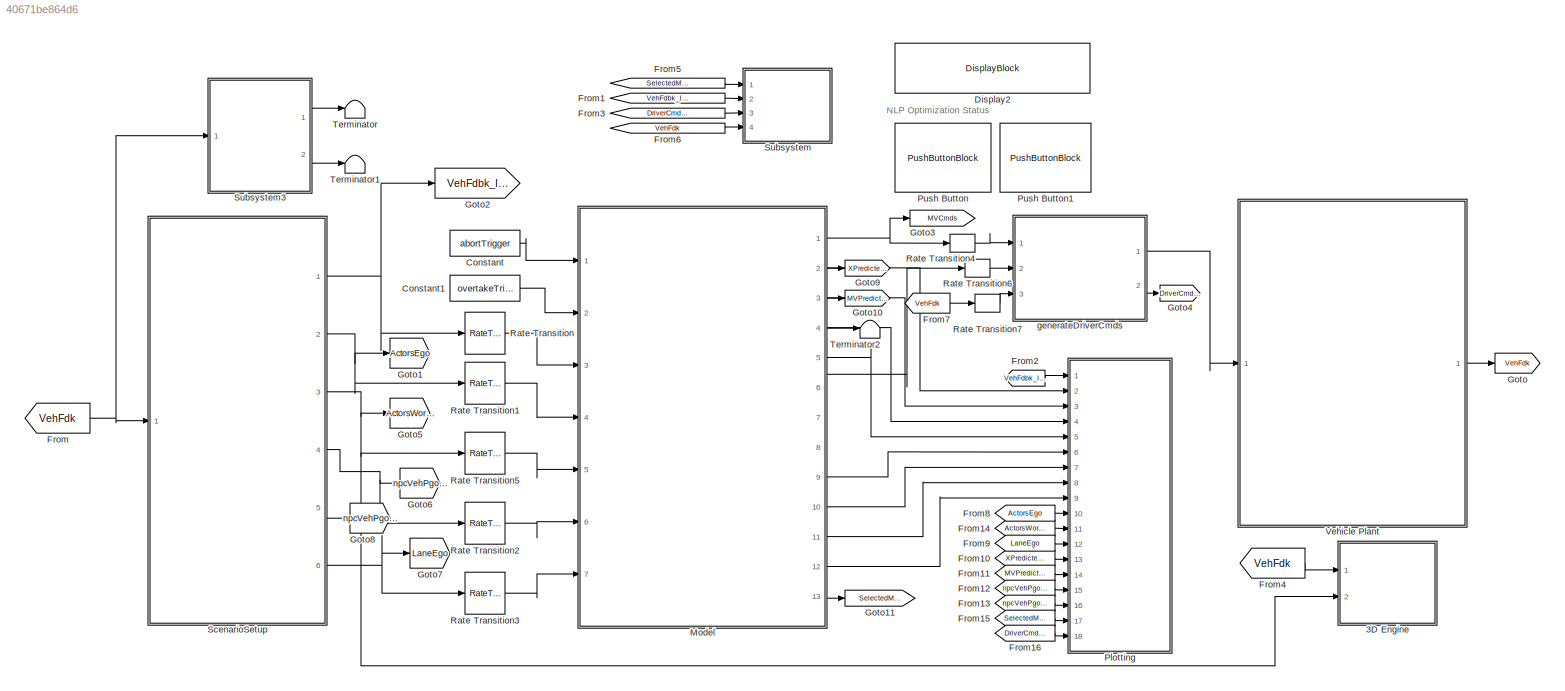
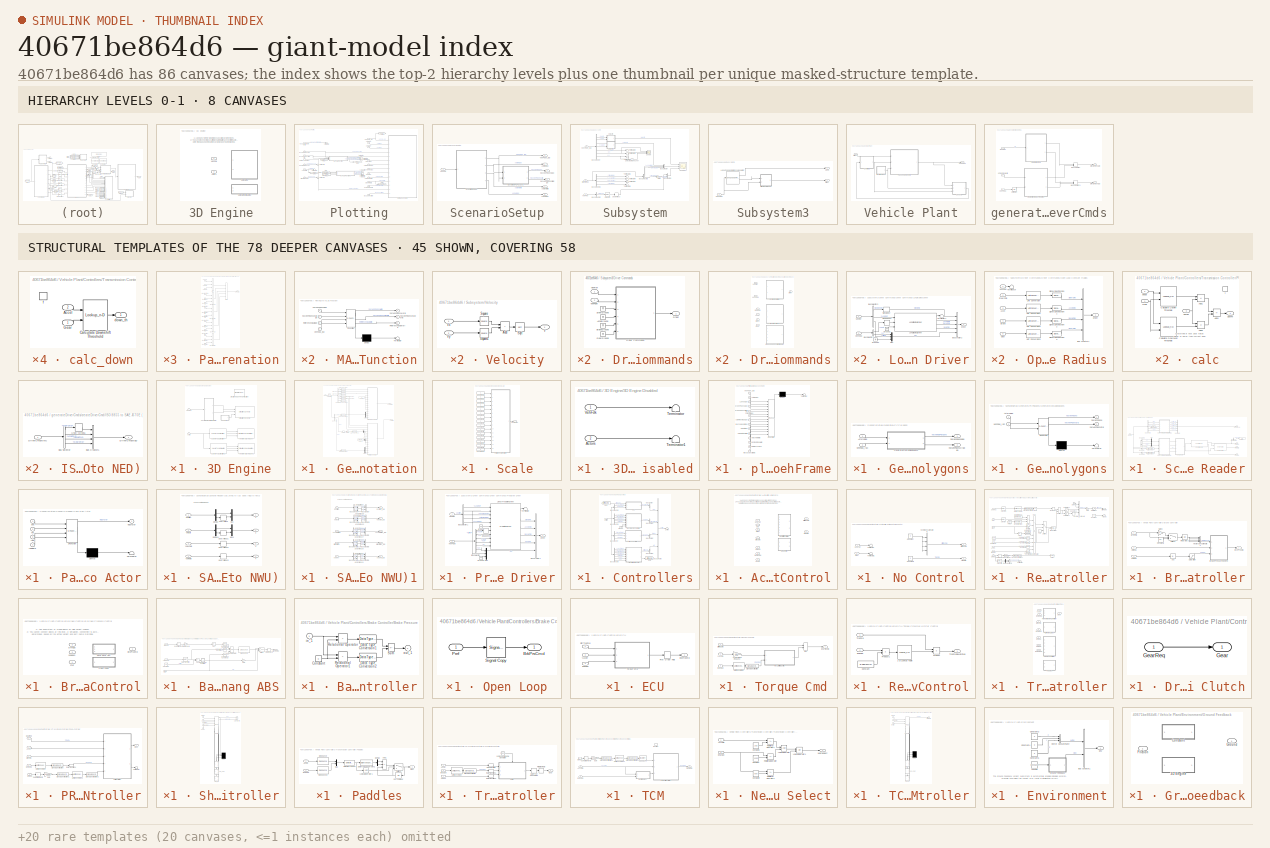
[diagram: thumbnail index - top-2 hierarchy levels (8 canvases) + 45 structural-template representatives of the remaining 78 canvases]
MODEL slx_40671be864d6
KIND model
CONFIG AbsTol = auto
CONFIG EnableMultiTasking = on
CONFIG FixedStep = .01
CONFIG InitFcn = %SimulationParameters;
CONFIG MaxStep = auto
CONFIG MinStep = auto
CONFIG RelTol = 5e-3
CONFIG SampleTimeConstraint = Unconstrained
CONFIG SolverName = ode23tb
CONFIG StartFcn = %tic
CONFIG StartTime = 0.0
CONFIG StopFcn = %toc\nsave(['SimOutputs\' char(datetime('now','Format','y_M_d_HH_mm_ss')) '_' 'sim_out.mat'], 'logsout');
CONFIG StopTime = 35
WORKSPACE source: mxarray member
WORKSPACE DLCXref = [-3.2158 4.0142 4.2842 14.7842 29.7842 30.2842 41.7842 46.7842 56.7842]
WORKSPACE DLCYref = [-3.1012 -3.1012 -7.6012 -7.1012 -6.8512 -1.6012 -1.8512 -3.1012 -3.1012]
WORKSPACE Downshift_Speeds = [9.5625 12.9375 16.3125 19.6875 23.0625 26.4375 29.8125 33.1875 36.5625 39.9375 43.3125 46.6875 ... (28 elements, 4x7)]
WORKSPACE EngRevLim = 7000
WORKSPACE Pedal_Positions = [0.1 0.4 0.5 0.9]
WORKSPACE Upshift_Speeds = [12.9375 16.3125 19.6875 33 26.4375 29.8125 33.1875 52.5 39.9375 43.3125 46.6875 77.25 ... (28 elements, 4x7)]
WORKSPACE VEH: object (value not decoded)
BLOCK [SubSystem] 3D Engine
  AttributesFormatString = %<SceneDesc>\n%<engine3D>
  LabelModeActiveChoice = 0
  Ports = [2]
  RequestExecContextInheritance = off
  Variant = on
  VariantControlMode = label
BLOCK [SubSystem] 3D Engine/3D Engine
  Ports = [2]
  RequestExecContextInheritance = off
  VariantControl = 1
BLOCK [SubSystem] 3D Engine/3D Engine Disabled
  Ports = [2]
  RequestExecContextInheritance = off
  VariantControl = 0
BLOCK [Inport] 3D Engine/3D Engine Disabled/Actors
  Port = 2
BLOCK [Terminator] 3D Engine/3D Engine Disabled/Terminator
BLOCK [Terminator] 3D Engine/3D Engine Disabled/Terminator1
BLOCK [Inport] 3D Engine/3D Engine Disabled/VehFdk
BLOCK [Inport] 3D Engine/3D Engine/Actors
  Port = 2
BLOCK [Reference] 3D Engine/3D Engine/Cuboid To 3D Simulation  REF=drivingscenarioandsensors/Cuboid To 3D Simulation
  Ports = [1, 3]
  SourceBlock = drivingscenarioandsensors/Cuboid To 3D Simulation
  SourceProductBaseCode = DR
  SourceType = driving.scenario.internal.CuboidTo3DSimulation
BLOCK [Reference] 3D Engine/3D Engine/Cuboid To 3D Simulation1  REF=drivingscenarioandsensors/Cuboid To 3D Simulation
  Ports = [1, 3]
  SourceBlock = drivingscenarioandsensors/Cuboid To 3D Simulation
  SourceProductBaseCode = DR
  SourceType = driving.scenario.internal.CuboidTo3DSimulation
BLOCK [SubSystem] 3D Engine/3D Engine/Generate Translation Rotation
  Ports = [1, 2]
  RequestExecContextInheritance = off
BLOCK [BusSelector] 3D Engine/3D Engine/Generate Translation Rotation/Bus Selector
  OutputSignals = Body.InertFrm.Geom.Disp.X,Body.InertFrm.Geom.Disp.Y,Body.InertFrm.Geom.Disp.Z,Body.InertFrm.Cg.Ang.phi,Body.InertFrm.Cg.Ang.theta,Body.InertFrm.Cg.Ang.psi
  Ports = [1, 6]
BLOCK [BusSelector] 3D Engine/3D Engine/Generate Translation Rotation/Bus Selector2
  OutputSignals = Wheels.TireFrame.dz,Wheels.TireFrame.Omega,Driveline.WhlAng
  Ports = [1, 3]
BLOCK [Constant] 3D Engine/3D Engine/Generate Translation Rotation/Constant1
  OutDataTypeStr = single
  Value = zeros(4,1)
BLOCK [Constant] 3D Engine/3D Engine/Generate Translation Rotation/Constant2
  OutDataTypeStr = single
  Value = 0
BLOCK [DataTypeConversion] 3D Engine/3D Engine/Generate Translation Rotation/Data Type Conversion1
  OutDataTypeStr = single
  RndMeth = Floor
  SaturateOnIntegerOverflow = off
BLOCK [DataTypeConversion] 3D Engine/3D Engine/Generate Translation Rotation/Data Type Conversion10
  OutDataTypeStr = single
  RndMeth = Floor
  SaturateOnIntegerOverflow = off
BLOCK [DataTypeConversion] 3D Engine/3D Engine/Generate Translation Rotation/Data Type Conversion12
  OutDataTypeStr = single
  RndMeth = Floor
  SaturateOnIntegerOverflow = off
BLOCK [DataTypeConversion] 3D Engine/3D Engine/Generate Translation Rotation/Data Type Conversion4
  OutDataTypeStr = single
  RndMeth = Floor
  SaturateOnIntegerOverflow = off
BLOCK [DataTypeConversion] 3D Engine/3D Engine/Generate Translation Rotation/Data Type Conversion5
  OutDataTypeStr = single
  RndMeth = Floor
  SaturateOnIntegerOverflow = off
BLOCK [DataTypeConversion] 3D Engine/3D Engine/Generate Translation Rotation/Data Type Conversion6
  OutDataTypeStr = single
  RndMeth = Floor
  SaturateOnIntegerOverflow = off
BLOCK [DataTypeConversion] 3D Engine/3D Engine/Generate Translation Rotation/Data Type Conversion7
  OutDataTypeStr = single
  RndMeth = Floor
  SaturateOnIntegerOverflow = off
BLOCK [DataTypeConversion] 3D Engine/3D Engine/Generate Translation Rotation/Data Type Conversion8
  OutDataTypeStr = single
  RndMeth = Floor
  SaturateOnIntegerOverflow = off
BLOCK [DataTypeConversion] 3D Engine/3D Engine/Generate Translation Rotation/Data Type Conversion9
  OutDataTypeStr = single
  RndMeth = Floor
  SaturateOnIntegerOverflow = off
BLOCK [Demux] 3D Engine/3D Engine/Generate Translation Rotation/Demux
  Ports = [1, 4]
BLOCK [Demux] 3D Engine/3D Engine/Generate Translation Rotation/Demux1
  Ports = [1, 4]
BLOCK [Demux] 3D Engine/3D Engine/Generate Translation Rotation/Demux2
  Ports = [1, 4]
BLOCK [Demux] 3D Engine/3D Engine/Generate Translation Rotation/Demux3
  Ports = [1, 4]
BLOCK [Integrator] 3D Engine/3D Engine/Generate Translation Rotation/Integrator
  Ports = [1, 1]
  WrapState = on
  WrappedStateLowerValue = 0
  WrappedStateUpperValue = 2*pi
  ZeroCross = off
BLOCK [SubSystem] 3D Engine/3D Engine/Generate Translation Rotation/Part Rotation Concatenation
  Ports = [15, 1]
  RequestExecContextInheritance = off
BLOCK [Concatenate] 3D Engine/3D Engine/Generate Translation Rotation/Part Rotation Concatenation/AllParts
  Mode = Multidimensional array
  NumInputs = 5
  Ports = [5, 1]
BLOCK [Concatenate] 3D Engine/3D Engine/Generate Translation Rotation/Part Rotation Concatenation/Body
  ConcatenateDimension = 2
  Mode = Multidimensional array
  NumInputs = 3
  Ports = [3, 1]
BLOCK [Inport] 3D Engine/3D Engine/Generate Translation Rotation/Part Rotation Concatenation/Body Ptich
  Port = 2
BLOCK [Inport] 3D Engine/3D Engine/Generate Translation Rotation/Part Rotation Concatenation/Body Roll
BLOCK [Inport] 3D Engine/3D Engine/Generate Translation Rotation/Part Rotation Concatenation/Body Yaw
  Port = 3
BLOCK [Outport] 3D Engine/3D Engine/Generate Translation Rotation/Part Rotation Concatenation/ConcatOut
  VectorParamsAs1DForOutWhenUnconnected = off
BLOCK [Concatenate] 3D Engine/3D Engine/Generate Translation Rotation/Part Rotation Concatenation/WheelFrontLeft
  ConcatenateDimension = 2
  Mode = Multidimensional array
  NumInputs = 3
  Ports = [3, 1]
BLOCK [Inport] 3D Engine/3D Engine/Generate Translation Rotation/Part Rotation Concatenation/WheelFrontLeft Pitch
  Port = 4
BLOCK [Inport] 3D Engine/3D Engine/Generate Translation Rotation/Part Rotation Concatenation/WheelFrontLeft Roll
  Port = 8
BLOCK [Inport] 3D Engine/3D Engine/Generate Translation Rotation/Part Rotation Concatenation/WheelFrontLeft Yaw
  Port = 12
BLOCK [Concatenate] 3D Engine/3D Engine/Generate Translation Rotation/Part Rotation Concatenation/WheelFrontRight
  ConcatenateDimension = 2
  Mode = Multidimensional array
  NumInputs = 3
  Ports = [3, 1]
BLOCK [Inport] 3D Engine/3D Engine/Generate Translation Rotation/Part Rotation Concatenation/WheelFrontRight Pitch
  Port = 5
BLOCK [Inport] 3D Engine/3D Engine/Generate Translation Rotation/Part Rotation Concatenation/WheelFrontRight Roll
  Port = 9
BLOCK [Inport] 3D Engine/3D Engine/Generate Translation Rotation/Part Rotation Concatenation/WheelFrontRight Yaw
  Port = 13
BLOCK [Concatenate] 3D Engine/3D Engine/Generate Translation Rotation/Part Rotation Concatenation/WheelRearLeft
  ConcatenateDimension = 2
  Mode = Multidimensional array
  NumInputs = 3
  Ports = [3, 1]
BLOCK [Inport] 3D Engine/3D Engine/Generate Translation Rotation/Part Rotation Concatenation/WheelRearLeft Pitch
  Port = 6
BLOCK [Inport] 3D Engine/3D Engine/Generate Translation Rotation/Part Rotation Concatenation/WheelRearLeft Roll
  Port = 10
BLOCK [Inport] 3D Engine/3D Engine/Generate Translation Rotation/Part Rotation Concatenation/WheelRearLeft Yaw
  Port = 14
BLOCK [Concatenate] 3D Engine/3D Engine/Generate Translation Rotation/Part Rotation Concatenation/WheelRearRight
  ConcatenateDimension = 2
  Mode = Multidimensional array
  NumInputs = 3
  Ports = [3, 1]
BLOCK [Inport] 3D Engine/3D Engine/Generate Translation Rotation/Part Rotation Concatenation/WheelRearRight Ptich
  Port = 7
BLOCK [Inport] 3D Engine/3D Engine/Generate Translation Rotation/Part Rotation Concatenation/WheelRearRight Roll
  Port = 11
BLOCK [Inport] 3D Engine/3D Engine/Generate Translation Rotation/Part Rotation Concatenation/WheelRearRight Yaw
  Port = 15
BLOCK [SubSystem] 3D Engine/3D Engine/Generate Translation Rotation/Part Translation Concatenation
  Ports = [15, 1]
  RequestExecContextInheritance = off
BLOCK [Concatenate] 3D Engine/3D Engine/Generate Translation Rotation/Part Translation Concatenation/AllParts
  Mode = Multidimensional array
  NumInputs = 5
  Ports = [5, 1]
BLOCK [Concatenate] 3D Engine/3D Engine/Generate Translation Rotation/Part Translation Concatenation/Body
  ConcatenateDimension = 2
  Mode = Multidimensional array
  NumInputs = 3
  Ports = [3, 1]
BLOCK [Inport] 3D Engine/3D Engine/Generate Translation Rotation/Part Translation Concatenation/BodyX
BLOCK [Inport] 3D Engine/3D Engine/Generate Translation Rotation/Part Translation Concatenation/BodyY
  Port = 2
BLOCK [Inport] 3D Engine/3D Engine/Generate Translation Rotation/Part Translation Concatenation/BodyZ
  Port = 3
BLOCK [Outport] 3D Engine/3D Engine/Generate Translation Rotation/Part Translation Concatenation/ConcatOut
  VectorParamsAs1DForOutWhenUnconnected = off
BLOCK [Concatenate] 3D Engine/3D Engine/Generate Translation Rotation/Part Translation Concatenation/WheelFrontLeft
  ConcatenateDimension = 2
  Mode = Multidimensional array
  NumInputs = 3
  Ports = [3, 1]
BLOCK [Inport] 3D Engine/3D Engine/Generate Translation Rotation/Part Translation Concatenation/WheelFrontLeftX
  Port = 4
BLOCK [Inport] 3D Engine/3D Engine/Generate Translation Rotation/Part Translation Concatenation/WheelFrontLeftY
  Port = 8
BLOCK [Inport] 3D Engine/3D Engine/Generate Translation Rotation/Part Translation Concatenation/WheelFrontLeftZ
  Port = 12
BLOCK [Concatenate] 3D Engine/3D Engine/Generate Translation Rotation/Part Translation Concatenation/WheelFrontRight
  ConcatenateDimension = 2
  Mode = Multidimensional array
  NumInputs = 3
  Ports = [3, 1]
BLOCK [Inport] 3D Engine/3D Engine/Generate Translation Rotation/Part Translation Concatenation/WheelFrontRightX
  Port = 5
BLOCK [Inport] 3D Engine/3D Engine/Generate Translation Rotation/Part Translation Concatenation/WheelFrontRightY
  Port = 9
BLOCK [Inport] 3D Engine/3D Engine/Generate Translation Rotation/Part Translation Concatenation/WheelFrontRightZ
  Port = 13
BLOCK [Concatenate] 3D Engine/3D Engine/Generate Translation Rotation/Part Translation Concatenation/WheelRearLeft
  ConcatenateDimension = 2
  Mode = Multidimensional array
  NumInputs = 3
  Ports = [3, 1]
BLOCK [Inport] 3D Engine/3D Engine/Generate Translation Rotation/Part Translation Concatenation/WheelRearLeftX
  Port = 6
BLOCK [Inport] 3D Engine/3D Engine/Generate Translation Rotation/Part Translation Concatenation/WheelRearLeftY
  Port = 10
BLOCK [Inport] 3D Engine/3D Engine/Generate Translation Rotation/Part Translation Concatenation/WheelRearLeftZ
  Port = 14
BLOCK [Concatenate] 3D Engine/3D Engine/Generate Translation Rotation/Part Translation Concatenation/WheelRearRight
  ConcatenateDimension = 2
  Mode = Multidimensional array
  NumInputs = 3
  Ports = [3, 1]
BLOCK [Inport] 3D Engine/3D Engine/Generate Translation Rotation/Part Translation Concatenation/WheelRearRightX
  Port = 7
BLOCK [Inport] 3D Engine/3D Engine/Generate Translation Rotation/Part Translation Concatenation/WheelRearRightY
  Port = 11
BLOCK [Inport] 3D Engine/3D Engine/Generate Translation Rotation/Part Translation Concatenation/WheelRearRightZ
  Port = 15
BLOCK [RateTransition] 3D Engine/3D Engine/Generate Translation Rotation/Rate Transition
  OutPortSampleTime = dt3D
BLOCK [UnaryMinus] 3D Engine/3D Engine/Generate Translation Rotation/Unary Minus
BLOCK [Inport] 3D Engine/3D Engine/Generate Translation Rotation/VehFdk
BLOCK [Outport] 3D Engine/3D Engine/Generate Translation Rotation/VehRotation
  Port = 2
BLOCK [Outport] 3D Engine/3D Engine/Generate Translation Rotation/VehTranslation
BLOCK [SubSystem] 3D Engine/3D Engine/Scale
  Ports = [0, 1]
  RequestExecContextInheritance = off
BLOCK [Constant] 3D Engine/3D Engine/Scale/Constant1
  OutDataTypeStr = single
BLOCK [Constant] 3D Engine/3D Engine/Scale/Constant10
  OutDataTypeStr = single
BLOCK [Constant] 3D Engine/3D Engine/Scale/Constant11
  OutDataTypeStr = single
BLOCK [Constant] 3D Engine/3D Engine/Scale/Constant12
  OutDataTypeStr = single
BLOCK [Constant] 3D Engine/3D Engine/Scale/Constant17
  OutDataTypeStr = single
BLOCK [Constant] 3D Engine/3D Engine/Scale/Constant2
  OutDataTypeStr = single
BLOCK [Constant] 3D Engine/3D Engine/Scale/Constant3
  OutDataTypeStr = single
BLOCK [Constant] 3D Engine/3D Engine/Scale/Constant32
  OutDataTypeStr = single
BLOCK [Constant] 3D Engine/3D Engine/Scale/Constant33
  OutDataTypeStr = single
BLOCK [Constant] 3D Engine/3D Engine/Scale/Constant4
  OutDataTypeStr = single
BLOCK [Constant] 3D Engine/3D Engine/Scale/Constant5
  OutDataTypeStr = single
BLOCK [Constant] 3D Engine/3D Engine/Scale/Constant6
  OutDataTypeStr = single
BLOCK [Constant] 3D Engine/3D Engine/Scale/Constant7
  OutDataTypeStr = single
BLOCK [Constant] 3D Engine/3D Engine/Scale/Constant8
  OutDataTypeStr = single
BLOCK [Constant] 3D Engine/3D Engine/Scale/Constant9
  OutDataTypeStr = single
BLOCK [SubSystem] 3D Engine/3D Engine/Scale/PartConcatenation
  Ports = [15, 1]
  RequestExecContextInheritance = off
BLOCK [Concatenate] 3D Engine/3D Engine/Scale/PartConcatenation/AllParts
  Mode = Multidimensional array
  NumInputs = 5
  Ports = [5, 1]
BLOCK [Concatenate] 3D Engine/3D Engine/Scale/PartConcatenation/Body
  ConcatenateDimension = 2
  Mode = Multidimensional array
  NumInputs = 3
  Ports = [3, 1]
BLOCK [Inport] 3D Engine/3D Engine/Scale/PartConcatenation/BodyX
BLOCK [Inport] 3D Engine/3D Engine/Scale/PartConcatenation/BodyY
  Port = 2
BLOCK [Inport] 3D Engine/3D Engine/Scale/PartConcatenation/BodyZ
  Port = 3
BLOCK [Outport] 3D Engine/3D Engine/Scale/PartConcatenation/ConcatOut
  VectorParamsAs1DForOutWhenUnconnected = off
BLOCK [Concatenate] 3D Engine/3D Engine/Scale/PartConcatenation/WheelFrontLeft
  ConcatenateDimension = 2
  Mode = Multidimensional array
  NumInputs = 3
  Ports = [3, 1]
BLOCK [Inport] 3D Engine/3D Engine/Scale/PartConcatenation/WheelFrontLeftX
  Port = 4
BLOCK [Inport] 3D Engine/3D Engine/Scale/PartConcatenation/WheelFrontLeftY
  Port = 5
BLOCK [Inport] 3D Engine/3D Engine/Scale/PartConcatenation/WheelFrontLeftZ
  Port = 6
BLOCK [Concatenate] 3D Engine/3D Engine/Scale/PartConcatenation/WheelFrontRight
  ConcatenateDimension = 2
  Mode = Multidimensional array
  NumInputs = 3
  Ports = [3, 1]
BLOCK [Inport] 3D Engine/3D Engine/Scale/PartConcatenation/WheelFrontRightX
  Port = 7
BLOCK [Inport] 3D Engine/3D Engine/Scale/PartConcatenation/WheelFrontRightY
  Port = 8
BLOCK [Inport] 3D Engine/3D Engine/Scale/PartConcatenation/WheelFrontRightZ
  Port = 9
BLOCK [Concatenate] 3D Engine/3D Engine/Scale/PartConcatenation/WheelRearLeft
  ConcatenateDimension = 2
  Mode = Multidimensional array
  NumInputs = 3
  Ports = [3, 1]
BLOCK [Inport] 3D Engine/3D Engine/Scale/PartConcatenation/WheelRearLeftX
  Port = 10
BLOCK [Inport] 3D Engine/3D Engine/Scale/PartConcatenation/WheelRearLeftY
  Port = 11
BLOCK [Inport] 3D Engine/3D Engine/Scale/PartConcatenation/WheelRearLeftZ
  Port = 12
BLOCK [Concatenate] 3D Engine/3D Engine/Scale/PartConcatenation/WheelRearRight
  ConcatenateDimension = 2
  Mode = Multidimensional array
  NumInputs = 3
  Ports = [3, 1]
BLOCK [Inport] 3D Engine/3D Engine/Scale/PartConcatenation/WheelRearRightX
  Port = 13
BLOCK [Inport] 3D Engine/3D Engine/Scale/PartConcatenation/WheelRearRightY
  Port = 14
BLOCK [Inport] 3D Engine/3D Engine/Scale/PartConcatenation/WheelRearRightZ
  Port = 15
BLOCK [Outport] 3D Engine/3D Engine/Scale/ScaleOut
  VectorParamsAs1DForOutWhenUnconnected = off
BLOCK [Reference] 3D Engine/3D Engine/Simulation 3D Scene Configuration  REF=sim3dlib/Simulation 3D Scene Configuration
  Ports = []
  Priority = 0
  SourceBlock = sim3dlib/Simulation 3D Scene Configuration
  SourceProductBaseCode = DR,UV,VE
  SourceType = Simulation 3D Scene Configuration
BLOCK [Reference] 3D Engine/3D Engine/Simulation 3D Vehicle  REF=sim3dautolib/Simulation 3D Vehicle
  Ports = [3]
  Priority = -1
  SourceBlock = sim3dautolib/Simulation 3D Vehicle
  SourceProductBaseCode = DR,UV,VE
  SourceType = Simulation 3D Vehicle
BLOCK [Inport] 3D Engine/3D Engine/VehFdk
BLOCK [Reference] 3D Engine/3D Engine/Vehicle in Adjacent Lane  REF=sim3dautolib/Simulation 3D Vehicle with Ground Following
  Ports = [3]
  Priority = -1
  SourceBlock = sim3dautolib/Simulation 3D Vehicle with Ground Following
  SourceProductBaseCode = DR,UV,VE
  SourceType = Simulation 3D Vehicle with Ground Following
BLOCK [Reference] 3D Engine/3D Engine/Vehicle in Adjacent Lane1  REF=sim3dautolib/Simulation 3D Vehicle with Ground Following
  Ports = [3]
  Priority = -1
  SourceBlock = sim3dautolib/Simulation 3D Vehicle with Ground Following
  SourceProductBaseCode = DR,UV,VE
  SourceType = Simulation 3D Vehicle with Ground Following
BLOCK [Inport] 3D Engine/Actors
  Port = 2
BLOCK [Inport] 3D Engine/VehFdk
BLOCK [Constant] Constant
  OutDataTypeStr = boolean
  Value = abortTrigger
BLOCK [Constant] Constant1
  OutDataTypeStr = boolean
  Value = overtakeTrigger
BLOCK [DisplayBlock] Display2
  Format = short
  LabelPosition = Hide
  Transparency = 1
BLOCK [From] From
  GotoTag = VehFdk
BLOCK [From] From1
  GotoTag = VehFdbk_ISO
BLOCK [From] From10
  GotoTag = XPredictedWorld
BLOCK [From] From11
  GotoTag = MVPredictedWorld
BLOCK [From] From12
  GotoTag = npcVehPgonsEgo
BLOCK [From] From13
  GotoTag = npcVehPgonsOrgEgo
BLOCK [From] From14
  GotoTag = ActorsWorld
BLOCK [From] From15
  GotoTag = SelectedManeuver
BLOCK [From] From16
  GotoTag = DriverCmdsNWD
BLOCK [From] From2
  GotoTag = VehFdbk_ISO
BLOCK [From] From3
  GotoTag = DriverCmdsNWD
BLOCK [From] From4
  GotoTag = VehFdk
BLOCK [From] From5
  GotoTag = SelectedManeuver
BLOCK [From] From6
  GotoTag = VehFdk
BLOCK [From] From7
  GotoTag = VehFdk
BLOCK [From] From8
  GotoTag = ActorsEgo
BLOCK [From] From9
  GotoTag = LaneEgo
BLOCK [Goto] Goto
  GotoTag = VehFdk
BLOCK [Goto] Goto1
  GotoTag = ActorsEgo
BLOCK [Goto] Goto10
  GotoTag = MVPredictedWorld
BLOCK [Goto] Goto11
  GotoTag = SelectedManeuver
BLOCK [Goto] Goto2
  GotoTag = VehFdbk_ISO
BLOCK [Goto] Goto3
  GotoTag = MVCmds
BLOCK [Goto] Goto4
  GotoTag = DriverCmdsNWD
BLOCK [Goto] Goto5
  GotoTag = ActorsWorld
BLOCK [Goto] Goto6
  GotoTag = npcVehPgonsEgo
BLOCK [Goto] Goto7
  GotoTag = LaneEgo
BLOCK [Goto] Goto8
  GotoTag = npcVehPgonsOrgEgo
BLOCK [Goto] Goto9
  GotoTag = XPredictedWorld
BLOCK [ModelReference] Model
  ModelNameDialog = Controller.slx
  ModelReferenceVersion = 1.308
  PortSchema = {"entries":[{"content":{"sides":[{"content":{"connectorIds":["In1","In2","In3","In4","In5","In6","In7"]},"type":"ConnectorPlacement.EquallySpacedRectSide","uuid":"1710dee3-d37f-459f-b898-c9674e4b81aa"},{"content":{"connectorIds":["Out1","Out6","Out7","Out8","Out2","Out3","Out4","Out5","Out9","Out10","Out11","Out12","Out13"],"side":"RIGHT"},"type":"ConnectorPlacement.EquallySpacedRectSide","uuid":"...<+508ch>
  Ports = [7, 13]
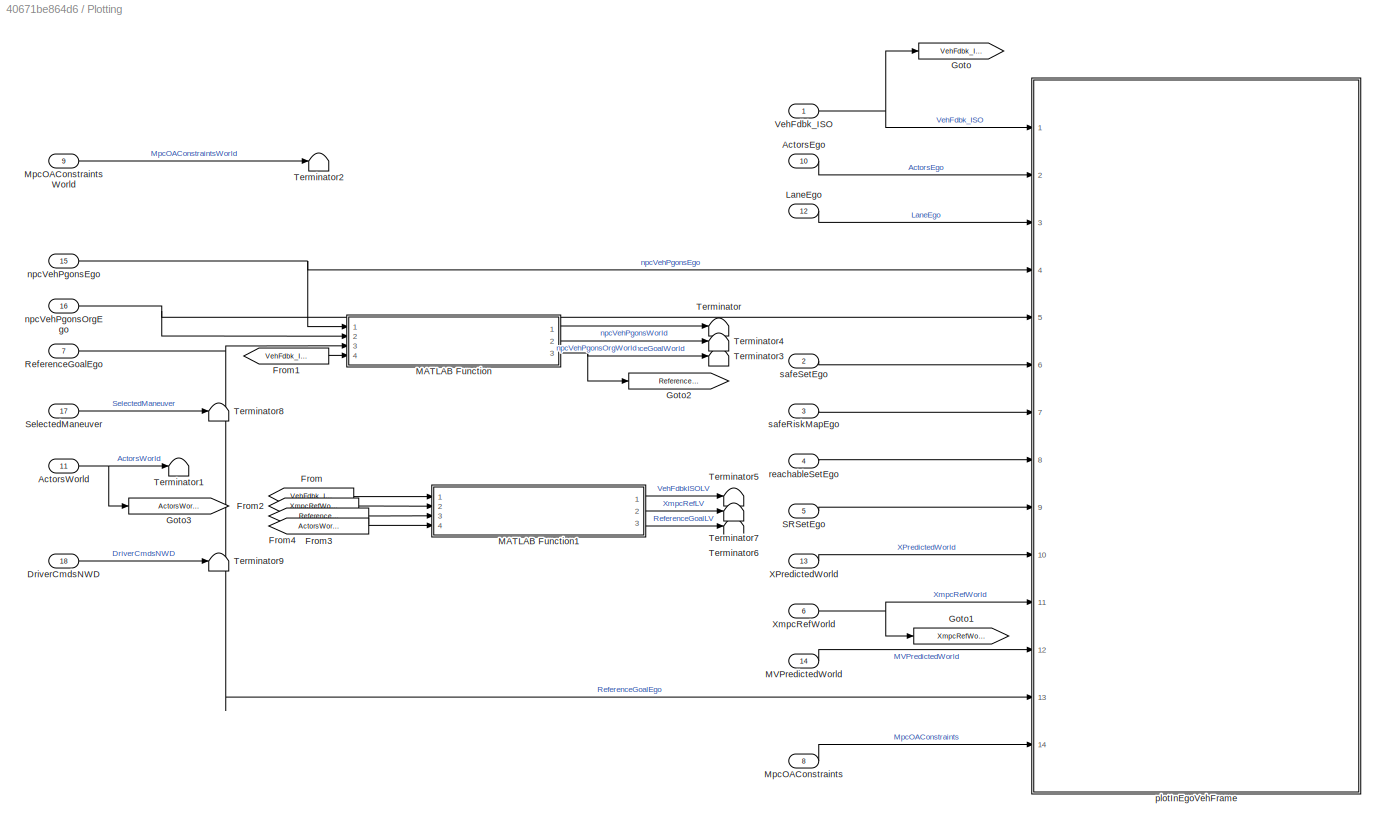
BLOCK [SubSystem] Plotting
  Ports = [18]
  RequestExecContextInheritance = off
  SystemSampleTime = plotSampleTime
  TreatAsAtomicUnit = on
BLOCK [Inport] Plotting/ActorsEgo
  Port = 10
BLOCK [Inport] Plotting/ActorsWorld
  Port = 11
BLOCK [Inport] Plotting/DriverCmdsNWD
  Port = 18
BLOCK [From] Plotting/From
  GotoTag = VehFdbk_ISO
BLOCK [From] Plotting/From1
  GotoTag = VehFdbk_ISO
BLOCK [From] Plotting/From2
  GotoTag = XmpcRefWorld
BLOCK [From] Plotting/From3
  GotoTag = ReferenceGoalWorld
BLOCK [From] Plotting/From4
  GotoTag = ActorsWorld
BLOCK [Goto] Plotting/Goto
  GotoTag = VehFdbk_ISO
BLOCK [Goto] Plotting/Goto1
  GotoTag = XmpcRefWorld
BLOCK [Goto] Plotting/Goto2
  GotoTag = ReferenceGoalWorld
BLOCK [Goto] Plotting/Goto3
  GotoTag = ActorsWorld
BLOCK [Inport] Plotting/LaneEgo
  Port = 12
BLOCK [SubSystem] Plotting/MATLAB Function
  ErrorFcn = Stateflow.Translate.translate
  PermitHierarchicalResolution = ExplicitOnly
  Ports = [4, 3]
  RequestExecContextInheritance = off
  SFBlockType = MATLAB Function
  TreatAsAtomicUnit = on
BLOCK [Demux] Plotting/MATLAB Function/ Demux 
  Outputs = 1
  Ports = [1, 1]
BLOCK [S-Function] Plotting/MATLAB Function/ SFunction 
  EnableBusSupport = on
  FunctionName = sf_sfun
  PortCounts = [4 4]
  Ports = [4, 4]
  SFcnIsStateOwnerBlock = off
  SFunctionDeploymentMode = off
  Tag = Stateflow S-Function 2
BLOCK [Terminator] Plotting/MATLAB Function/ Terminator 
BLOCK [Inport] Plotting/MATLAB Function/ReferenceGoalEgo
  Port = 3
BLOCK [Outport] Plotting/MATLAB Function/ReferenceGoalWorld
  Port = 3
BLOCK [Inport] Plotting/MATLAB Function/VehFdbk_ISO
  Port = 4
BLOCK [Inport] Plotting/MATLAB Function/npcVehPgonsEgo
BLOCK [Inport] Plotting/MATLAB Function/npcVehPgonsOrgEgo
  Port = 2
BLOCK [Outport] Plotting/MATLAB Function/npcVehPgonsOrgWorld
  Port = 2
BLOCK [Outport] Plotting/MATLAB Function/npcVehPgonsWorld
BLOCK [SubSystem] Plotting/MATLAB Function1
  ErrorFcn = Stateflow.Translate.translate
  PermitHierarchicalResolution = ExplicitOnly
  Ports = [4, 3]
  RequestExecContextInheritance = off
  SFBlockType = MATLAB Function
  TreatAsAtomicUnit = on
BLOCK [Demux] Plotting/MATLAB Function1/ Demux 
  Outputs = 1
  Ports = [1, 1]
BLOCK [S-Function] Plotting/MATLAB Function1/ SFunction 
  EnableBusSupport = on
  FunctionName = sf_sfun
  PortCounts = [4 4]
  Ports = [4, 4]
  SFcnIsStateOwnerBlock = off
  SFunctionDeploymentMode = off
  Tag = Stateflow S-Function 3
BLOCK [Terminator] Plotting/MATLAB Function1/ Terminator 
BLOCK [Inport] Plotting/MATLAB Function1/ActorsWorld
  Port = 4
BLOCK [Outport] Plotting/MATLAB Function1/ReferenceGoalLV
  Port = 3
BLOCK [Inport] Plotting/MATLAB Function1/ReferenceGoalWorld
  Port = 3
BLOCK [Outport] Plotting/MATLAB Function1/VehFdbkISOLV
BLOCK [Inport] Plotting/MATLAB Function1/VehFdbk_ISO
BLOCK [Outport] Plotting/MATLAB Function1/XmpcRefLV
  Port = 2
BLOCK [Inport] Plotting/MATLAB Function1/XmpcRefWorld
  Port = 2
BLOCK [Inport] Plotting/MVPredictedWorld
  Port = 14
BLOCK [Inport] Plotting/MpcOAConstraints
  Port = 8
BLOCK [Inport] Plotting/MpcOAConstraintsWorld
  Port = 9
BLOCK [Inport] Plotting/ReferenceGoalEgo
  Port = 7
BLOCK [Inport] Plotting/SRSetEgo
  Port = 5
BLOCK [Inport] Plotting/SelectedManeuver
  Port = 17
BLOCK [Terminator] Plotting/Terminator
BLOCK [Terminator] Plotting/Terminator1
BLOCK [Terminator] Plotting/Terminator2
BLOCK [Terminator] Plotting/Terminator3
BLOCK [Terminator] Plotting/Terminator4
BLOCK [Terminator] Plotting/Terminator5
BLOCK [Terminator] Plotting/Terminator6
BLOCK [Terminator] Plotting/Terminator7
BLOCK [Terminator] Plotting/Terminator8
BLOCK [Terminator] Plotting/Terminator9
BLOCK [Inport] Plotting/VehFdbk_ISO
BLOCK [Inport] Plotting/XPredictedWorld
  Port = 13
BLOCK [Inport] Plotting/XmpcRefWorld
  Port = 6
BLOCK [Inport] Plotting/npcVehPgonsEgo
  Port = 15
BLOCK [Inport] Plotting/npcVehPgonsOrgEgo
  Port = 16
BLOCK [SubSystem] Plotting/plotInEgoVehFrame
  ErrorFcn = Stateflow.Translate.translate
  PermitHierarchicalResolution = ExplicitOnly
  Ports = [14]
  RequestExecContextInheritance = off
  SFBlockType = MATLAB Function
  SystemSampleTime = plotSampleTime
  TreatAsAtomicUnit = on
BLOCK [Demux] Plotting/plotInEgoVehFrame/ Demux 
  Outputs = 1
  Ports = [1, 1]
BLOCK [S-Function] Plotting/plotInEgoVehFrame/ SFunction 
  EnableBusSupport = on
  FunctionName = sf_sfun
  Parameters = SenseResolution,XSenseRange,YSenseRange,egoVehLength,egoVehWidth
  PortCounts = [14 1]
  Ports = [14, 1]
  SFcnIsStateOwnerBlock = off
  SFunctionDeploymentMode = off
  Tag = Stateflow S-Function 6
BLOCK [Terminator] Plotting/plotInEgoVehFrame/ Terminator 
BLOCK [Inport] Plotting/plotInEgoVehFrame/ActorsEgo
  Port = 2
BLOCK [Inport] Plotting/plotInEgoVehFrame/LanesEgo
  Port = 3
BLOCK [Inport] Plotting/plotInEgoVehFrame/MVPredictedWorld
  Port = 12
BLOCK [Inport] Plotting/plotInEgoVehFrame/MpcOAConstraints
  Port = 14
BLOCK [Inport] Plotting/plotInEgoVehFrame/ReferenceGoal
  Port = 13
BLOCK [Inport] Plotting/plotInEgoVehFrame/SRSetEgo
  Port = 9
BLOCK [Inport] Plotting/plotInEgoVehFrame/VehFdbk_ISO
BLOCK [Inport] Plotting/plotInEgoVehFrame/XPredictedWorld
  Port = 10
BLOCK [Inport] Plotting/plotInEgoVehFrame/XmpcRefWorld
  Port = 11
BLOCK [Inport] Plotting/plotInEgoVehFrame/npcVehPgonsEgo
  Port = 4
BLOCK [Inport] Plotting/plotInEgoVehFrame/npcVehPgonsOrgEgo
  Port = 5
BLOCK [Inport] Plotting/plotInEgoVehFrame/reachableSetEgo
  Port = 8
BLOCK [Inport] Plotting/plotInEgoVehFrame/safeRiskMapEgo
  Port = 7
BLOCK [Inport] Plotting/plotInEgoVehFrame/safeSetEgo
  Port = 6
BLOCK [Inport] Plotting/reachableSetEgo
  Port = 4
BLOCK [Inport] Plotting/safeRiskMapEgo
  Port = 3
BLOCK [Inport] Plotting/safeSetEgo
  Port = 2
BLOCK [PushButtonBlock] Push Button
  LabelPosition = Bottom
BLOCK [PushButtonBlock] Push Button1
  LabelPosition = Bottom
BLOCK [RateTransition] Rate Transition
BLOCK [RateTransition] Rate Transition1
BLOCK [RateTransition] Rate Transition2
BLOCK [RateTransition] Rate Transition3
BLOCK [RateTransition] Rate Transition4
BLOCK [RateTransition] Rate Transition5
BLOCK [RateTransition] Rate Transition6
BLOCK [RateTransition] Rate Transition7
BLOCK [SubSystem] ScenarioSetup
  Ports = [1, 6]
  RequestExecContextInheritance = off
BLOCK [Outport] ScenarioSetup/ActorsEgo
  Port = 2
BLOCK [Outport] ScenarioSetup/ActorsWorld
  Port = 3
BLOCK [SubSystem] ScenarioSetup/GenerateNPCPolygons
  Ports = [2, 2]
  RequestExecContextInheritance = off
BLOCK [Inport] ScenarioSetup/GenerateNPCPolygons/ActorsEgo
BLOCK [SubSystem] ScenarioSetup/GenerateNPCPolygons/GenerateObstaclepolygons
  ErrorFcn = Stateflow.Translate.translate
  PermitHierarchicalResolution = ExplicitOnly
  Ports = [2, 2]
  RequestExecContextInheritance = off
  SFBlockType = MATLAB Function
  TreatAsAtomicUnit = on
BLOCK [Demux] ScenarioSetup/GenerateNPCPolygons/GenerateObstaclepolygons/ Demux 
  Outputs = 1
  Ports = [1, 1]
BLOCK [S-Function] ScenarioSetup/GenerateNPCPolygons/GenerateObstaclepolygons/ SFunction 
  EnableBusSupport = on
  FunctionName = sf_sfun
  Parameters = TfVelVertex,d0VelVertex,egoVehLength,egoVehWidth,gammaVelVertex,inflationFactor,npcVehLength,npcVehWidth
  PortCounts = [2 3]
  Ports = [2, 3]
  SFcnIsStateOwnerBlock = off
  SFunctionDeploymentMode = off
  Tag = Stateflow S-Function 7
BLOCK [Terminator] ScenarioSetup/GenerateNPCPolygons/GenerateObstaclepolygons/ Terminator 
BLOCK [Inport] ScenarioSetup/GenerateNPCPolygons/GenerateObstaclepolygons/ActorsEgo
BLOCK [Inport] ScenarioSetup/GenerateNPCPolygons/GenerateObstaclepolygons/VehFdbk_ISO
  Port = 2
BLOCK [Outport] ScenarioSetup/GenerateNPCPolygons/GenerateObstaclepolygons/npcVehPgons
BLOCK [Outport] ScenarioSetup/GenerateNPCPolygons/GenerateObstaclepolygons/npcVehPgonsOrg
  Port = 2
BLOCK [Inport] ScenarioSetup/GenerateNPCPolygons/VehFdbk_ISO
  Port = 2
BLOCK [Outport] ScenarioSetup/GenerateNPCPolygons/npcVehPgonsEgo
BLOCK [Outport] ScenarioSetup/GenerateNPCPolygons/npcVehPgonsOrgEgo
  Port = 2
BLOCK [Outport] ScenarioSetup/LaneEgo
  Port = 6
BLOCK [SubSystem] ScenarioSetup/Scenario Reader
  Ports = [1, 4]
  RequestExecContextInheritance = off
BLOCK [Outport] ScenarioSetup/Scenario Reader/ActorsEgo
  Port = 2
BLOCK [Outport] ScenarioSetup/Scenario Reader/ActorsWorld
  Port = 3
BLOCK [BusCreator] ScenarioSetup/Scenario Reader/Bus Creator3
  DisplayOption = bar
  InheritFromInputs = off
  Inputs = 5
  NonVirtualBus = on
  OutDataTypeStr = Bus: Veh_Fdbk
  Ports = [5, 1]
BLOCK [BusSelector] ScenarioSetup/Scenario Reader/Bus Selector
  OutputSignals = Body.InertFrm.Cg.Ang.psi
  Ports = [1, 1]
BLOCK [BusSelector] ScenarioSetup/Scenario Reader/Bus Selector1
  OutputSignals = Body.InertFrm.Cg.Disp.X,Body.InertFrm.Cg.Disp.Y
  Ports = [1, 2]
BLOCK [BusSelector] ScenarioSetup/Scenario Reader/Bus Selector2
  OutputSignals = Body.BdyFrm.Cg.AngVel.r
  Ports = [1, 1]
BLOCK [BusSelector] ScenarioSetup/Scenario Reader/Bus Selector3
  OutputSignals = Body.InertFrm.Cg.Disp,Body.InertFrm.Cg.Vel,Body.BdyFrm.Cg.Acc,Body.InertFrm.Cg.Ang,Body.BdyFrm.Cg.AngVel
  Ports = [1, 5]
BLOCK [BusSelector] ScenarioSetup/Scenario Reader/Bus Selector4
  OutputSignals = Body.InertFrm.Cg.Vel.Xdot,Body.InertFrm.Cg.Vel.Ydot
  Ports = [1, 2]
BLOCK [BusSelector] ScenarioSetup/Scenario Reader/Bus Selector5
  OutputSignals = NumActors
  Ports = [1, 1]
BLOCK [Display] ScenarioSetup/Scenario Reader/Display
  Decimation = 1
  Ports = [1]
BLOCK [Outport] ScenarioSetup/Scenario Reader/LaneEgo
  Port = 4
BLOCK [Mux] ScenarioSetup/Scenario Reader/Mux
  DisplayOption = bar
  Inputs = 2
  Ports = [2, 1]
BLOCK [Mux] ScenarioSetup/Scenario Reader/Mux1
  DisplayOption = bar
  Inputs = 2
  Ports = [2, 1]
BLOCK [SubSystem] ScenarioSetup/Scenario Reader/Pack Ego Actor
  ErrorFcn = Stateflow.Translate.translate
  PermitHierarchicalResolution = ExplicitOnly
  Ports = [4, 1]
  RequestExecContextInheritance = off
  SFBlockType = MATLAB Function
  TreatAsAtomicUnit = on
BLOCK [Demux] ScenarioSetup/Scenario Reader/Pack Ego Actor/ Demux 
  Outputs = 1
  Ports = [1, 1]
BLOCK [S-Function] ScenarioSetup/Scenario Reader/Pack Ego Actor/ SFunction 
  EnableBusSupport = on
  FunctionName = sf_sfun
  PortCounts = [4 2]
  Ports = [4, 2]
  SFcnIsStateOwnerBlock = off
  SFunctionDeploymentMode = off
  Tag = Stateflow S-Function 5
BLOCK [Terminator] ScenarioSetup/Scenario Reader/Pack Ego Actor/ Terminator 
BLOCK [Outport] ScenarioSetup/Scenario Reader/Pack Ego Actor/egoActor
  VectorParamsAs1DForOutWhenUnconnected = off
BLOCK [Inport] ScenarioSetup/Scenario Reader/Pack Ego Actor/pos
BLOCK [Inport] ScenarioSetup/Scenario Reader/Pack Ego Actor/vel
  Port = 2
BLOCK [Inport] ScenarioSetup/Scenario Reader/Pack Ego Actor/yaw
  Port = 3
BLOCK [Inport] ScenarioSetup/Scenario Reader/Pack Ego Actor/yawRate
  Port = 4
BLOCK [SubSystem] ScenarioSetup/Scenario Reader/SAE J670E to ISO 8855 (NED to NWU)
  Ports = [4, 4]
  RequestExecContextInheritance = off
BLOCK [Outport] ScenarioSetup/Scenario Reader/SAE J670E to ISO 8855 (NED to NWU)/1
  VectorParamsAs1DForOutWhenUnconnected = off
BLOCK [Outport] ScenarioSetup/Scenario Reader/SAE J670E to ISO 8855 (NED to NWU)/2
  Port = 2
  VectorParamsAs1DForOutWhenUnconnected = off
BLOCK [Outport] ScenarioSetup/Scenario Reader/SAE J670E to ISO 8855 (NED to NWU)/3
  Port = 3
  VectorParamsAs1DForOutWhenUnconnected = off
BLOCK [Outport] ScenarioSetup/Scenario Reader/SAE J670E to ISO 8855 (NED to NWU)/4
  Port = 4
  VectorParamsAs1DForOutWhenUnconnected = off
BLOCK [Demux] ScenarioSetup/Scenario Reader/SAE J670E to ISO 8855 (NED to NWU)/Demux
  Outputs = 2
  Ports = [1, 2]
BLOCK [Demux] ScenarioSetup/Scenario Reader/SAE J670E to ISO 8855 (NED to NWU)/Demux1
  Outputs = 2
  Ports = [1, 2]
BLOCK [Mux] ScenarioSetup/Scenario Reader/SAE J670E to ISO 8855 (NED to NWU)/Mux
  DisplayOption = bar
  Inputs = 2
  Ports = [2, 1]
BLOCK [Mux] ScenarioSetup/Scenario Reader/SAE J670E to ISO 8855 (NED to NWU)/Mux1
  DisplayOption = bar
  Inputs = 2
  Ports = [2, 1]
BLOCK [Inport] ScenarioSetup/Scenario Reader/SAE J670E to ISO 8855 (NED to NWU)/Position
  Unit = m
BLOCK [UnaryMinus] ScenarioSetup/Scenario Reader/SAE J670E to ISO 8855 (NED to NWU)/Unary Minus
BLOCK [UnaryMinus] ScenarioSetup/Scenario Reader/SAE J670E to ISO 8855 (NED to NWU)/Unary Minus1
BLOCK [UnaryMinus] ScenarioSetup/Scenario Reader/SAE J670E to ISO 8855 (NED to NWU)/Unary Minus2
BLOCK [UnaryMinus] ScenarioSetup/Scenario Reader/SAE J670E to ISO 8855 (NED to NWU)/Unary Minus3
BLOCK [Inport] ScenarioSetup/Scenario Reader/SAE J670E to ISO 8855 (NED to NWU)/Velocity
  Port = 2
  Unit = m/s
BLOCK [Inport] ScenarioSetup/Scenario Reader/SAE J670E to ISO 8855 (NED to NWU)/Yaw Angle
  Port = 3
  Unit = deg
BLOCK [Inport] ScenarioSetup/Scenario Reader/SAE J670E to ISO 8855 (NED to NWU)/Yaw Rate
  Port = 4
  Unit = deg/s
BLOCK [SubSystem] ScenarioSetup/Scenario Reader/SAE J670E to ISO 8855 (NED to NWU)1
  Ports = [5, 5]
  RequestExecContextInheritance = off
BLOCK [Inport] ScenarioSetup/Scenario Reader/SAE J670E to ISO 8855 (NED to NWU)1/Acceleration
  Port = 3
  Unit = m/s^2
BLOCK [Outport] ScenarioSetup/Scenario Reader/SAE J670E to ISO 8855 (NED to NWU)1/Acceleration_ISO
  Port = 3
  Unit = m/s^2
  VectorParamsAs1DForOutWhenUnconnected = off
BLOCK [Inport] ScenarioSetup/Scenario Reader/SAE J670E to ISO 8855 (NED to NWU)1/AngVel
  Port = 5
  Unit = rad/s
BLOCK [Outport] ScenarioSetup/Scenario Reader/SAE J670E to ISO 8855 (NED to NWU)1/AngVel_ISO
  Port = 5
  Unit = rad/s
  VectorParamsAs1DForOutWhenUnconnected = off
BLOCK [BusCreator] ScenarioSetup/Scenario Reader/SAE J670E to ISO 8855 (NED to NWU)1/Bus Creator
  DisplayOption = bar
  InheritFromInputs = on
  Inputs = 3
  Ports = [3, 1]
BLOCK [BusCreator] ScenarioSetup/Scenario Reader/SAE J670E to ISO 8855 (NED to NWU)1/Bus Creator1
  DisplayOption = bar
  InheritFromInputs = on
  Inputs = 3
  Ports = [3, 1]
BLOCK [BusCreator] ScenarioSetup/Scenario Reader/SAE J670E to ISO 8855 (NED to NWU)1/Bus Creator2
  DisplayOption = bar
  InheritFromInputs = on
  Inputs = 3
  Ports = [3, 1]
BLOCK [BusCreator] ScenarioSetup/Scenario Reader/SAE J670E to ISO 8855 (NED to NWU)1/Bus Creator3
  DisplayOption = bar
  InheritFromInputs = on
  Inputs = 3
  Ports = [3, 1]
BLOCK [BusCreator] ScenarioSetup/Scenario Reader/SAE J670E to ISO 8855 (NED to NWU)1/Bus Creator4
  DisplayOption = bar
  InheritFromInputs = on
  Inputs = 3
  Ports = [3, 1]
BLOCK [BusSelector] ScenarioSetup/Scenario Reader/SAE J670E to ISO 8855 (NED to NWU)1/Bus Selector
  OutputSignals = X,Y,Z
  Ports = [1, 3]
BLOCK [BusSelector] ScenarioSetup/Scenario Reader/SAE J670E to ISO 8855 (NED to NWU)1/Bus Selector1
  OutputSignals = Xdot,Ydot,Zdot
  Ports = [1, 3]
BLOCK [BusSelector] ScenarioSetup/Scenario Reader/SAE J670E to ISO 8855 (NED to NWU)1/Bus Selector2
  OutputSignals = xddot,yddot,zddot
  Ports = [1, 3]
BLOCK [BusSelector] ScenarioSetup/Scenario Reader/SAE J670E to ISO 8855 (NED to NWU)1/Bus Selector3
  OutputSignals = phi,theta,psi
  Ports = [1, 3]
BLOCK [BusSelector] ScenarioSetup/Scenario Reader/SAE J670E to ISO 8855 (NED to NWU)1/Bus Selector4
  OutputSignals = p,q,r
  Ports = [1, 3]
BLOCK [Inport] ScenarioSetup/Scenario Reader/SAE J670E to ISO 8855 (NED to NWU)1/Orientation
  Port = 4
  Unit = rad
BLOCK [Outport] ScenarioSetup/Scenario Reader/SAE J670E to ISO 8855 (NED to NWU)1/Orientation_ISO
  Port = 4
  Unit = rad
  VectorParamsAs1DForOutWhenUnconnected = off
BLOCK [Inport] ScenarioSetup/Scenario Reader/SAE J670E to ISO 8855 (NED to NWU)1/Position
  Unit = m
BLOCK [Outport] ScenarioSetup/Scenario Reader/SAE J670E to ISO 8855 (NED to NWU)1/Postion_ISO
  Unit = m
  VectorParamsAs1DForOutWhenUnconnected = off
BLOCK [UnaryMinus] ScenarioSetup/Scenario Reader/SAE J670E to ISO 8855 (NED to NWU)1/Unary Minus
BLOCK [UnaryMinus] ScenarioSetup/Scenario Reader/SAE J670E to ISO 8855 (NED to NWU)1/Unary Minus1
BLOCK [UnaryMinus] ScenarioSetup/Scenario Reader/SAE J670E to ISO 8855 (NED to NWU)1/Unary Minus2
BLOCK [UnaryMinus] ScenarioSetup/Scenario Reader/SAE J670E to ISO 8855 (NED to NWU)1/Unary Minus3
BLOCK [UnaryMinus] ScenarioSetup/Scenario Reader/SAE J670E to ISO 8855 (NED to NWU)1/Unary Minus4
BLOCK [UnaryMinus] ScenarioSetup/Scenario Reader/SAE J670E to ISO 8855 (NED to NWU)1/Unary Minus5
BLOCK [UnaryMinus] ScenarioSetup/Scenario Reader/SAE J670E to ISO 8855 (NED to NWU)1/Unary Minus6
BLOCK [UnaryMinus] ScenarioSetup/Scenario Reader/SAE J670E to ISO 8855 (NED to NWU)1/Unary Minus7
BLOCK [UnaryMinus] ScenarioSetup/Scenario Reader/SAE J670E to ISO 8855 (NED to NWU)1/Unary Minus8
BLOCK [UnaryMinus] ScenarioSetup/Scenario Reader/SAE J670E to ISO 8855 (NED to NWU)1/Unary Minus9
BLOCK [Inport] ScenarioSetup/Scenario Reader/SAE J670E to ISO 8855 (NED to NWU)1/Velocity
  Port = 2
  Unit = m/s
BLOCK [Outport] ScenarioSetup/Scenario Reader/SAE J670E to ISO 8855 (NED to NWU)1/Velocity_ISO
  LockScale = on
  Port = 2
  Unit = m/s
  VectorParamsAs1DForOutWhenUnconnected = off
BLOCK [Reference] ScenarioSetup/Scenario Reader/Scenario Reader1  REF=drivingscenarioandsensors/Scenario Reader
  Ports = [1, 2]
  SourceBlock = drivingscenarioandsensors/Scenario Reader
  SourceProductBaseCode = DR
  SourceType = driving.scenario.internal.ScenarioReader
BLOCK [UnitConversion] ScenarioSetup/Scenario Reader/Unit Conversion
  OutputType = Inherit: Inherit via back propagation
BLOCK [UnitConversion] ScenarioSetup/Scenario Reader/Unit Conversion1
  OutputType = Inherit: Inherit via back propagation
BLOCK [UnitConversion] ScenarioSetup/Scenario Reader/Unit Conversion2
  OutputType = Inherit: Inherit via back propagation
BLOCK [Outport] ScenarioSetup/Scenario Reader/VehFdbk_ISO
BLOCK [Inport] ScenarioSetup/Scenario Reader/VehFdk
BLOCK [Reference] ScenarioSetup/Scenario Reader/Vehicle To World  REF=drivingscenarioandsensors/Vehicle To World
  Ports = [2, 1]
  SourceBlock = drivingscenarioandsensors/Vehicle To World
  SourceProductBaseCode = DR
  SourceType = driving.scenario.internal.VehicleToWorld
BLOCK [Outport] ScenarioSetup/VehFdbk_ISO
BLOCK [Inport] ScenarioSetup/VehFdk
BLOCK [Outport] ScenarioSetup/npcVehPgonsEgo
  Port = 4
BLOCK [Outport] ScenarioSetup/npcVehPgonsOrgEgo
  Port = 5
BLOCK [SubSystem] Subsystem
  Ports = [4]
  RequestExecContextInheritance = off
BLOCK [BusCreator] Subsystem/Bus Creator
  DisplayOption = bar
  InheritFromInputs = on
  Inputs = xddot,AccelCmd,DecelCmd
  Ports = [3, 1]
BLOCK [BusCreator] Subsystem/Bus Creator1
  DisplayOption = bar
  InheritFromInputs = on
  Inputs = 2
  Ports = [2, 1]
BLOCK [BusSelector] Subsystem/Bus Selector
  OutputSignals = Velocity.Xdot,Velocity.Ydot,Acceleration.xddot,Acceleration.yddot,Orientation.psi,Position.X,Position.Y
  Ports = [1, 7]
BLOCK [BusSelector] Subsystem/Bus Selector1
  OutputSignals = SteerCmd,AccelCmd,DecelCmd,GearCmd
  Ports = [1, 4]
BLOCK [BusSelector] Subsystem/Bus Selector2
  OutputSignals = Wheels.Steering.WhlAng
  Ports = [1, 1]
BLOCK [BusSelector] Subsystem/Bus Selector3
  OutputSignals = AccelCmd,DecelCmd,SteerCmd
  Ports = [1, 3]
BLOCK [Inport] Subsystem/DriverCmds
  Port = 3
BLOCK [Gain] Subsystem/Gain
  Gain = 1/18
BLOCK [Scope] Subsystem/Scope
  Floating = off
  NumInputPorts = 3
  Ports = [3]
  ScopeSpecificationString = Simulink.scopes.TimeScopeBlockCfg('CurrentConfiguration', extmgr.ConfigurationSet(extmgr.Configuration('Core','General UI',true),extmgr.Configuration('Core','Source UI',true),extmgr.Configuration('Sources','WiredSimulink',true,'DataLoggingVariableName','ScopeData1'),extmgr.Configuration('Visuals','Time Domain',true,'SerializedDisplays',{struct('MinYLimReal','-34.17089','MaxYLimReal','46.64966','YL...<+2774ch>
BLOCK [Scope] Subsystem/Scope1
  Floating = off
  NumInputPorts = 3
  Ports = [3]
  ScopeSpecificationString = Simulink.scopes.TimeScopeBlockCfg('CurrentConfiguration', extmgr.ConfigurationSet(extmgr.Configuration('Core','General UI',true),extmgr.Configuration('Core','Source UI',true),extmgr.Configuration('Sources','WiredSimulink',true,'DataLoggingVariableName','ScopeData1'),extmgr.Configuration('Visuals','Time Domain',true,'SerializedDisplays',{struct('MinYLimReal','-1.90106','MaxYLimReal','17.10952','YLa...<+2843ch>
BLOCK [Inport] Subsystem/SelectedManeuver
BLOCK [Selector] Subsystem/Selector
  IndexOptions = Index vector (dialog)
  Indices = [1]
  InputPortWidth = 4
  OutputSizes = 1
  Ports = [1, 1]
BLOCK [Terminator] Subsystem/Terminator2
BLOCK [Terminator] Subsystem/Terminator3
BLOCK [Terminator] Subsystem/Terminator4
BLOCK [Terminator] Subsystem/Terminator5
BLOCK [Terminator] Subsystem/Terminator6
BLOCK [Terminator] Subsystem/Terminator7
BLOCK [Terminator] Subsystem/Terminator8
BLOCK [UnaryMinus] Subsystem/Unary Minus
BLOCK [Inport] Subsystem/VehFdbk_ISO
  Port = 2
BLOCK [Inport] Subsystem/VehFdk
  Port = 4
BLOCK [SubSystem] Subsystem/Velocity
  Ports = [2, 1]
  RequestExecContextInheritance = off
BLOCK [Sum] Subsystem/Velocity/Add
  IconShape = rectangular
  Ports = [2, 1]
BLOCK [Sqrt] Subsystem/Velocity/Sqrt
BLOCK [Math] Subsystem/Velocity/Square
  Operator = square
  Ports = [1, 1]
BLOCK [Math] Subsystem/Velocity/Square1
  Operator = square
  Ports = [1, 1]
BLOCK [Inport] Subsystem/Velocity/Vx
BLOCK [Inport] Subsystem/Velocity/Vy
  Port = 2
BLOCK [Outport] Subsystem/Velocity/v
  Unit = m/s
BLOCK [SubSystem] Subsystem/Velocity1
  Commented = on
  Ports = [2, 1]
  RequestExecContextInheritance = off
BLOCK [Sum] Subsystem/Velocity1/Add
  IconShape = rectangular
  Ports = [2, 1]
BLOCK [Sqrt] Subsystem/Velocity1/Sqrt
BLOCK [Math] Subsystem/Velocity1/Square
  Operator = square
  Ports = [1, 1]
BLOCK [Math] Subsystem/Velocity1/Square1
  Operator = square
  Ports = [1, 1]
BLOCK [Inport] Subsystem/Velocity1/Vx
BLOCK [Inport] Subsystem/Velocity1/Vy
  Port = 2
BLOCK [Outport] Subsystem/Velocity1/v
BLOCK [SubSystem] Subsystem3
  Commented = on
  Ports = [1, 2]
  RequestExecContextInheritance = off
BLOCK [Outport] Subsystem3/Driver
BLOCK [SubSystem] Subsystem3/Driver Commands
  AttributesFormatString = %<driverType>
  Ports = [2, 1]
  RequestExecContextInheritance = off
  VariantControl = 0
BLOCK [Ground] Subsystem3/Driver Commands/AccelGround
BLOCK [Ground] Subsystem3/Driver Commands/BrakeGround
BLOCK [Outport] Subsystem3/Driver Commands/Driver
  VectorParamsAs1DForOutWhenUnconnected = off
BLOCK [SubSystem] Subsystem3/Driver Commands/Driver Commands
  AllowZeroVariantControls = on
  LabelModeActiveChoice = 1
  Ports = [6, 1]
  RequestExecContextInheritance = off
  Variant = on
  VariantControl = Variant1
  VariantControlMode = label
BLOCK [Outport] Subsystem3/Driver Commands/Driver Commands/ Driver
  VectorParamsAs1DForOutWhenUnconnected = off
BLOCK [Inport] Subsystem3/Driver Commands/Driver Commands/Accel
  Port = 4
BLOCK [Inport] Subsystem3/Driver Commands/Driver Commands/Brake
  Port = 5
BLOCK [Inport] Subsystem3/Driver Commands/Driver Commands/Gear
  Port = 6
BLOCK [SubSystem] Subsystem3/Driver Commands/Driver Commands/Longitudinal Driver
  Ports = [2, 1]
  RequestExecContextInheritance = off
  VariantControl = 0
BLOCK [BusCreator] Subsystem3/Driver Commands/Driver Commands/Longitudinal Driver/Bus Creator2
  DisplayOption = bar
  InheritFromInputs = on
  Inputs = 5
  Ports = [5, 1]
BLOCK [BusSelector] Subsystem3/Driver Commands/Driver Commands/Longitudinal Driver/Bus Selector2
  OutputSignals = Body.BdyFrm.Cg.Vel.xdot,Body.InertFrm.Cg.Disp.X
  Ports = [1, 2]
BLOCK [BusSelector] Subsystem3/Driver Commands/Driver Commands/Longitudinal Driver/Bus Selector3
  OutputSignals = SteerOvrCmd,LngRef,LtrlRef
  Ports = [1, 3]
BLOCK [DeadZone] Subsystem3/Driver Commands/Driver Commands/Longitudinal Driver/Dead Zone1
  LowerValue = -.1
  UpperValue = .1
BLOCK [Outport] Subsystem3/Driver Commands/Driver Commands/Longitudinal Driver/Driver
  VectorParamsAs1DForOutWhenUnconnected = off
BLOCK [Ground] Subsystem3/Driver Commands/Driver Commands/Longitudinal Driver/Ground1
BLOCK [Ground] Subsystem3/Driver Commands/Driver Commands/Longitudinal Driver/Ground2
BLOCK [Reference] Subsystem3/Driver Commands/Driver Commands/Longitudinal Driver/Longitudinal Driver  REF=autolibshared/Longitudinal Driver
  Ports = [3, 4]
  SourceBlock = autolibshared/Longitudinal Driver
  SourceProductBaseCode = PW,MT,UV,VE,VP
  SourceType = Longitudinal Driver
BLOCK [Mux] Subsystem3/Driver Commands/Driver Commands/Longitudinal Driver/Mux
  DisplayOption = bar
  Inputs = 3
  Ports = [3, 1]
BLOCK [SignalConversion] Subsystem3/Driver Commands/Driver Commands/Longitudinal Driver/Signal Copy
  OverrideOpt = off
BLOCK [Terminator] Subsystem3/Driver Commands/Driver Commands/Longitudinal Driver/Terminator1
BLOCK [Inport] Subsystem3/Driver Commands/Driver Commands/Longitudinal Driver/VehFdbk
  Port = 2
BLOCK [Inport] Subsystem3/Driver Commands/Driver Commands/Longitudinal Driver/VehRef
BLOCK [SubSystem] Subsystem3/Driver Commands/Driver Commands/Open Loop Constant Radius
  Ports = [5, 1]
  RequestExecContextInheritance = off
  VariantControl = 2
BLOCK [Inport] Subsystem3/Driver Commands/Driver Commands/Open Loop Constant Radius/Accel
  Port = 3
  Unit = one
BLOCK [Inport] Subsystem3/Driver Commands/Driver Commands/Open Loop Constant Radius/Brake
  Port = 4
  Unit = 1
BLOCK [BusCreator] Subsystem3/Driver Commands/Driver Commands/Open Loop Constant Radius/Bus Creator1
  DisplayOption = bar
  InheritFromInputs = on
  Inputs = 4
  Ports = [4, 1]
BLOCK [Outport] Subsystem3/Driver Commands/Driver Commands/Open Loop Constant Radius/Driver
  VectorParamsAs1DForOutWhenUnconnected = off
BLOCK [Inport] Subsystem3/Driver Commands/Driver Commands/Open Loop Constant Radius/Gear
  Port = 5
  Unit = 1
BLOCK [SignalSpecification] Subsystem3/Driver Commands/Driver Commands/Open Loop Constant Radius/Signal Specification
  Unit = rad
BLOCK [SignalSpecification] Subsystem3/Driver Commands/Driver Commands/Open Loop Constant Radius/Signal Specification1
  Unit = 1
BLOCK [SignalSpecification] Subsystem3/Driver Commands/Driver Commands/Open Loop Constant Radius/Signal Specification2
  Unit = 1
BLOCK [SignalSpecification] Subsystem3/Driver Commands/Driver Commands/Open Loop Constant Radius/Signal Specification3
  Unit = 1
BLOCK [Inport] Subsystem3/Driver Commands/Driver Commands/Open Loop Constant Radius/SteerCmd
  Port = 2
BLOCK [Terminator] Subsystem3/Driver Commands/Driver Commands/Open Loop Constant Radius/Terminator
BLOCK [UnitConversion] Subsystem3/Driver Commands/Driver Commands/Open Loop Constant Radius/Unit Conversion
BLOCK [UnitConversion] Subsystem3/Driver Commands/Driver Commands/Open Loop Constant Radius/Unit Conversion1
BLOCK [UnitConversion] Subsystem3/Driver Commands/Driver Commands/Open Loop Constant Radius/Unit Conversion2
BLOCK [UnitConversion] Subsystem3/Driver Commands/Driver Commands/Open Loop Constant Radius/Unit Conversion3
BLOCK [Inport] Subsystem3/Driver Commands/Driver Commands/Open Loop Constant Radius/VehFdbk
BLOCK [SubSystem] Subsystem3/Driver Commands/Driver Commands/Predictive Driver
  Ports = [2, 1]
  RequestExecContextInheritance = off
  VariantControl = 1
BLOCK [BusCreator] Subsystem3/Driver Commands/Driver Commands/Predictive Driver/Bus Creator1
  DisplayOption = bar
  InheritFromInputs = on
  Inputs = 5
  Ports = [5, 1]
BLOCK [BusSelector] Subsystem3/Driver Commands/Driver Commands/Predictive Driver/Bus Selector
  OutputSignals = Body.BdyFrm.Cg.Vel.xdot,Body.InertFrm.Cg.Disp.Y,Body.BdyFrm.Cg.Vel.ydot,Body.InertFrm.Cg.Ang.psi,Body.BdyFrm.Cg.AngVel.r,Body.InertFrm.Cg.Disp.X
  Ports = [1, 6]
BLOCK [BusSelector] Subsystem3/Driver Commands/Driver Commands/Predictive Driver/Bus Selector1
  OutputSignals = LngRef,LtrlRef,EnblSteerCmd,SteerOvrCmd,AccelZero
  Ports = [1, 5]
BLOCK [DeadZone] Subsystem3/Driver Commands/Driver Commands/Predictive Driver/Dead Zone
  LowerValue = -.5
  UpperValue = .5
  ZeroCross = off
BLOCK [Outport] Subsystem3/Driver Commands/Driver Commands/Predictive Driver/Driver
  VectorParamsAs1DForOutWhenUnconnected = off
BLOCK [Ground] Subsystem3/Driver Commands/Driver Commands/Predictive Driver/Ground
BLOCK [Ground] Subsystem3/Driver Commands/Driver Commands/Predictive Driver/Ground1
BLOCK [Reference] Subsystem3/Driver Commands/Driver Commands/Predictive Driver/Linear Predictive Driver  REF=vehdynlibdriver/Predictive Driver
  Ports = [11, 5]
  SourceBlock = vehdynlibdriver/Predictive Driver
  SourceProductBaseCode = VE
  SourceType = Predictive Driver
BLOCK [Mux] Subsystem3/Driver Commands/Driver Commands/Predictive Driver/Mux
  DisplayOption = bar
  Inputs = 3
  Ports = [3, 1]
BLOCK [Terminator] Subsystem3/Driver Commands/Driver Commands/Predictive Driver/Terminator
BLOCK [Inport] Subsystem3/Driver Commands/Driver Commands/Predictive Driver/VehFdbk
  Port = 2
BLOCK [Inport] Subsystem3/Driver Commands/Driver Commands/Predictive Driver/VehRef
BLOCK [Inport] Subsystem3/Driver Commands/Driver Commands/SteerCmd
  Port = 3
BLOCK [Inport] Subsystem3/Driver Commands/Driver Commands/VehFdbk
  Port = 2
BLOCK [Inport] Subsystem3/Driver Commands/Driver Commands/VehRef
BLOCK [Ground] Subsystem3/Driver Commands/GearGround
BLOCK [Ground] Subsystem3/Driver Commands/SteerGround
BLOCK [Inport] Subsystem3/Driver Commands/VehFdbk
  Port = 2
BLOCK [Inport] Subsystem3/Driver Commands/VehRef
BLOCK [Outport] Subsystem3/Lane
  Port = 2
BLOCK [Reference] Subsystem3/Lane Change Reference Generator  REF=vehdynlibscenariocommon/Lane Change Reference
Generator
  Ports = [1, 2]
  SourceBlock = vehdynlibscenariocommon/Lane Change Reference\nGenerator
  SourceProductBaseCode = VE
  SourceType = Double Lane Change Source
BLOCK [Inport] Subsystem3/VehFdbk
BLOCK [Terminator] Terminator
BLOCK [Terminator] Terminator1
BLOCK [Terminator] Terminator2
BLOCK [SubSystem] Vehicle Plant
  Ports = [1, 1]
  RequestExecContextInheritance = off
BLOCK [SubSystem] Vehicle Plant/Controllers
  Ports = [1, 1]
  RequestExecContextInheritance = off
BLOCK [SubSystem] Vehicle Plant/Controllers/Active Differential Control
  LabelModeActiveChoice = 0
  Ports = [7, 2]
  RequestExecContextInheritance = off
  Variant = on
  VariantControlMode = label
BLOCK [Inport] Vehicle Plant/Controllers/Active Differential Control/Accel
BLOCK [Inport] Vehicle Plant/Controllers/Active Differential Control/BrkCmd
  Port = 2
BLOCK [Outport] Vehicle Plant/Controllers/Active Differential Control/DiffPrsCmd
  VectorParamsAs1DForOutWhenUnconnected = off
BLOCK [Inport] Vehicle Plant/Controllers/Active Differential Control/GearFdbk
  Port = 4
BLOCK [SubSystem] Vehicle Plant/Controllers/Active Differential Control/No Control
  Ports = [2, 2]
  RequestExecContextInheritance = off
  VariantControl = 0
BLOCK [Constant] Vehicle Plant/Controllers/Active Differential Control/No Control/Constant
  Value = 0
BLOCK [Constant] Vehicle Plant/Controllers/Active Differential Control/No Control/Constant1
  Value = 0
BLOCK [Outport] Vehicle Plant/Controllers/Active Differential Control/No Control/DiffPrsCmd
  VectorParamsAs1DForOutWhenUnconnected = off
BLOCK [Inport] Vehicle Plant/Controllers/Active Differential Control/No Control/Steer
  Port = 2
BLOCK [Terminator] Vehicle Plant/Controllers/Active Differential Control/No Control/Terminator
BLOCK [Terminator] Vehicle Plant/Controllers/Active Differential Control/No Control/Terminator1
BLOCK [Outport] Vehicle Plant/Controllers/Active Differential Control/No Control/TrqCmd
  Port = 2
  VectorParamsAs1DForOutWhenUnconnected = off
BLOCK [Concatenate] Vehicle Plant/Controllers/Active Differential Control/No Control/Vector Concatenate2
  NumInputs = 4
  Ports = [4, 1]
BLOCK [Inport] Vehicle Plant/Controllers/Active Differential Control/No Control/axayaz
BLOCK [Inport] Vehicle Plant/Controllers/Active Differential Control/Omega
  Port = 5
  Unit = rad/s
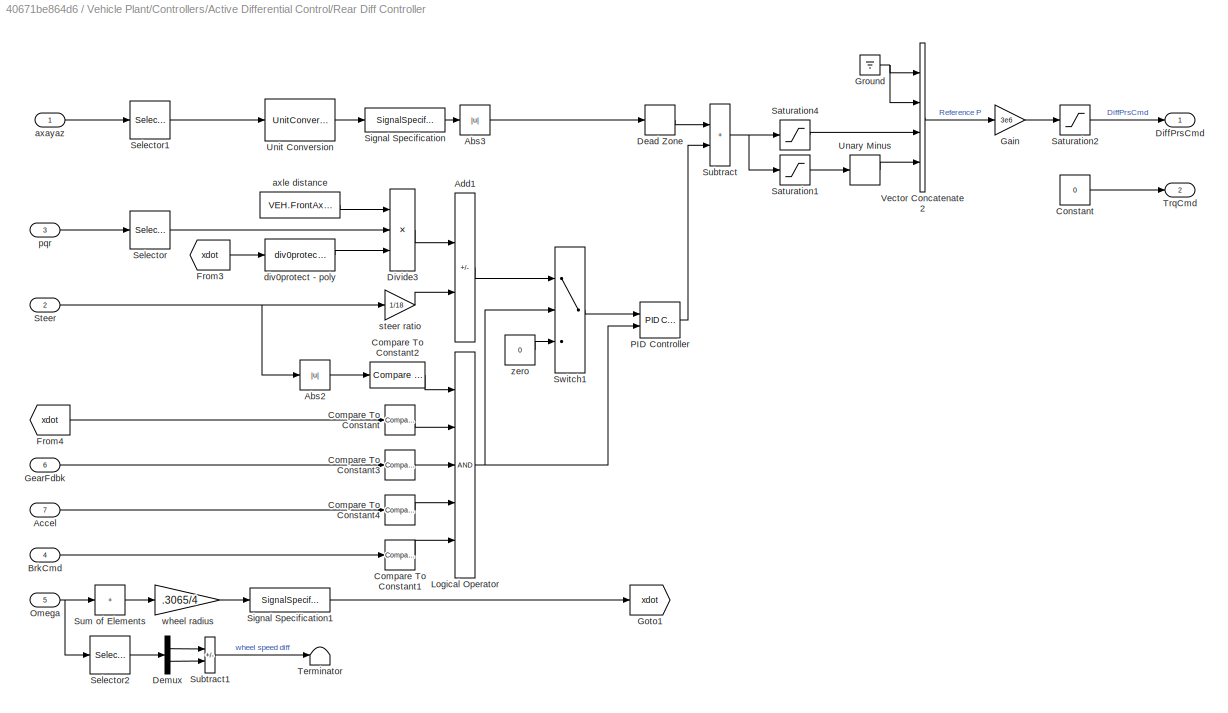
BLOCK [SubSystem] Vehicle Plant/Controllers/Active Differential Control/Rear Diff Controller
  Ports = [7, 2]
  RequestExecContextInheritance = off
  SystemSampleTime = .01
  TreatAsAtomicUnit = on
  VariantControl = 1
BLOCK [Abs] Vehicle Plant/Controllers/Active Differential Control/Rear Diff Controller/Abs2
  SaturateOnIntegerOverflow = off
BLOCK [Abs] Vehicle Plant/Controllers/Active Differential Control/Rear Diff Controller/Abs3
  SaturateOnIntegerOverflow = off
  ZeroCross = off
BLOCK [Inport] Vehicle Plant/Controllers/Active Differential Control/Rear Diff Controller/Accel
  Port = 7
BLOCK [Sum] Vehicle Plant/Controllers/Active Differential Control/Rear Diff Controller/Add1
  IconShape = rectangular
  Inputs = +-
  Ports = [2, 1]
BLOCK [Inport] Vehicle Plant/Controllers/Active Differential Control/Rear Diff Controller/BrkCmd
  Port = 4
BLOCK [Reference] Vehicle Plant/Controllers/Active Differential Control/Rear Diff Controller/Compare To Constant  REF=simulink/Logic and Bit
Operations/Compare
To Constant
  Ports = [1, 1]
  SourceBlock = simulink/Logic and Bit\nOperations/Compare\nTo Constant
  SourceProductBaseCode = SL
  SourceType = Compare To Constant
BLOCK [Reference] Vehicle Plant/Controllers/Active Differential Control/Rear Diff Controller/Compare To Constant1  REF=simulink/Logic and Bit
Operations/Compare
To Constant
  Ports = [1, 1]
  SourceBlock = simulink/Logic and Bit\nOperations/Compare\nTo Constant
  SourceProductBaseCode = SL
  SourceType = Compare To Constant
BLOCK [Reference] Vehicle Plant/Controllers/Active Differential Control/Rear Diff Controller/Compare To Constant2  REF=simulink/Logic and Bit
Operations/Compare
To Constant
  Ports = [1, 1]
  SourceBlock = simulink/Logic and Bit\nOperations/Compare\nTo Constant
  SourceProductBaseCode = SL
  SourceType = Compare To Constant
BLOCK [Reference] Vehicle Plant/Controllers/Active Differential Control/Rear Diff Controller/Compare To Constant3  REF=simulink/Logic and Bit
Operations/Compare
To Constant
  Ports = [1, 1]
  SourceBlock = simulink/Logic and Bit\nOperations/Compare\nTo Constant
  SourceProductBaseCode = SL
  SourceType = Compare To Constant
BLOCK [Reference] Vehicle Plant/Controllers/Active Differential Control/Rear Diff Controller/Compare To Constant4  REF=simulink/Logic and Bit
Operations/Compare
To Constant
  Ports = [1, 1]
  SourceBlock = simulink/Logic and Bit\nOperations/Compare\nTo Constant
  SourceProductBaseCode = SL
  SourceType = Compare To Constant
BLOCK [Constant] Vehicle Plant/Controllers/Active Differential Control/Rear Diff Controller/Constant
  Value = 0
BLOCK [DeadZone] Vehicle Plant/Controllers/Active Differential Control/Rear Diff Controller/Dead Zone
  ZeroCross = off
BLOCK [Demux] Vehicle Plant/Controllers/Active Differential Control/Rear Diff Controller/Demux
  Outputs = 2
  Ports = [1, 2]
BLOCK [Outport] Vehicle Plant/Controllers/Active Differential Control/Rear Diff Controller/DiffPrsCmd
  VectorParamsAs1DForOutWhenUnconnected = off
BLOCK [Product] Vehicle Plant/Controllers/Active Differential Control/Rear Diff Controller/Divide3
  Inputs = **/
  Ports = [3, 1]
BLOCK [From] Vehicle Plant/Controllers/Active Differential Control/Rear Diff Controller/From3
  GotoTag = xdot
BLOCK [From] Vehicle Plant/Controllers/Active Differential Control/Rear Diff Controller/From4
  GotoTag = xdot
BLOCK [Gain] Vehicle Plant/Controllers/Active Differential Control/Rear Diff Controller/Gain
  Gain = 3e6
BLOCK [Inport] Vehicle Plant/Controllers/Active Differential Control/Rear Diff Controller/GearFdbk
  Port = 6
BLOCK [Goto] Vehicle Plant/Controllers/Active Differential Control/Rear Diff Controller/Goto1
  GotoTag = xdot
BLOCK [Ground] Vehicle Plant/Controllers/Active Differential Control/Rear Diff Controller/Ground
BLOCK [Logic] Vehicle Plant/Controllers/Active Differential Control/Rear Diff Controller/Logical Operator
  AllPortsSameDT = off
  Inputs = 5
  OutDataTypeStr = boolean
  Ports = [5, 1]
BLOCK [Inport] Vehicle Plant/Controllers/Active Differential Control/Rear Diff Controller/Omega
  Port = 5
  Unit = rad/s
BLOCK [Reference] Vehicle Plant/Controllers/Active Differential Control/Rear Diff Controller/PID Controller  REF=pid_lib/PID Controller
  Ports = [2, 1]
  SourceBlock = pid_lib/PID Controller
  SourceProductBaseCode = SL
  SourceType = PID 1dof
BLOCK [Saturate] Vehicle Plant/Controllers/Active Differential Control/Rear Diff Controller/Saturation1
  LowerLimit = -1
  UpperLimit = 0
  ZeroCross = off
BLOCK [Saturate] Vehicle Plant/Controllers/Active Differential Control/Rear Diff Controller/Saturation2
  LowerLimit = 0
  UpperLimit = 5e6
  ZeroCross = off
BLOCK [Saturate] Vehicle Plant/Controllers/Active Differential Control/Rear Diff Controller/Saturation4
  LowerLimit = 0
  UpperLimit = 1
  ZeroCross = off
BLOCK [Selector] Vehicle Plant/Controllers/Active Differential Control/Rear Diff Controller/Selector
  IndexOptions = Index vector (dialog)
  Indices = [3]
  InputPortWidth = 3
  OutputSizes = 1
  Ports = [1, 1]
BLOCK [Selector] Vehicle Plant/Controllers/Active Differential Control/Rear Diff Controller/Selector1
  IndexOptions = Index vector (dialog)
  Indices = [2]
  InputPortWidth = 3
  OutputSizes = 1
  Ports = [1, 1]
BLOCK [Selector] Vehicle Plant/Controllers/Active Differential Control/Rear Diff Controller/Selector2
  IndexOptions = Index vector (dialog)
  Indices = [3 4]
  InputPortWidth = 4
  OutputSizes = 1
  Ports = [1, 1]
BLOCK [SignalSpecification] Vehicle Plant/Controllers/Active Differential Control/Rear Diff Controller/Signal Specification
  Unit = gn
BLOCK [SignalSpecification] Vehicle Plant/Controllers/Active Differential Control/Rear Diff Controller/Signal Specification1
  Unit = m/s
BLOCK [Inport] Vehicle Plant/Controllers/Active Differential Control/Rear Diff Controller/Steer
  Port = 2
BLOCK [Sum] Vehicle Plant/Controllers/Active Differential Control/Rear Diff Controller/Subtract
  IconShape = rectangular
  Ports = [2, 1]
BLOCK [Sum] Vehicle Plant/Controllers/Active Differential Control/Rear Diff Controller/Subtract1
  IconShape = rectangular
  Inputs = +-
  Ports = [2, 1]
BLOCK [Sum] Vehicle Plant/Controllers/Active Differential Control/Rear Diff Controller/Sum of Elements
  IconShape = rectangular
  Inputs = +
  Ports = [1, 1]
BLOCK [Switch] Vehicle Plant/Controllers/Active Differential Control/Rear Diff Controller/Switch1
  Criteria = u2 > Threshold
  InputSameDT = off
  SaturateOnIntegerOverflow = off
  Threshold = .1
BLOCK [Terminator] Vehicle Plant/Controllers/Active Differential Control/Rear Diff Controller/Terminator
BLOCK [Outport] Vehicle Plant/Controllers/Active Differential Control/Rear Diff Controller/TrqCmd
  Port = 2
  VectorParamsAs1DForOutWhenUnconnected = off
BLOCK [UnaryMinus] Vehicle Plant/Controllers/Active Differential Control/Rear Diff Controller/Unary Minus
BLOCK [UnitConversion] Vehicle Plant/Controllers/Active Differential Control/Rear Diff Controller/Unit Conversion
BLOCK [Concatenate] Vehicle Plant/Controllers/Active Differential Control/Rear Diff Controller/Vector Concatenate2
  NumInputs = 4
  Ports = [4, 1]
BLOCK [Inport] Vehicle Plant/Controllers/Active Differential Control/Rear Diff Controller/axayaz
BLOCK [Constant] Vehicle Plant/Controllers/Active Differential Control/Rear Diff Controller/axle distance
  NameLocation = top
  Value = VEH.FrontAxlePositionfromCG+VEH.RearAxlePositionfromCG
BLOCK [Reference] Vehicle Plant/Controllers/Active Differential Control/Rear Diff Controller/div0protect - poly  REF=autolibutils/div0protect - poly
  Ports = [1, 1]
  SourceBlock = autolibutils/div0protect - poly
  SourceProductBaseCode = PW,MT,UV,VE,VP
BLOCK [Inport] Vehicle Plant/Controllers/Active Differential Control/Rear Diff Controller/pqr
  Port = 3
BLOCK [Gain] Vehicle Plant/Controllers/Active Differential Control/Rear Diff Controller/steer ratio
  Gain = 1/18
BLOCK [Gain] Vehicle Plant/Controllers/Active Differential Control/Rear Diff Controller/wheel radius
  Gain = .3065/4
BLOCK [Constant] Vehicle Plant/Controllers/Active Differential Control/Rear Diff Controller/zero
  Value = 0
BLOCK [Inport] Vehicle Plant/Controllers/Active Differential Control/Steer
  Port = 3
BLOCK [Outport] Vehicle Plant/Controllers/Active Differential Control/TrqCmd
  Port = 2
  VectorParamsAs1DForOutWhenUnconnected = off
BLOCK [Inport] Vehicle Plant/Controllers/Active Differential Control/axayaz
  Port = 6
BLOCK [Inport] Vehicle Plant/Controllers/Active Differential Control/pqr
  Port = 7
BLOCK [SubSystem] Vehicle Plant/Controllers/Brake Controller
  Ports = [3, 1]
  RequestExecContextInheritance = off
BLOCK [Abs] Vehicle Plant/Controllers/Brake Controller/Abs
  SaturateOnIntegerOverflow = off
  ZeroCross = off
BLOCK [SubSystem] Vehicle Plant/Controllers/Brake Controller/Brake Pressure Control
  LabelModeActiveChoice = 0
  Ports = [3, 1]
  RequestExecContextInheritance = off
  Variant = on
  VariantControlMode = label
BLOCK [Inport] Vehicle Plant/Controllers/Brake Controller/Brake Pressure Control/<Kappa>
  Port = 3
BLOCK [SubSystem] Vehicle Plant/Controllers/Brake Controller/Brake Pressure Control/Bang Bang ABS
  Ports = [3, 1]
  RequestExecContextInheritance = off
  VariantControl = 1
BLOCK [Inport] Vehicle Plant/Controllers/Brake Controller/Brake Pressure Control/Bang Bang ABS/<Kappa>
  Port = 3
BLOCK [Abs] Vehicle Plant/Controllers/Brake Controller/Brake Pressure Control/Bang Bang ABS/Abs
  SaturateOnIntegerOverflow = off
BLOCK [Sum] Vehicle Plant/Controllers/Brake Controller/Brake Pressure Control/Bang Bang ABS/Add
  IconShape = rectangular
  Inputs = -+
  Ports = [2, 1]
BLOCK [SubSystem] Vehicle Plant/Controllers/Brake Controller/Brake Pressure Control/Bang Bang ABS/Bang-bang controller
  Ports = [1, 1]
  RequestExecContextInheritance = off
  ShowPortLabels = none
BLOCK [Constant] Vehicle Plant/Controllers/Brake Controller/Brake Pressure Control/Bang Bang ABS/Bang-bang controller/Constant
  Value = 0
BLOCK [DataTypeConversion] Vehicle Plant/Controllers/Brake Controller/Brake Pressure Control/Bang Bang ABS/Bang-bang controller/Data Type Conversion1
  OutDataTypeStr = double
BLOCK [DataTypeConversion] Vehicle Plant/Controllers/Brake Controller/Brake Pressure Control/Bang Bang ABS/Bang-bang controller/Data Type Conversion2
  OutDataTypeStr = double
BLOCK [RelationalOperator] Vehicle Plant/Controllers/Brake Controller/Brake Pressure Control/Bang Bang ABS/Bang-bang controller/Relational Operator
  Operator = >
  OutDataTypeStr = boolean
  Ports = [2, 1]
BLOCK [RelationalOperator] Vehicle Plant/Controllers/Brake Controller/Brake Pressure Control/Bang Bang ABS/Bang-bang controller/Relational Operator1
  Operator = <
  OutDataTypeStr = boolean
  Ports = [2, 1]
BLOCK [Sum] Vehicle Plant/Controllers/Brake Controller/Brake Pressure Control/Bang Bang ABS/Bang-bang controller/Sum
  IconShape = rectangular
  InputSameDT = on
  Inputs = +-
  OutDataTypeStr = Inherit: Same as first input
  Ports = [2, 1]
  SaturateOnIntegerOverflow = on
BLOCK [Inport] Vehicle Plant/Controllers/Brake Controller/Brake Pressure Control/Bang Bang ABS/Bang-bang controller/in_1
BLOCK [Outport] Vehicle Plant/Controllers/Brake Controller/Brake Pressure Control/Bang Bang ABS/Bang-bang controller/out_1
  InitialOutput = 0
  VectorParamsAs1DForOutWhenUnconnected = off
BLOCK [Outport] Vehicle Plant/Controllers/Brake Controller/Brake Pressure Control/Bang Bang ABS/BrkPrsCmd
  VectorParamsAs1DForOutWhenUnconnected = off
BLOCK [Reference] Vehicle Plant/Controllers/Brake Controller/Brake Pressure Control/Bang Bang ABS/Compare To Constant  REF=simulink/Logic and Bit
Operations/Compare
To Constant
  Ports = [1, 1]
  SourceBlock = simulink/Logic and Bit\nOperations/Compare\nTo Constant
  SourceProductBaseCode = SL
  SourceType = Compare To Constant
BLOCK [Reference] Vehicle Plant/Controllers/Brake Controller/Brake Pressure Control/Bang Bang ABS/Compare To Constant1  REF=simulink/Logic and Bit
Operations/Compare
To Constant
  Ports = [1, 1]
  SourceBlock = simulink/Logic and Bit\nOperations/Compare\nTo Constant
  SourceProductBaseCode = SL
  SourceType = Compare To Constant
BLOCK [Reference] Vehicle Plant/Controllers/Brake Controller/Brake Pressure Control/Bang Bang ABS/Compare To Constant2  REF=simulink/Logic and Bit
Operations/Compare
To Constant
  Ports = [1, 1]
  SourceBlock = simulink/Logic and Bit\nOperations/Compare\nTo Constant
  SourceProductBaseCode = SL
  SourceType = Compare To Constant
BLOCK [Constant] Vehicle Plant/Controllers/Brake Controller/Brake Pressure Control/Bang Bang ABS/Constant
  Value = .25
BLOCK [Reference] Vehicle Plant/Controllers/Brake Controller/Brake Pressure Control/Bang Bang ABS/Debounce  REF=autolibutils/Debounce
  Ports = [1, 1]
  SourceBlock = autolibutils/Debounce
  SourceProductBaseCode = PW,MT,UV,VE,VP
BLOCK [FirstOrderHold] Vehicle Plant/Controllers/Brake Controller/Brake Pressure Control/Bang Bang ABS/First Order Hold
  ErrorTolerance = 1
BLOCK [Gain] Vehicle Plant/Controllers/Brake Controller/Brake Pressure Control/Bang Bang ABS/Gain
  Gain = 200
BLOCK [Logic] Vehicle Plant/Controllers/Brake Controller/Brake Pressure Control/Bang Bang ABS/Logical Operator
  AllPortsSameDT = off
  Inputs = 3
  OutDataTypeStr = boolean
  Ports = [3, 1]
BLOCK [Inport] Vehicle Plant/Controllers/Brake Controller/Brake Pressure Control/Bang Bang ABS/Omega
  Port = 2
BLOCK [Inport] Vehicle Plant/Controllers/Brake Controller/Brake Pressure Control/Bang Bang ABS/Pref
BLOCK [RateTransition] Vehicle Plant/Controllers/Brake Controller/Brake Pressure Control/Bang Bang ABS/Rate Transition
  Deterministic = off
  OutPortSampleTime = .001
BLOCK [Gain] Vehicle Plant/Controllers/Brake Controller/Brake Pressure Control/Bang Bang ABS/Re//NWheels
  Gain = 0.3/4
BLOCK [Sum] Vehicle Plant/Controllers/Brake Controller/Brake Pressure Control/Bang Bang ABS/Sum of Elements
  IconShape = rectangular
  Inputs = +
  Ports = [1, 1]
BLOCK [Switch] Vehicle Plant/Controllers/Brake Controller/Brake Pressure Control/Bang Bang ABS/Switch
  Criteria = u2 > Threshold
  InputSameDT = off
  SaturateOnIntegerOverflow = off
  ZeroCross = off
BLOCK [Outport] Vehicle Plant/Controllers/Brake Controller/Brake Pressure Control/BrkPrsCmd
  VectorParamsAs1DForOutWhenUnconnected = off
BLOCK [Inport] Vehicle Plant/Controllers/Brake Controller/Brake Pressure Control/Omega
  Port = 2
BLOCK [SubSystem] Vehicle Plant/Controllers/Brake Controller/Brake Pressure Control/Open Loop
  Ports = [1, 1]
  RequestExecContextInheritance = off
  VariantControl = 0
BLOCK [Outport] Vehicle Plant/Controllers/Brake Controller/Brake Pressure Control/Open Loop/BrkPrsCmd
  VectorParamsAs1DForOutWhenUnconnected = off
BLOCK [Inport] Vehicle Plant/Controllers/Brake Controller/Brake Pressure Control/Open Loop/Pref
BLOCK [SignalConversion] Vehicle Plant/Controllers/Brake Controller/Brake Pressure Control/Open Loop/Signal Copy
  OverrideOpt = off
BLOCK [Inport] Vehicle Plant/Controllers/Brake Controller/Brake Pressure Control/Pref
BLOCK [Inport] Vehicle Plant/Controllers/Brake Controller/BrkCmd
BLOCK [Outport] Vehicle Plant/Controllers/Brake Controller/BrkPrsCmd
  VectorParamsAs1DForOutWhenUnconnected = off
BLOCK [Constant] Vehicle Plant/Controllers/Brake Controller/Constant1
  Value = -20
BLOCK [Gain] Vehicle Plant/Controllers/Brake Controller/Gain3
BLOCK [Integrator] Vehicle Plant/Controllers/Brake Controller/Integrator2
  LimitOutput = on
  LowerSaturationLimit = 0
  Ports = [1, 1]
  UpperSaturationLimit = 1
BLOCK [Inport] Vehicle Plant/Controllers/Brake Controller/Omega
  Port = 2
BLOCK [Saturate] Vehicle Plant/Controllers/Brake Controller/Saturation
  LowerLimit = 0
  UpperLimit = 1
  ZeroCross = off
BLOCK [Switch] Vehicle Plant/Controllers/Brake Controller/Switch1
  Criteria = u2 > Threshold
  InputSameDT = off
  SaturateOnIntegerOverflow = off
  Threshold = .1
BLOCK [Concatenate] Vehicle Plant/Controllers/Brake Controller/Vector Concatenate2
  NumInputs = 4
  Ports = [4, 1]
BLOCK [Inport] Vehicle Plant/Controllers/Brake Controller/kappa
  Port = 3
BLOCK [BusCreator] Vehicle Plant/Controllers/Bus Creator
  DisplayOption = bar
  InheritFromInputs = on
  Inputs = 1
  Ports = [1, 1]
BLOCK [BusCreator] Vehicle Plant/Controllers/Bus Creator1
  DisplayOption = bar
  InheritFromInputs = on
  Inputs = 1
  Ports = [1, 1]
BLOCK [BusCreator] Vehicle Plant/Controllers/Bus Creator2
  DisplayOption = bar
  InheritFromInputs = on
  Inputs = 1
  Ports = [1, 1]
BLOCK [BusCreator] Vehicle Plant/Controllers/Bus Creator3
  DisplayOption = bar
  InheritFromInputs = on
  Inputs = 4
  Ports = [4, 1]
BLOCK [BusCreator] Vehicle Plant/Controllers/Bus Creator4
  DisplayOption = bar
  InheritFromInputs = on
  Inputs = 1
  Ports = [1, 1]
BLOCK [BusSelector] Vehicle Plant/Controllers/Bus Selector
  OutputSignals = Driver.DecelFdbk,Wheels.Omega,Wheels.Kappa
  Ports = [1, 3]
BLOCK [BusSelector] Vehicle Plant/Controllers/Bus Selector1
  OutputSignals = Driver.AccFdbk,Driver.DecelFdbk,Driver.GearFdbk,Engine.EngSpd,Wheels.Omega
  Ports = [1, 5]
BLOCK [BusSelector] Vehicle Plant/Controllers/Bus Selector2
  OutputSignals = Driver.AccFdbk,Engine.EngSpd
  Ports = [1, 2]
BLOCK [BusSelector] Vehicle Plant/Controllers/Bus Selector3
  OutputSignals = Driver.AccFdbk,Driver.DecelFdbk,Driver.SteerFdbk,Driver.GearFdbk,Wheels.Omega,IMU.Acc,IMU.pqr
  Ports = [1, 7]
BLOCK [Inport] Vehicle Plant/Controllers/CntrlRx
BLOCK [Outport] Vehicle Plant/Controllers/CntrlTx
  VectorParamsAs1DForOutWhenUnconnected = off
BLOCK [SubSystem] Vehicle Plant/Controllers/ECU
  Ports = [3, 1]
  RequestExecContextInheritance = off
  SystemSampleTime = .01
BLOCK [Inport] Vehicle Plant/Controllers/ECU/<Accel>
  Port = 2
BLOCK [Inport] Vehicle Plant/Controllers/ECU/DiffTrqCmd
BLOCK [Inport] Vehicle Plant/Controllers/ECU/EngSpd
  Port = 3
BLOCK [Outport] Vehicle Plant/Controllers/ECU/EngTrqCmd
  VectorParamsAs1DForOutWhenUnconnected = off
BLOCK [FirstOrderHold] Vehicle Plant/Controllers/ECU/First Order Hold
  ErrorTolerance = 100
BLOCK [SubSystem] Vehicle Plant/Controllers/ECU/Torque Cmd
  Ports = [3, 1]
  RequestExecContextInheritance = off
  SystemSampleTime = .01
  TreatAsAtomicUnit = on
BLOCK [Inport] Vehicle Plant/Controllers/ECU/Torque Cmd/<Accel>
  Port = 2
BLOCK [Gain] Vehicle Plant/Controllers/ECU/Torque Cmd/Acc to Torque Request
  Gain = 150
BLOCK [Inport] Vehicle Plant/Controllers/ECU/Torque Cmd/DiffTrqCmd
BLOCK [Inport] Vehicle Plant/Controllers/ECU/Torque Cmd/EngSpd
  Port = 3
BLOCK [Outport] Vehicle Plant/Controllers/ECU/Torque Cmd/EngTrqCmd
BLOCK [MinMax] Vehicle Plant/Controllers/ECU/Torque Cmd/Max
  Function = max
  Inputs = 2
  Ports = [2, 1]
BLOCK [SubSystem] Vehicle Plant/Controllers/ECU/Torque Cmd/Rev Limiter Control
  Ports = [2, 1]
  RequestExecContextInheritance = off
BLOCK [Lookup_n-D] Vehicle Plant/Controllers/ECU/Torque Cmd/Rev Limiter Control/1-D Lookup Table
  BreakpointsForDimension1 = [1 1.01]
  ExtrapMethod = Clip
  InputPortMap = u0
  InternalRulePriority = Speed
  NumberOfTableDimensions = 1
  Ports = [1, 1]
  RndMeth = Simplest
  Table = [1 0]
BLOCK [Constant] Vehicle Plant/Controllers/ECU/Torque Cmd/Rev Limiter Control/Constant
  Value = EngRevLim
BLOCK [Inport] Vehicle Plant/Controllers/ECU/Torque Cmd/Rev Limiter Control/EngSpd
  Port = 2
BLOCK [Product] Vehicle Plant/Controllers/ECU/Torque Cmd/Rev Limiter Control/Product
  Ports = [2, 1]
BLOCK [Product] Vehicle Plant/Controllers/ECU/Torque Cmd/Rev Limiter Control/Product1
  Inputs = */
  Ports = [2, 1]
BLOCK [Inport] Vehicle Plant/Controllers/ECU/Torque Cmd/Rev Limiter Control/TrqCmd
BLOCK [Outport] Vehicle Plant/Controllers/ECU/Torque Cmd/Rev Limiter Control/TrqCmdRevLimited
  VectorParamsAs1DForOutWhenUnconnected = off
BLOCK [SignalSpecification] Vehicle Plant/Controllers/ECU/Torque Cmd/Signal Specification
  Unit = rpm
BLOCK [UnitConversion] Vehicle Plant/Controllers/ECU/Torque Cmd/Unit Conversion
BLOCK [From] Vehicle Plant/Controllers/From
  GotoTag = DiffTrqCmd
BLOCK [Goto] Vehicle Plant/Controllers/Goto
  GotoTag = DiffTrqCmd
BLOCK [Ground] Vehicle Plant/Controllers/Ground
BLOCK [SubSystem] Vehicle Plant/Controllers/Transmission Controller
  LabelModeActiveChoice = 3
  Ports = [7, 1]
  RequestExecContextInheritance = off
  Variant = on
  VariantControl = Variant1
  VariantControlMode = label
BLOCK [Outport] Vehicle Plant/Controllers/Transmission Controller/ Gear
  VectorParamsAs1DForOutWhenUnconnected = off
BLOCK [Inport] Vehicle Plant/Controllers/Transmission Controller/Accel
BLOCK [Inport] Vehicle Plant/Controllers/Transmission Controller/BrkCmd
  Port = 2
BLOCK [Inport] Vehicle Plant/Controllers/Transmission Controller/DownReq
  Port = 7
  Unit = rad/s
BLOCK [SubSystem] Vehicle Plant/Controllers/Transmission Controller/Driver - No Clutch
  Ports = [1, 1]
  RequestExecContextInheritance = off
  VariantControl = 1
BLOCK [Outport] Vehicle Plant/Controllers/Transmission Controller/Driver - No Clutch/Gear
  VectorParamsAs1DForOutWhenUnconnected = off
BLOCK [Inport] Vehicle Plant/Controllers/Transmission Controller/Driver - No Clutch/GearReq
BLOCK [Inport] Vehicle Plant/Controllers/Transmission Controller/EngSpd
  Port = 4
BLOCK [Inport] Vehicle Plant/Controllers/Transmission Controller/GearReq
  Port = 3
BLOCK [Inport] Vehicle Plant/Controllers/Transmission Controller/Omega
  Port = 5
  Unit = rad/s
BLOCK [SubSystem] Vehicle Plant/Controllers/Transmission Controller/PRNDL Controller
  Ports = [5, 1]
  RequestExecContextInheritance = off
  VariantControl = 3
BLOCK [Inport] Vehicle Plant/Controllers/Transmission Controller/PRNDL Controller/Accel
BLOCK [Inport] Vehicle Plant/Controllers/Transmission Controller/PRNDL Controller/BrkCmd
  Port = 2
BLOCK [Inport] Vehicle Plant/Controllers/Transmission Controller/PRNDL Controller/EngSpd
  Port = 4
  Unit = rad/s
BLOCK [Gain] Vehicle Plant/Controllers/Transmission Controller/PRNDL Controller/Gain
  Gain = .3065/4
BLOCK [Outport] Vehicle Plant/Controllers/Transmission Controller/PRNDL Controller/Gear
  VectorParamsAs1DForOutWhenUnconnected = off
BLOCK [Inport] Vehicle Plant/Controllers/Transmission Controller/PRNDL Controller/GearReq
  Port = 5
BLOCK [Inport] Vehicle Plant/Controllers/Transmission Controller/PRNDL Controller/Omega
  Port = 3
  Unit = rad/s
BLOCK [RateTransition] Vehicle Plant/Controllers/Transmission Controller/PRNDL Controller/Rate Transition1
  Deterministic = off
BLOCK [SubSystem] Vehicle Plant/Controllers/Transmission Controller/PRNDL Controller/Shift Controller
  ErrorFcn = Stateflow.Translate.translate
  InitFcn = [~] = vehdynicon('vedhynmaneuver',gcb,0)
  PermitHierarchicalResolution = ExplicitOnly
  Ports = [5, 2]
  RequestExecContextInheritance = off
  SFBlockType = Chart
  TreatAsAtomicUnit = on
BLOCK [Demux] Vehicle Plant/Controllers/Transmission Controller/PRNDL Controller/Shift Controller/ Demux 
  Outputs = 3
  Ports = [1, 3]
BLOCK [S-Function] Vehicle Plant/Controllers/Transmission Controller/PRNDL Controller/Shift Controller/ SFunction 
  EnableBusSupport = on
  FunctionName = sf_sfun
  Parameters = GearInit,tClutch,tPark,tRev
  PortCounts = [8 10]
  Ports = [8, 10]
  SFcnIsStateOwnerBlock = off
  SFunctionDeploymentMode = off
  Tag = Stateflow S-Function 4
BLOCK [Inport] Vehicle Plant/Controllers/Transmission Controller/PRNDL Controller/Shift Controller/Accel
  Port = 2
BLOCK [Inport] Vehicle Plant/Controllers/Transmission Controller/PRNDL Controller/Shift Controller/Brake
  Port = 3
BLOCK [Inport] Vehicle Plant/Controllers/Transmission Controller/PRNDL Controller/Shift Controller/EngSpd
  Port = 4
BLOCK [Outport] Vehicle Plant/Controllers/Transmission Controller/PRNDL Controller/Shift Controller/Gear
  VectorParamsAs1DForOutWhenUnconnected = off
BLOCK [Inport] Vehicle Plant/Controllers/Transmission Controller/PRNDL Controller/Shift Controller/PRNDL
BLOCK [Inport] Vehicle Plant/Controllers/Transmission Controller/PRNDL Controller/Shift Controller/VehVel
  Port = 5
BLOCK [SubSystem] Vehicle Plant/Controllers/Transmission Controller/PRNDL Controller/Shift Controller/calc
  Ports = [3, 1, 0, 1]
  PreDeleteFcn = Stateflow.SLINSF.SimulinkMan.removePreDeleteFcn
  RequestExecContextInheritance = off
  UndoDeleteFcn = Stateflow.SLINSF.SimulinkMan.restorePreDeleteFcn
BLOCK [Sum] Vehicle Plant/Controllers/Transmission Controller/PRNDL Controller/Shift Controller/calc/Add1
  IconShape = rectangular
  Inputs = +-
  Ports = [2, 1]
BLOCK [Sum] Vehicle Plant/Controllers/Transmission Controller/PRNDL Controller/Shift Controller/calc/Add3
  IconShape = rectangular
  Inputs = +-
  Ports = [2, 1]
BLOCK [Sum] Vehicle Plant/Controllers/Transmission Controller/PRNDL Controller/Shift Controller/calc/Add4
  IconShape = rectangular
  Inputs = +-
  Ports = [2, 1]
BLOCK [Lookup_n-D] Vehicle Plant/Controllers/Transmission Controller/PRNDL Controller/Shift Controller/calc/Calculate Downshift Threshold
  BreakpointsForDimension1 = pdlVec
  BreakpointsForDimension2 = DownGearVec
  ExtrapMethod = Clip
  InputPortMap = u0,u1
  InternalRulePriority = Speed
  Ports = [2, 1]
  RndMeth = Simplest
  Table = dwnShftTbl
  UseLastTableValue = on
BLOCK [Lookup_n-D] Vehicle Plant/Controllers/Transmission Controller/PRNDL Controller/Shift Controller/calc/Calculate Upshift Threshold
  BreakpointsForDimension1 = pdlVec
  BreakpointsForDimension2 = UpGearVec
  ExtrapMethod = Clip
  InputPortMap = u0,u1
  InternalRulePriority = Speed
  Ports = [2, 1]
  RndMeth = Simplest
  Table = upShftTbl
  UseLastTableValue = on
BLOCK [Inport] Vehicle Plant/Controllers/Transmission Controller/PRNDL Controller/Shift Controller/calc/Gear
BLOCK [Outport] Vehicle Plant/Controllers/Transmission Controller/PRNDL Controller/Shift Controller/calc/SpdThr
  VectorParamsAs1DForOutWhenUnconnected = off
BLOCK [Inport] Vehicle Plant/Controllers/Transmission Controller/PRNDL Controller/Shift Controller/calc/VehVel
  Port = 3
BLOCK [TriggerPort] Vehicle Plant/Controllers/Transmission Controller/PRNDL Controller/Shift Controller/calc/f
  CopyFcn = Stateflow.SLINSF.SimulinkMan.removeBlockPreDeleteFcn
  Ports = []
  PreDeleteFcn = Stateflow.SLINSF.SimulinkMan.unsafePredeleteFcn
  StatesWhenEnabling = reset
  TriggerType = function-call
  VariantControl = Variant
BLOCK [Inport] Vehicle Plant/Controllers/Transmission Controller/PRNDL Controller/Shift Controller/calc/pedal
  Port = 2
BLOCK [SubSystem] Vehicle Plant/Controllers/Transmission Controller/PRNDL Controller/Shift Controller/calc_down
  Ports = [2, 1, 0, 1]
  PreDeleteFcn = Stateflow.SLINSF.SimulinkMan.removePreDeleteFcn
  RequestExecContextInheritance = off
  UndoDeleteFcn = Stateflow.SLINSF.SimulinkMan.restorePreDeleteFcn
BLOCK [Inport] Vehicle Plant/Controllers/Transmission Controller/PRNDL Controller/Shift Controller/calc_down/Accel
  Port = 2
BLOCK [Lookup_n-D] Vehicle Plant/Controllers/Transmission Controller/PRNDL Controller/Shift Controller/calc_down/Calculate Downshift Threshold
  BreakpointsForDimension1 = pdlVec
  BreakpointsForDimension2 = DownGearVec
  ExtrapMethod = Clip
  InputPortMap = u0,u1
  InternalRulePriority = Speed
  Ports = [2, 1]
  RndMeth = Simplest
  Table = dwnShftTbl
  UseLastTableValue = on
BLOCK [Inport] Vehicle Plant/Controllers/Transmission Controller/PRNDL Controller/Shift Controller/calc_down/Gear
BLOCK [Outport] Vehicle Plant/Controllers/Transmission Controller/PRNDL Controller/Shift Controller/calc_down/down_th
  VectorParamsAs1DForOutWhenUnconnected = off
BLOCK [TriggerPort] Vehicle Plant/Controllers/Transmission Controller/PRNDL Controller/Shift Controller/calc_down/f
  CopyFcn = Stateflow.SLINSF.SimulinkMan.removeBlockPreDeleteFcn
  Ports = []
  PreDeleteFcn = Stateflow.SLINSF.SimulinkMan.unsafePredeleteFcn
  StatesWhenEnabling = reset
  TriggerType = function-call
  VariantControl = Variant
BLOCK [SubSystem] Vehicle Plant/Controllers/Transmission Controller/PRNDL Controller/Shift Controller/calc_up
  Ports = [2, 1, 0, 1]
  PreDeleteFcn = Stateflow.SLINSF.SimulinkMan.removePreDeleteFcn
  RequestExecContextInheritance = off
  UndoDeleteFcn = Stateflow.SLINSF.SimulinkMan.restorePreDeleteFcn
BLOCK [Inport] Vehicle Plant/Controllers/Transmission Controller/PRNDL Controller/Shift Controller/calc_up/Accel
  Port = 2
BLOCK [Lookup_n-D] Vehicle Plant/Controllers/Transmission Controller/PRNDL Controller/Shift Controller/calc_up/Calculate Upshift Threshold
  BreakpointsForDimension1 = pdlVec
  BreakpointsForDimension2 = UpGearVec
  ExtrapMethod = Clip
  InputPortMap = u0,u1
  InternalRulePriority = Speed
  Ports = [2, 1]
  RndMeth = Simplest
  Table = upShftTbl
  UseLastTableValue = on
BLOCK [Inport] Vehicle Plant/Controllers/Transmission Controller/PRNDL Controller/Shift Controller/calc_up/Gear
BLOCK [TriggerPort] Vehicle Plant/Controllers/Transmission Controller/PRNDL Controller/Shift Controller/calc_up/f
  CopyFcn = Stateflow.SLINSF.SimulinkMan.removeBlockPreDeleteFcn
  Ports = []
  PreDeleteFcn = Stateflow.SLINSF.SimulinkMan.unsafePredeleteFcn
  StatesWhenEnabling = reset
  TriggerType = function-call
  VariantControl = Variant
BLOCK [Outport] Vehicle Plant/Controllers/Transmission Controller/PRNDL Controller/Shift Controller/calc_up/up_th
  VectorParamsAs1DForOutWhenUnconnected = off
BLOCK [Outport] Vehicle Plant/Controllers/Transmission Controller/PRNDL Controller/Shift Controller/clutchControl
  Port = 2
  VectorParamsAs1DForOutWhenUnconnected = off
BLOCK [SignalSpecification] Vehicle Plant/Controllers/Transmission Controller/PRNDL Controller/Signal Specification
  Unit = rpm
BLOCK [SignalSpecification] Vehicle Plant/Controllers/Transmission Controller/PRNDL Controller/Signal Specification1
  Unit = m/s
BLOCK [SignalSpecification] Vehicle Plant/Controllers/Transmission Controller/PRNDL Controller/Signal Specification2
  Unit = km/hr
BLOCK [Sum] Vehicle Plant/Controllers/Transmission Controller/PRNDL Controller/Sum of Elements
  IconShape = rectangular
  Inputs = +
  Ports = [1, 1]
BLOCK [Terminator] Vehicle Plant/Controllers/Transmission Controller/PRNDL Controller/Terminator
BLOCK [UnitConversion] Vehicle Plant/Controllers/Transmission Controller/PRNDL Controller/Unit Conversion
BLOCK [UnitConversion] Vehicle Plant/Controllers/Transmission Controller/PRNDL Controller/Unit Conversion1
BLOCK [SubSystem] Vehicle Plant/Controllers/Transmission Controller/Paddles
  Ports = [2, 1]
  RequestExecContextInheritance = off
  VariantControl = 2
BLOCK [Inport] Vehicle Plant/Controllers/Transmission Controller/Paddles/Accel
BLOCK [Sum] Vehicle Plant/Controllers/Transmission Controller/Paddles/Add1
  IconShape = rectangular
  Inputs = +-+
  Ports = [3, 1]
BLOCK [UnitDelay] Vehicle Plant/Controllers/Transmission Controller/Paddles/Current Gear
  HasFrameUpgradeWarning = on
  SampleTime = -1
BLOCK [DataTypeConversion] Vehicle Plant/Controllers/Transmission Controller/Paddles/Data Type Conversion2
  OutDataTypeStr = double
  RndMeth = Floor
  SaturateOnIntegerOverflow = off
BLOCK [Reference] Vehicle Plant/Controllers/Transmission Controller/Paddles/Debounce  REF=autolibutils/Debounce
  Ports = [1, 1]
  SourceBlock = autolibutils/Debounce
  SourceProductBaseCode = PW,MT,UV,VE,VP
BLOCK [Reference] Vehicle Plant/Controllers/Transmission Controller/Paddles/Debounce1  REF=autolibutils/Debounce
  Ports = [1, 1]
  SourceBlock = autolibutils/Debounce
  SourceProductBaseCode = PW,MT,UV,VE,VP
BLOCK [Demux] Vehicle Plant/Controllers/Transmission Controller/Paddles/Demux
  Outputs = 2
  Ports = [1, 2]
BLOCK [Reference] Vehicle Plant/Controllers/Transmission Controller/Paddles/Detect Increase2  REF=simulink/Logic and Bit
Operations/Detect
Increase
  Ports = [1, 1]
  SourceBlock = simulink/Logic and Bit\nOperations/Detect\nIncrease
  SourceProductBaseCode = SL
  SourceType = Detect Increase
BLOCK [Inport] Vehicle Plant/Controllers/Transmission Controller/Paddles/EngSpd
  Port = 2
  Unit = rad/s
BLOCK [Outport] Vehicle Plant/Controllers/Transmission Controller/Paddles/Gear
  VectorParamsAs1DForOutWhenUnconnected = off
BLOCK [Logic] Vehicle Plant/Controllers/Transmission Controller/Paddles/Logical Operator1
  AllPortsSameDT = off
  Inputs = 1
  Operator = XOR
  OutDataTypeStr = boolean
  Ports = [1, 1]
BLOCK [Mux] Vehicle Plant/Controllers/Transmission Controller/Paddles/Mux
  DisplayOption = bar
  Inputs = 2
  Ports = [2, 1]
BLOCK [Switch] Vehicle Plant/Controllers/Transmission Controller/Paddles/Switch2
  Criteria = u2 > Threshold
  InputSameDT = off
  SaturateOnIntegerOverflow = off
BLOCK [SubSystem] Vehicle Plant/Controllers/Transmission Controller/Transmission Controller
  Ports = [3, 1]
  RequestExecContextInheritance = off
  VariantControl = 0
BLOCK [Reference] Vehicle Plant/Controllers/Transmission Controller/Transmission Controller/10ms Function-Call Generator  REF=simulink/Ports &
Subsystems/Function-Call
Generator
  Ports = [0, 1]
  SourceBlock = simulink/Ports &\nSubsystems/Function-Call\nGenerator
  SourceProductBaseCode = SL
  SourceType = Function-Call Generator
BLOCK [Inport] Vehicle Plant/Controllers/Transmission Controller/Transmission Controller/Accel
BLOCK [DataTypeConversion] Vehicle Plant/Controllers/Transmission Controller/Transmission Controller/Data Type Conversion
  RndMeth = Floor
  SaturateOnIntegerOverflow = off
BLOCK [Inport] Vehicle Plant/Controllers/Transmission Controller/Transmission Controller/EngSpd
  Port = 2
  Unit = rad/s
BLOCK [FirstOrderHold] Vehicle Plant/Controllers/Transmission Controller/Transmission Controller/First Order Hold
  ErrorTolerance = .1
BLOCK [Outport] Vehicle Plant/Controllers/Transmission Controller/Transmission Controller/Gear
  VectorParamsAs1DForOutWhenUnconnected = off
BLOCK [Inport] Vehicle Plant/Controllers/Transmission Controller/Transmission Controller/Omega
  Port = 3
  Unit = rad/s
BLOCK [RateTransition] Vehicle Plant/Controllers/Transmission Controller/Transmission Controller/Rate Transition
  Deterministic = off
BLOCK [RateTransition] Vehicle Plant/Controllers/Transmission Controller/Transmission Controller/Rate Transition1
  Deterministic = off
BLOCK [RateTransition] Vehicle Plant/Controllers/Transmission Controller/Transmission Controller/Rate Transition2
  Deterministic = off
BLOCK [SignalSpecification] Vehicle Plant/Controllers/Transmission Controller/Transmission Controller/Signal Specification
  Unit = rpm
BLOCK [SubSystem] Vehicle Plant/Controllers/Transmission Controller/Transmission Controller/TCM
  Ports = [3, 1, 0, 1]
  RequestExecContextInheritance = off
BLOCK [Inport] Vehicle Plant/Controllers/Transmission Controller/Transmission Controller/TCM/AccCmd
BLOCK [Inport] Vehicle Plant/Controllers/Transmission Controller/Transmission Controller/TCM/EngSpd
  Port = 2
BLOCK [Gain] Vehicle Plant/Controllers/Transmission Controller/Transmission Controller/TCM/Gain
  Gain = .3065/4
BLOCK [Outport] Vehicle Plant/Controllers/Transmission Controller/Transmission Controller/TCM/GearCmd
  VectorParamsAs1DForOutWhenUnconnected = off
BLOCK [SubSystem] Vehicle Plant/Controllers/Transmission Controller/Transmission Controller/TCM/Neutral Select
  Ports = [2, 1]
  RequestExecContextInheritance = off
BLOCK [Inport] Vehicle Plant/Controllers/Transmission Controller/Transmission Controller/TCM/Neutral Select/AccCmd
BLOCK [Constant] Vehicle Plant/Controllers/Transmission Controller/Transmission Controller/TCM/Neutral Select/Constant
  Value = 1200
BLOCK [Constant] Vehicle Plant/Controllers/Transmission Controller/Transmission Controller/TCM/Neutral Select/Constant1
  Value = 1e-2
BLOCK [Constant] Vehicle Plant/Controllers/Transmission Controller/Transmission Controller/TCM/Neutral Select/Constant2
  Value = 500
BLOCK [Inport] Vehicle Plant/Controllers/Transmission Controller/Transmission Controller/TCM/Neutral Select/EngSpd
  Port = 2
BLOCK [Logic] Vehicle Plant/Controllers/Transmission Controller/Transmission Controller/TCM/Neutral Select/Logical Operator
  AllPortsSameDT = off
  OutDataTypeStr = boolean
  Ports = [2, 1]
BLOCK [Logic] Vehicle Plant/Controllers/Transmission Controller/Transmission Controller/TCM/Neutral Select/Logical Operator1
  AllPortsSameDT = off
  Operator = OR
  OutDataTypeStr = boolean
  Ports = [2, 1]
BLOCK [Outport] Vehicle Plant/Controllers/Transmission Controller/Transmission Controller/TCM/Neutral Select/Neutral Select
  VectorParamsAs1DForOutWhenUnconnected = off
BLOCK [RelationalOperator] Vehicle Plant/Controllers/Transmission Controller/Transmission Controller/TCM/Neutral Select/Relational Operator
  InputSameDT = off
  Operator = <=
  OutDataTypeStr = boolean
  Ports = [2, 1]
  RndMeth = Simplest
  ZeroCross = off
BLOCK [RelationalOperator] Vehicle Plant/Controllers/Transmission Controller/Transmission Controller/TCM/Neutral Select/Relational Operator1
  InputSameDT = off
  Operator = <=
  OutDataTypeStr = boolean
  Ports = [2, 1]
  RndMeth = Simplest
  ZeroCross = off
BLOCK [RelationalOperator] Vehicle Plant/Controllers/Transmission Controller/Transmission Controller/TCM/Neutral Select/Relational Operator2
  InputSameDT = off
  Operator = <=
  OutDataTypeStr = boolean
  Ports = [2, 1]
  RndMeth = Simplest
  ZeroCross = off
BLOCK [Inport] Vehicle Plant/Controllers/Transmission Controller/Transmission Controller/TCM/Omega
  Port = 3
  Unit = rad/s
BLOCK [SignalSpecification] Vehicle Plant/Controllers/Transmission Controller/Transmission Controller/TCM/Signal Specification1
  Unit = m/s
BLOCK [SignalSpecification] Vehicle Plant/Controllers/Transmission Controller/Transmission Controller/TCM/Signal Specification2
  Unit = km/hr
BLOCK [DiscreteTransferFcn] Vehicle Plant/Controllers/Transmission Controller/Transmission Controller/TCM/Speed LPF
  Denominator = [1.000000000000000 -0.990049833749168 ]
  InputPortMap = u0
  Numerator = [0.000000000000000 0.009950166250832 ]
  Ports = [1, 1]
BLOCK [Sum] Vehicle Plant/Controllers/Transmission Controller/Transmission Controller/TCM/Sum of Elements
  IconShape = rectangular
  Inputs = +
  Ports = [1, 1]
BLOCK [SubSystem] Vehicle Plant/Controllers/Transmission Controller/Transmission Controller/TCM/TCM Shift Controller
  ErrorFcn = Stateflow.Translate.translate
  PermitHierarchicalResolution = ExplicitOnly
  Ports = [3, 1]
  RequestExecContextInheritance = off
  SFBlockType = Chart
  TreatAsAtomicUnit = on
BLOCK [Demux] Vehicle Plant/Controllers/Transmission Controller/Transmission Controller/TCM/TCM Shift Controller/ Demux 
  Outputs = 3
  Ports = [1, 3]
BLOCK [S-Function] Vehicle Plant/Controllers/Transmission Controller/Transmission Controller/TCM/TCM Shift Controller/ SFunction 
  EnableBusSupport = on
  FunctionName = sf_sfun
  PortCounts = [6 9]
  Ports = [6, 9]
  SFcnIsStateOwnerBlock = off
  SFunctionDeploymentMode = off
  Tag = Stateflow S-Function 1
BLOCK [Outport] Vehicle Plant/Controllers/Transmission Controller/Transmission Controller/TCM/TCM Shift Controller/GearCmd
  VectorParamsAs1DForOutWhenUnconnected = off
BLOCK [Inport] Vehicle Plant/Controllers/Transmission Controller/Transmission Controller/TCM/TCM Shift Controller/Neutral
  Port = 3
BLOCK [SubSystem] Vehicle Plant/Controllers/Transmission Controller/Transmission Controller/TCM/TCM Shift Controller/calc
  Ports = [3, 1, 0, 1]
  PreDeleteFcn = Stateflow.SLINSF.SimulinkMan.removePreDeleteFcn
  RequestExecContextInheritance = off
  UndoDeleteFcn = Stateflow.SLINSF.SimulinkMan.restorePreDeleteFcn
BLOCK [Sum] Vehicle Plant/Controllers/Transmission Controller/Transmission Controller/TCM/TCM Shift Controller/calc/Add1
  IconShape = rectangular
  Inputs = +-
  Ports = [2, 1]
BLOCK [Sum] Vehicle Plant/Controllers/Transmission Controller/Transmission Controller/TCM/TCM Shift Controller/calc/Add3
  IconShape = rectangular
  Inputs = +-
  Ports = [2, 1]
BLOCK [Sum] Vehicle Plant/Controllers/Transmission Controller/Transmission Controller/TCM/TCM Shift Controller/calc/Add4
  IconShape = rectangular
  Inputs = +-
  Ports = [2, 1]
BLOCK [Lookup_n-D] Vehicle Plant/Controllers/Transmission Controller/Transmission Controller/TCM/TCM Shift Controller/calc/Calculate Downshift Threshold
  BreakpointsForDimension1 = Pedal_Positions
  BreakpointsForDimension2 = 2:8
  ExtrapMethod = Clip
  InputPortMap = u0,u1
  InternalRulePriority = Speed
  Ports = [2, 1]
  RndMeth = Simplest
  Table = Downshift_Speeds
  UseLastTableValue = on
BLOCK [Lookup_n-D] Vehicle Plant/Controllers/Transmission Controller/Transmission Controller/TCM/TCM Shift Controller/calc/Calculate Upshift Threshold
  BreakpointsForDimension1 = Pedal_Positions
  BreakpointsForDimension2 = 1:7
  ExtrapMethod = Clip
  InputPortMap = u0,u1
  InternalRulePriority = Speed
  Ports = [2, 1]
  RndMeth = Simplest
  Table = Upshift_Speeds
  UseLastTableValue = on
BLOCK [Outport] Vehicle Plant/Controllers/Transmission Controller/Transmission Controller/TCM/TCM Shift Controller/calc/SpdThr
  VectorParamsAs1DForOutWhenUnconnected = off
BLOCK [TriggerPort] Vehicle Plant/Controllers/Transmission Controller/Transmission Controller/TCM/TCM Shift Controller/calc/f
  CopyFcn = Stateflow.SLINSF.SimulinkMan.removeBlockPreDeleteFcn
  Ports = []
  PreDeleteFcn = Stateflow.SLINSF.SimulinkMan.unsafePredeleteFcn
  StatesWhenEnabling = reset
  TriggerType = function-call
  VariantControl = Variant
BLOCK [Inport] Vehicle Plant/Controllers/Transmission Controller/Transmission Controller/TCM/TCM Shift Controller/calc/gear
BLOCK [Inport] Vehicle Plant/Controllers/Transmission Controller/Transmission Controller/TCM/TCM Shift Controller/calc/pedal
  Port = 2
BLOCK [Inport] Vehicle Plant/Controllers/Transmission Controller/Transmission Controller/TCM/TCM Shift Controller/calc/speed
  Port = 3
BLOCK [SubSystem] Vehicle Plant/Controllers/Transmission Controller/Transmission Controller/TCM/TCM Shift Controller/calc_down
  Ports = [2, 1, 0, 1]
  PreDeleteFcn = Stateflow.SLINSF.SimulinkMan.removePreDeleteFcn
  RequestExecContextInheritance = off
  UndoDeleteFcn = Stateflow.SLINSF.SimulinkMan.restorePreDeleteFcn
BLOCK [Lookup_n-D] Vehicle Plant/Controllers/Transmission Controller/Transmission Controller/TCM/TCM Shift Controller/calc_down/Calculate Downshift Threshold
  BreakpointsForDimension1 = Pedal_Positions
  BreakpointsForDimension2 = 2:8
  ExtrapMethod = Clip
  InputPortMap = u0,u1
  InternalRulePriority = Speed
  Ports = [2, 1]
  RndMeth = Simplest
  Table = Downshift_Speeds
  UseLastTableValue = on
BLOCK [Outport] Vehicle Plant/Controllers/Transmission Controller/Transmission Controller/TCM/TCM Shift Controller/calc_down/down_th
  VectorParamsAs1DForOutWhenUnconnected = off
BLOCK [TriggerPort] Vehicle Plant/Controllers/Transmission Controller/Transmission Controller/TCM/TCM Shift Controller/calc_down/f
  CopyFcn = Stateflow.SLINSF.SimulinkMan.removeBlockPreDeleteFcn
  Ports = []
  PreDeleteFcn = Stateflow.SLINSF.SimulinkMan.unsafePredeleteFcn
  StatesWhenEnabling = reset
  TriggerType = function-call
  VariantControl = Variant
BLOCK [Inport] Vehicle Plant/Controllers/Transmission Controller/Transmission Controller/TCM/TCM Shift Controller/calc_down/gear
BLOCK [Inport] Vehicle Plant/Controllers/Transmission Controller/Transmission Controller/TCM/TCM Shift Controller/calc_down/pedal
  Port = 2
BLOCK [SubSystem] Vehicle Plant/Controllers/Transmission Controller/Transmission Controller/TCM/TCM Shift Controller/calc_up
  Ports = [2, 1, 0, 1]
  PreDeleteFcn = Stateflow.SLINSF.SimulinkMan.removePreDeleteFcn
  RequestExecContextInheritance = off
  UndoDeleteFcn = Stateflow.SLINSF.SimulinkMan.restorePreDeleteFcn
BLOCK [Lookup_n-D] Vehicle Plant/Controllers/Transmission Controller/Transmission Controller/TCM/TCM Shift Controller/calc_up/Calculate Upshift Threshold
  BreakpointsForDimension1 = Pedal_Positions
  BreakpointsForDimension2 = 1:7
  ExtrapMethod = Clip
  InputPortMap = u0,u1
  InternalRulePriority = Speed
  Ports = [2, 1]
  RndMeth = Simplest
  Table = Upshift_Speeds
  UseLastTableValue = on
BLOCK [TriggerPort] Vehicle Plant/Controllers/Transmission Controller/Transmission Controller/TCM/TCM Shift Controller/calc_up/f
  CopyFcn = Stateflow.SLINSF.SimulinkMan.removeBlockPreDeleteFcn
  Ports = []
  PreDeleteFcn = Stateflow.SLINSF.SimulinkMan.unsafePredeleteFcn
  StatesWhenEnabling = reset
  TriggerType = function-call
  VariantControl = Variant
BLOCK [Inport] Vehicle Plant/Controllers/Transmission Controller/Transmission Controller/TCM/TCM Shift Controller/calc_up/gear
BLOCK [Inport] Vehicle Plant/Controllers/Transmission Controller/Transmission Controller/TCM/TCM Shift Controller/calc_up/pedal
  Port = 2
BLOCK [Outport] Vehicle Plant/Controllers/Transmission Controller/Transmission Controller/TCM/TCM Shift Controller/calc_up/up_th
  VectorParamsAs1DForOutWhenUnconnected = off
BLOCK [Inport] Vehicle Plant/Controllers/Transmission Controller/Transmission Controller/TCM/TCM Shift Controller/pedal
  Port = 2
BLOCK [Inport] Vehicle Plant/Controllers/Transmission Controller/Transmission Controller/TCM/TCM Shift Controller/speed
BLOCK [UnitConversion] Vehicle Plant/Controllers/Transmission Controller/Transmission Controller/TCM/Unit Conversion1
BLOCK [TriggerPort] Vehicle Plant/Controllers/Transmission Controller/Transmission Controller/TCM/function
  Ports = []
  StatesWhenEnabling = held
  TriggerType = function-call
  VariantControl = Variant
BLOCK [UnitConversion] Vehicle Plant/Controllers/Transmission Controller/Transmission Controller/Unit Conversion
BLOCK [Inport] Vehicle Plant/Controllers/Transmission Controller/UpReq
  Port = 6
BLOCK [Inport] Vehicle Plant/Driver
BLOCK [SubSystem] Vehicle Plant/Environment
  Ports = [0, 1]
  RequestExecContextInheritance = off
BLOCK [BusCreator] Vehicle Plant/Environment/Bus Creator1
  DisplayOption = bar
  InheritFromInputs = on
  Inputs = 2
  Ports = [2, 1]
BLOCK [Constant] Vehicle Plant/Environment/Constant3
  Value = 0
BLOCK [Constant] Vehicle Plant/Environment/Constant4
  Value = 0
BLOCK [Constant] Vehicle Plant/Environment/Constant5
  Value = 0
BLOCK [Outport] Vehicle Plant/Environment/Env
  VectorParamsAs1DForOutWhenUnconnected = off
BLOCK [Constant] Vehicle Plant/Environment/Friction
  Value = ones(4,1).*1
BLOCK [SubSystem] Vehicle Plant/Environment/Ground Feedback
  LabelModeActiveChoice = 0
  Ports = [1, 1]
  RequestExecContextInheritance = off
  Variant = on
  VariantControlMode = label
BLOCK [SubSystem] Vehicle Plant/Environment/Ground Feedback/3D Engine
  Ports = [1, 1]
  RequestExecContextInheritance = off
  VariantControl = 1
BLOCK [BusCreator] Vehicle Plant/Environment/Ground Feedback/3D Engine/Bus Creator
  DisplayOption = bar
  InheritFromInputs = on
  Inputs = 4
  Ports = [4, 1]
BLOCK [BusCreator] Vehicle Plant/Environment/Ground Feedback/3D Engine/Bus Creator2
  DisplayOption = bar
  InheritFromInputs = on
  Inputs = 4
  Ports = [4, 1]
BLOCK [BusCreator] Vehicle Plant/Environment/Ground Feedback/3D Engine/Bus Creator3
  DisplayOption = bar
  InheritFromInputs = on
  Inputs = 2
  Ports = [2, 1]
BLOCK [BusSelector] Vehicle Plant/Environment/Ground Feedback/3D Engine/Bus Selector
  OutputSignals = HitLoc
  Ports = [1, 1]
BLOCK [DataTypeConversion] Vehicle Plant/Environment/Ground Feedback/3D Engine/Data Type Conversion
  RndMeth = Floor
  SaturateOnIntegerOverflow = off
BLOCK [Demux] Vehicle Plant/Environment/Ground Feedback/3D Engine/Demux
  Ports = [1, 4]
BLOCK [Demux] Vehicle Plant/Environment/Ground Feedback/3D Engine/Demux1
  Ports = [1, 4]
BLOCK [FirstOrderHold] Vehicle Plant/Environment/Ground Feedback/3D Engine/First Order Hold
  ErrorTolerance = 1
BLOCK [Inport] Vehicle Plant/Environment/Ground Feedback/3D Engine/Friction
BLOCK [Outport] Vehicle Plant/Environment/Ground Feedback/3D Engine/Ground
  VectorParamsAs1DForOutWhenUnconnected = off
BLOCK [Reference] Vehicle Plant/Environment/Ground Feedback/3D Engine/Passenger Vehicle Ray Trace Set  REF=sim3dlib/Vehicle Terrain Sensor
  Ports = [0, 3]
  Priority = 1
  SourceBlock = sim3dlib/Vehicle Terrain Sensor
  SourceProductBaseCode = DR,UV,VE
  SourceType = Vehicle Terrain Sensor
BLOCK [Saturate] Vehicle Plant/Environment/Ground Feedback/3D Engine/Range Limiter
  LowerLimit = -1e3
  NameLocation = right
  UpperLimit = 1e3
  ZeroCross = off
BLOCK [Reshape] Vehicle Plant/Environment/Ground Feedback/3D Engine/Reshape10
  OutputDimensionality = Row vector (2-D)
  Ports = [1, 1]
BLOCK [Selector] Vehicle Plant/Environment/Ground Feedback/3D Engine/Selector1
  IndexOptions = Index vector (dialog)
  Indices = [2:5]
  InputPortWidth = 5
  OutputSizes = 1
  Ports = [1, 1]
BLOCK [SignalSpecification] Vehicle Plant/Environment/Ground Feedback/3D Engine/Signal Specification
  Unit = m
BLOCK [SignalSpecification] Vehicle Plant/Environment/Ground Feedback/3D Engine/Signal Specification1
  Unit = 1
BLOCK [Terminator] Vehicle Plant/Environment/Ground Feedback/3D Engine/Terminator1
BLOCK [Terminator] Vehicle Plant/Environment/Ground Feedback/3D Engine/Terminator2
BLOCK [Selector] Vehicle Plant/Environment/Ground Feedback/3D Engine/Zend Select
  IndexOptions = Select all,Index vector (dialog)
  Indices = [1 3],3
  InputPortWidth = 3
  NumberOfDimensions = 2
  OutputSizes = 1,1
  Ports = [1, 1]
BLOCK [SubSystem] Vehicle Plant/Environment/Ground Feedback/Constant
  Ports = [1, 1]
  RequestExecContextInheritance = off
  VariantControl = 0
BLOCK [BusCreator] Vehicle Plant/Environment/Ground Feedback/Constant/Bus Creator
  DisplayOption = bar
  InheritFromInputs = on
  Inputs = 4
  Ports = [4, 1]
BLOCK [BusCreator] Vehicle Plant/Environment/Ground Feedback/Constant/Bus Creator2
  DisplayOption = bar
  InheritFromInputs = on
  Inputs = 4
  Ports = [4, 1]
BLOCK [BusCreator] Vehicle Plant/Environment/Ground Feedback/Constant/Bus Creator3
  DisplayOption = bar
  InheritFromInputs = on
  Inputs = 2
  Ports = [2, 1]
BLOCK [Constant] Vehicle Plant/Environment/Ground Feedback/Constant/Constant1
  Value = zeros(4,1)
BLOCK [Demux] Vehicle Plant/Environment/Ground Feedback/Constant/Demux
  Ports = [1, 4]
BLOCK [Demux] Vehicle Plant/Environment/Ground Feedback/Constant/Demux1
  Ports = [1, 4]
BLOCK [Inport] Vehicle Plant/Environment/Ground Feedback/Constant/Friction
BLOCK [Outport] Vehicle Plant/Environment/Ground Feedback/Constant/Ground
  VectorParamsAs1DForOutWhenUnconnected = off
BLOCK [SignalSpecification] Vehicle Plant/Environment/Ground Feedback/Constant/Signal Specification
  Unit = m
BLOCK [SignalSpecification] Vehicle Plant/Environment/Ground Feedback/Constant/Signal Specification1
  Unit = 1
BLOCK [Inport] Vehicle Plant/Environment/Ground Feedback/Friction
BLOCK [Outport] Vehicle Plant/Environment/Ground Feedback/Ground
  VectorParamsAs1DForOutWhenUnconnected = off
BLOCK [Concatenate] Vehicle Plant/Environment/Vector Concatenate
  NumInputs = 3
  Ports = [3, 1]
BLOCK [SubSystem] Vehicle Plant/Passenger Vehicle
  Ports = [3, 1]
  RequestExecContextInheritance = off
BLOCK [SubSystem] Vehicle Plant/Passenger Vehicle/Body, Suspension, Wheels
  LabelModeActiveChoice = 3
  Ports = [6, 2]
  RequestExecContextInheritance = off
  Variant = on
  VariantControlMode = label
BLOCK [Inport] Vehicle Plant/Passenger Vehicle/Body, Suspension, Wheels/AxlTrq
  Port = 5
BLOCK [Inport] Vehicle Plant/Passenger Vehicle/Body, Suspension, Wheels/BrkPrs
  Port = 6
BLOCK [Inport] Vehicle Plant/Passenger Vehicle/Body, Suspension, Wheels/Friction
  Port = 3
  PortDimensions = 4
BLOCK [Inport] Vehicle Plant/Passenger Vehicle/Body, Suspension, Wheels/Ground
  Port = 2
  PortDimensions = 4
BLOCK [ModelReference] Vehicle Plant/Passenger Vehicle/Body, Suspension, Wheels/PassVeh14DOF
  DisableCoverage = on
  ModelNameDialog = PassVeh14DOF
  ModelReferenceVersion = 2.40
  Ports = [6, 2]
  VariantControl = 3
BLOCK [ModelReference] Vehicle Plant/Passenger Vehicle/Body, Suspension, Wheels/PassVeh7DOF
  ModelNameDialog = PassVeh7DOF
  ModelReferenceVersion = 2.106
  Ports = [6, 2]
  VariantControl = 1
BLOCK [Outport] Vehicle Plant/Passenger Vehicle/Body, Suspension, Wheels/Veh
  VectorParamsAs1DForOutWhenUnconnected = off
BLOCK [Outport] Vehicle Plant/Passenger Vehicle/Body, Suspension, Wheels/Wheels
  Port = 2
  VectorParamsAs1DForOutWhenUnconnected = off
BLOCK [Inport] Vehicle Plant/Passenger Vehicle/Body, Suspension, Wheels/WhlAng
  Port = 4
BLOCK [Inport] Vehicle Plant/Passenger Vehicle/Body, Suspension, Wheels/WindXYZ
BLOCK [SubSystem] Vehicle Plant/Passenger Vehicle/Chassis Input
  Ports = [2, 6]
  RequestExecContextInheritance = off
BLOCK [Outport] Vehicle Plant/Passenger Vehicle/Chassis Input/AxlTrq
  Port = 5
  VectorParamsAs1DForOutWhenUnconnected = off
BLOCK [Outport] Vehicle Plant/Passenger Vehicle/Chassis Input/BrkPrs
  Port = 6
  VectorParamsAs1DForOutWhenUnconnected = off
BLOCK [BusSelector] Vehicle Plant/Passenger Vehicle/Chassis Input/Bus Selector1
  OutputSignals = Gnd.z.G_FL_z,Gnd.z.G_FR_z,Gnd.z.G_RL_z,Gnd.z.G_RR_z
  Ports = [1, 4]
BLOCK [BusSelector] Vehicle Plant/Passenger Vehicle/Chassis Input/Bus Selector2
  OutputSignals = Wind
  Ports = [1, 1]
BLOCK [BusSelector] Vehicle Plant/Passenger Vehicle/Chassis Input/Bus Selector3
  OutputSignals = Gnd.mu.mu_FL,Gnd.mu.mu_FR,Gnd.mu.mu_RL,Gnd.mu.mu_RR
  Ports = [1, 4]
BLOCK [BusSelector] Vehicle Plant/Passenger Vehicle/Chassis Input/Bus Selector4
  OutputSignals = WhlAng,AxlTrq,BrkPrs
  Ports = [1, 3]
BLOCK [Inport] Vehicle Plant/Passenger Vehicle/Chassis Input/Driveline
  Port = 2
BLOCK [Inport] Vehicle Plant/Passenger Vehicle/Chassis Input/Env
BLOCK [Outport] Vehicle Plant/Passenger Vehicle/Chassis Input/Gnd
  Port = 2
  VectorParamsAs1DForOutWhenUnconnected = off
BLOCK [Concatenate] Vehicle Plant/Passenger Vehicle/Chassis Input/Vector Concatenate
  NumInputs = 4
  Ports = [4, 1]
BLOCK [Concatenate] Vehicle Plant/Passenger Vehicle/Chassis Input/Vector Concatenate1
  NumInputs = 4
  Ports = [4, 1]
BLOCK [Outport] Vehicle Plant/Passenger Vehicle/Chassis Input/WhlAng
  Port = 4
  VectorParamsAs1DForOutWhenUnconnected = off
BLOCK [Outport] Vehicle Plant/Passenger Vehicle/Chassis Input/Wind
  VectorParamsAs1DForOutWhenUnconnected = off
BLOCK [Outport] Vehicle Plant/Passenger Vehicle/Chassis Input/mu
  Port = 3
  VectorParamsAs1DForOutWhenUnconnected = off
BLOCK [SubSystem] Vehicle Plant/Passenger Vehicle/Chassis Output
  Ports = [2, 2]
  RequestExecContextInheritance = off
BLOCK [Outport] Vehicle Plant/Passenger Vehicle/Chassis Output/Out Bus Element1
  Port = 2
BLOCK [Outport] Vehicle Plant/Passenger Vehicle/Chassis Output/Out Bus Element4
BLOCK [Inport] Vehicle Plant/Passenger Vehicle/Chassis Output/Veh
BLOCK [Inport] Vehicle Plant/Passenger Vehicle/Chassis Output/Wheels
  Port = 2
BLOCK [Inport] Vehicle Plant/Passenger Vehicle/Cntrl
  Port = 2
BLOCK [SubSystem] Vehicle Plant/Passenger Vehicle/Driveline Input
  Ports = [4, 6]
  RequestExecContextInheritance = off
BLOCK [Outport] Vehicle Plant/Passenger Vehicle/Driveline Input/BrkPrsCmd
  Port = 4
  VectorParamsAs1DForOutWhenUnconnected = off
BLOCK [BusSelector] Vehicle Plant/Passenger Vehicle/Driveline Input/Bus Selector1
  OutputSignals = SteerCmd
  Ports = [1, 1]
BLOCK [BusSelector] Vehicle Plant/Passenger Vehicle/Driveline Input/Bus Selector2
  OutputSignals = TireFrame.Omega
  Ports = [1, 1]
BLOCK [BusSelector] Vehicle Plant/Passenger Vehicle/Driveline Input/Bus Selector3
  OutputSignals = Transmission.GearCmd,Brake.BrkPrsCmd,Diff.DiffPrsCmd
  Ports = [1, 3]
BLOCK [BusSelector] Vehicle Plant/Passenger Vehicle/Driveline Input/Bus Selector4
  OutputSignals = EngTrq
  Ports = [1, 1]
BLOCK [Inport] Vehicle Plant/Passenger Vehicle/Driveline Input/Cntrl
BLOCK [DataTypeConversion] Vehicle Plant/Passenger Vehicle/Driveline Input/Data Type Conversion
  RndMeth = Floor
  SaturateOnIntegerOverflow = off
BLOCK [Outport] Vehicle Plant/Passenger Vehicle/Driveline Input/DiffPrsCmd
  Port = 6
  VectorParamsAs1DForOutWhenUnconnected = off
BLOCK [Inport] Vehicle Plant/Passenger Vehicle/Driveline Input/Driver
  Port = 2
BLOCK [Outport] Vehicle Plant/Passenger Vehicle/Driveline Input/EngTrq
  Port = 2
  VectorParamsAs1DForOutWhenUnconnected = off
BLOCK [Inport] Vehicle Plant/Passenger Vehicle/Driveline Input/EngTrqCmd
  Port = 3
BLOCK [Outport] Vehicle Plant/Passenger Vehicle/Driveline Input/GearCmd
  Port = 3
  VectorParamsAs1DForOutWhenUnconnected = off
BLOCK [Outport] Vehicle Plant/Passenger Vehicle/Driveline Input/Omega
  Port = 5
  VectorParamsAs1DForOutWhenUnconnected = off
BLOCK [Outport] Vehicle Plant/Passenger Vehicle/Driveline Input/Steer
  VectorParamsAs1DForOutWhenUnconnected = off
BLOCK [Inport] Vehicle Plant/Passenger Vehicle/Driveline Input/Wheels
  Port = 4
BLOCK [SubSystem] Vehicle Plant/Passenger Vehicle/Driveline Output
  Ports = [7, 2]
  RequestExecContextInheritance = off
BLOCK [Inport] Vehicle Plant/Passenger Vehicle/Driveline Output/AxlTrq
  Port = 2
BLOCK [Inport] Vehicle Plant/Passenger Vehicle/Driveline Output/BrkPrs
  Port = 3
BLOCK [BusCreator] Vehicle Plant/Passenger Vehicle/Driveline Output/Bus Creator1
  DisplayOption = bar
  InheritFromInputs = on
  Inputs = 6
  Ports = [6, 1]
BLOCK [BusCreator] Vehicle Plant/Passenger Vehicle/Driveline Output/Bus Creator2
  DisplayOption = bar
  InheritFromInputs = on
  Inputs = 1
  Ports = [1, 1]
BLOCK [Outport] Vehicle Plant/Passenger Vehicle/Driveline Output/Driveline
  VectorParamsAs1DForOutWhenUnconnected = off
BLOCK [Inport] Vehicle Plant/Passenger Vehicle/Driveline Output/EngSpd
  Port = 4
BLOCK [Inport] Vehicle Plant/Passenger Vehicle/Driveline Output/Gear
  Port = 7
BLOCK [Inport] Vehicle Plant/Passenger Vehicle/Driveline Output/PropShftSpd
  Port = 5
BLOCK [Outport] Vehicle Plant/Passenger Vehicle/Driveline Output/Steering
  Port = 2
  VectorParamsAs1DForOutWhenUnconnected = off
BLOCK [Inport] Vehicle Plant/Passenger Vehicle/Driveline Output/StrWhlTrq
  Port = 6
BLOCK [Inport] Vehicle Plant/Passenger Vehicle/Driveline Output/WhlAng
BLOCK [Inport] Vehicle Plant/Passenger Vehicle/Driver
BLOCK [SubSystem] Vehicle Plant/Passenger Vehicle/Engine
  LabelModeActiveChoice = 0
  Ports = [2, 1]
  RequestExecContextInheritance = off
  Variant = on
  VariantControlMode = label
BLOCK [SubSystem] Vehicle Plant/Passenger Vehicle/Engine Input
  Ports = [2, 2]
  RequestExecContextInheritance = off
BLOCK [BusSelector] Vehicle Plant/Passenger Vehicle/Engine Input/Bus Selector
  OutputSignals = ECU.EngTrqCmd
  Ports = [1, 1]
BLOCK [BusSelector] Vehicle Plant/Passenger Vehicle/Engine Input/Bus Selector1
  OutputSignals = EngSpd
  Ports = [1, 1]
BLOCK [Inport] Vehicle Plant/Passenger Vehicle/Engine Input/Cntrl
BLOCK [Inport] Vehicle Plant/Passenger Vehicle/Engine Input/Driveline
  Port = 2
BLOCK [Outport] Vehicle Plant/Passenger Vehicle/Engine Input/EngSpd
  Port = 2
  VectorParamsAs1DForOutWhenUnconnected = off
BLOCK [Outport] Vehicle Plant/Passenger Vehicle/Engine Input/EngTrqCmd
  VectorParamsAs1DForOutWhenUnconnected = off
BLOCK [SubSystem] Vehicle Plant/Passenger Vehicle/Engine Output
  Ports = [1, 1]
  RequestExecContextInheritance = off
BLOCK [BusCreator] Vehicle Plant/Passenger Vehicle/Engine Output/Bus Creator
  DisplayOption = bar
  InheritFromInputs = on
  Inputs = 1
  Ports = [1, 1]
BLOCK [Outport] Vehicle Plant/Passenger Vehicle/Engine Output/Eng
  VectorParamsAs1DForOutWhenUnconnected = off
BLOCK [Inport] Vehicle Plant/Passenger Vehicle/Engine Output/EngTrq 
BLOCK [Inport] Vehicle Plant/Passenger Vehicle/Engine/EngSpd
  Port = 2
  Unit = rad/s
BLOCK [Outport] Vehicle Plant/Passenger Vehicle/Engine/EngTrq
  VectorParamsAs1DForOutWhenUnconnected = off
BLOCK [ModelReference] Vehicle Plant/Passenger Vehicle/Engine/Ideal Mapped Engine
  DisableCoverage = on
  ModelNameDialog = SiMappedEngineV
  ModelReferenceVersion = 1.335
  Ports = [2, 1]
  VariantControl = 0
BLOCK [Inport] Vehicle Plant/Passenger Vehicle/Engine/TrqCmd
BLOCK [Inport] Vehicle Plant/Passenger Vehicle/Env
  Port = 3
BLOCK [From] Vehicle Plant/Passenger Vehicle/From
  GotoTag = Driveline
BLOCK [From] Vehicle Plant/Passenger Vehicle/From1
  GotoTag = Wheels
BLOCK [From] Vehicle Plant/Passenger Vehicle/From2
  GotoTag = EngTrq
BLOCK [From] Vehicle Plant/Passenger Vehicle/From3
  GotoTag = Driveline
BLOCK [From] Vehicle Plant/Passenger Vehicle/From4
  GotoTag = Driveline
BLOCK [From] Vehicle Plant/Passenger Vehicle/From5
  GotoTag = Steering
BLOCK [Goto] Vehicle Plant/Passenger Vehicle/Goto
  GotoTag = Driveline
BLOCK [Goto] Vehicle Plant/Passenger Vehicle/Goto1
  GotoTag = Wheels
BLOCK [Goto] Vehicle Plant/Passenger Vehicle/Goto2
  GotoTag = EngTrq
BLOCK [Goto] Vehicle Plant/Passenger Vehicle/Goto3
  GotoTag = Steering
BLOCK [Outport] Vehicle Plant/Passenger Vehicle/Out Bus Element
BLOCK [Outport] Vehicle Plant/Passenger Vehicle/Out Bus Element1
BLOCK [Outport] Vehicle Plant/Passenger Vehicle/Out Bus Element2
BLOCK [Outport] Vehicle Plant/Passenger Vehicle/Out Bus Element3
BLOCK [Outport] Vehicle Plant/Passenger Vehicle/Out Bus Element4
BLOCK [Outport] Vehicle Plant/Passenger Vehicle/Out Bus Element5
BLOCK [SubSystem] Vehicle Plant/Passenger Vehicle/Pedal Cluster Input
  Ports = [3, 6]
  RequestExecContextInheritance = off
BLOCK [Outport] Vehicle Plant/Passenger Vehicle/Pedal Cluster Input/AccelCmd
  Port = 2
  VectorParamsAs1DForOutWhenUnconnected = off
BLOCK [Outport] Vehicle Plant/Passenger Vehicle/Pedal Cluster Input/BrkPrs
  Port = 5
  VectorParamsAs1DForOutWhenUnconnected = off
BLOCK [BusSelector] Vehicle Plant/Passenger Vehicle/Pedal Cluster Input/Bus Selector
  OutputSignals = SteerCmd,AccelCmd,DecelCmd,GearCmd
  Ports = [1, 4]
BLOCK [BusSelector] Vehicle Plant/Passenger Vehicle/Pedal Cluster Input/Bus Selector1
  OutputSignals = BrkPrs
  Ports = [1, 1]
BLOCK [BusSelector] Vehicle Plant/Passenger Vehicle/Pedal Cluster Input/Bus Selector2
  OutputSignals = StrWhlTrq
  Ports = [1, 1]
BLOCK [Outport] Vehicle Plant/Passenger Vehicle/Pedal Cluster Input/DecelCmd
  Port = 3
  VectorParamsAs1DForOutWhenUnconnected = off
BLOCK [Inport] Vehicle Plant/Passenger Vehicle/Pedal Cluster Input/Driveline
  Port = 2
BLOCK [Inport] Vehicle Plant/Passenger Vehicle/Pedal Cluster Input/Driver
BLOCK [Outport] Vehicle Plant/Passenger Vehicle/Pedal Cluster Input/GearCmd
  Port = 4
  VectorParamsAs1DForOutWhenUnconnected = off
BLOCK [Outport] Vehicle Plant/Passenger Vehicle/Pedal Cluster Input/SteerCmd
  VectorParamsAs1DForOutWhenUnconnected = off
BLOCK [Inport] Vehicle Plant/Passenger Vehicle/Pedal Cluster Input/Steering
  Port = 3
BLOCK [Outport] Vehicle Plant/Passenger Vehicle/Pedal Cluster Input/StrWhlTrq
  Port = 6
  VectorParamsAs1DForOutWhenUnconnected = off
BLOCK [SubSystem] Vehicle Plant/Passenger Vehicle/Pedal Cluster Output
  Ports = [4, 1]
  RequestExecContextInheritance = off
BLOCK [Inport] Vehicle Plant/Passenger Vehicle/Pedal Cluster Output/AccFdbk
  Port = 2
BLOCK [BusCreator] Vehicle Plant/Passenger Vehicle/Pedal Cluster Output/Bus Creator1
  DisplayOption = bar
  InheritFromInputs = on
  Inputs = 4
  Ports = [4, 1]
BLOCK [Inport] Vehicle Plant/Passenger Vehicle/Pedal Cluster Output/DecelFdbk
  Port = 3
BLOCK [Inport] Vehicle Plant/Passenger Vehicle/Pedal Cluster Output/GearFdbk
  Port = 4
BLOCK [Outport] Vehicle Plant/Passenger Vehicle/Pedal Cluster Output/OperatorFdbk
BLOCK [SignalSpecification] Vehicle Plant/Passenger Vehicle/Pedal Cluster Output/Signal Specification
  Unit = rad
BLOCK [SignalSpecification] Vehicle Plant/Passenger Vehicle/Pedal Cluster Output/Signal Specification1
  Unit = 1
BLOCK [SignalSpecification] Vehicle Plant/Passenger Vehicle/Pedal Cluster Output/Signal Specification2
  Unit = 1
BLOCK [SignalSpecification] Vehicle Plant/Passenger Vehicle/Pedal Cluster Output/Signal Specification3
  Unit = 1
BLOCK [Inport] Vehicle Plant/Passenger Vehicle/Pedal Cluster Output/SteerFdbk
BLOCK [SubSystem] Vehicle Plant/Passenger Vehicle/Pedal Cluster and Cabin
  Ports = [6, 4]
  RequestExecContextInheritance = off
BLOCK [Inport] Vehicle Plant/Passenger Vehicle/Pedal Cluster and Cabin/AccCmd
  Port = 2
BLOCK [Outport] Vehicle Plant/Passenger Vehicle/Pedal Cluster and Cabin/AccFdbk
  Port = 2
BLOCK [Inport] Vehicle Plant/Passenger Vehicle/Pedal Cluster and Cabin/BrkPrs
  Port = 5
BLOCK [Inport] Vehicle Plant/Passenger Vehicle/Pedal Cluster and Cabin/DecelCmd
  Port = 3
BLOCK [Outport] Vehicle Plant/Passenger Vehicle/Pedal Cluster and Cabin/DecelFdbk
  Port = 3
BLOCK [Inport] Vehicle Plant/Passenger Vehicle/Pedal Cluster and Cabin/GearCmd
  Port = 4
BLOCK [Outport] Vehicle Plant/Passenger Vehicle/Pedal Cluster and Cabin/GearFdbk
  Port = 4
BLOCK [Inport] Vehicle Plant/Passenger Vehicle/Pedal Cluster and Cabin/SteerCmd
BLOCK [Outport] Vehicle Plant/Passenger Vehicle/Pedal Cluster and Cabin/SteerFdbk
BLOCK [Inport] Vehicle Plant/Passenger Vehicle/Pedal Cluster and Cabin/StrWhlTrq
  Port = 6
BLOCK [Terminator] Vehicle Plant/Passenger Vehicle/Pedal Cluster and Cabin/Terminator
BLOCK [Terminator] Vehicle Plant/Passenger Vehicle/Pedal Cluster and Cabin/Terminator1
BLOCK [SubSystem] Vehicle Plant/Passenger Vehicle/Steering, Transmission, Driveline and Brakes
  LabelModeActiveChoice = 0
  Ports = [6, 7]
  RequestExecContextInheritance = off
  Variant = on
  VariantControlMode = label
BLOCK [Outport] Vehicle Plant/Passenger Vehicle/Steering, Transmission, Driveline and Brakes/AxlTrq
  Port = 2
  VectorParamsAs1DForOutWhenUnconnected = off
BLOCK [Outport] Vehicle Plant/Passenger Vehicle/Steering, Transmission, Driveline and Brakes/BrkPrs
  Port = 3
  PortDimensions = 4
  VectorParamsAs1DForOutWhenUnconnected = off
BLOCK [Inport] Vehicle Plant/Passenger Vehicle/Steering, Transmission, Driveline and Brakes/BrkPrsCmd
  Port = 4
  PortDimensions = 4
BLOCK [Inport] Vehicle Plant/Passenger Vehicle/Steering, Transmission, Driveline and Brakes/DiffPrsCmd
  Port = 6
BLOCK [ModelReference] Vehicle Plant/Passenger Vehicle/Steering, Transmission, Driveline and Brakes/Driveline Ideal Fixed Gear
  DisableCoverage = on
  ModelNameDialog = Driveline
  ModelReferenceVersion = 1.238
  Ports = [6, 7]
  VariantControl = 0
BLOCK [Outport] Vehicle Plant/Passenger Vehicle/Steering, Transmission, Driveline and Brakes/EngSpd
  Port = 4
  Unit = rad/s
  VectorParamsAs1DForOutWhenUnconnected = off
BLOCK [Inport] Vehicle Plant/Passenger Vehicle/Steering, Transmission, Driveline and Brakes/EngTrq
  Port = 2
BLOCK [Outport] Vehicle Plant/Passenger Vehicle/Steering, Transmission, Driveline and Brakes/Gear
  Port = 7
  VectorParamsAs1DForOutWhenUnconnected = off
BLOCK [Inport] Vehicle Plant/Passenger Vehicle/Steering, Transmission, Driveline and Brakes/GearCmd
  OutDataTypeStr = int8
  Port = 3
BLOCK [Inport] Vehicle Plant/Passenger Vehicle/Steering, Transmission, Driveline and Brakes/Omega
  Port = 5
BLOCK [Outport] Vehicle Plant/Passenger Vehicle/Steering, Transmission, Driveline and Brakes/PropShftSpd
  Port = 5
  VectorParamsAs1DForOutWhenUnconnected = off
BLOCK [Inport] Vehicle Plant/Passenger Vehicle/Steering, Transmission, Driveline and Brakes/SteerHWCmd
BLOCK [Outport] Vehicle Plant/Passenger Vehicle/Steering, Transmission, Driveline and Brakes/StrWhlTrq
  Port = 6
  VectorParamsAs1DForOutWhenUnconnected = off
BLOCK [Outport] Vehicle Plant/Passenger Vehicle/Steering, Transmission, Driveline and Brakes/WhlAng
  VectorParamsAs1DForOutWhenUnconnected = off
BLOCK [SubSystem] Vehicle Plant/Sensors
  Ports = [3, 1]
  RequestExecContextInheritance = off
BLOCK [BusCreator] Vehicle Plant/Sensors/Bus Creator1
  DisplayOption = bar
  InheritFromInputs = on
  Inputs = 2
  Ports = [2, 1]
BLOCK [BusSelector] Vehicle Plant/Sensors/Bus Selector
  OutputAsBus = on
  OutputSignals = Body.BdyFrm.Cg.Acc.ax,Body.BdyFrm.Cg.Acc.ay,Body.BdyFrm.Cg.Acc.az
  Ports = [1, 1]
BLOCK [BusSelector] Vehicle Plant/Sensors/Bus Selector1
  OutputAsBus = on
  OutputSignals = Body.BdyFrm.Cg.AngVel.p,Body.BdyFrm.Cg.AngVel.q,Body.BdyFrm.Cg.AngVel.r
  Ports = [1, 1]
BLOCK [BusSelector] Vehicle Plant/Sensors/Bus Selector2
  OutputAsBus = on
  OutputSignals = Body.BdyFrm.Cg.AngAcc.pdot,Body.BdyFrm.Cg.AngAcc.qdot,Body.BdyFrm.Cg.AngAcc.rdot
  Ports = [1, 1]
BLOCK [BusSelector] Vehicle Plant/Sensors/Bus Selector3
  OutputAsBus = on
  OutputSignals = Driver
  Ports = [1, 1]
BLOCK [BusSelector] Vehicle Plant/Sensors/Bus Selector4
  OutputAsBus = on
  OutputSignals = Engine.EngTrq,Driveline.EngSpd
  Ports = [1, 1]
BLOCK [BusSelector] Vehicle Plant/Sensors/Bus Selector5
  OutputAsBus = on
  OutputSignals = Driveline.BrkPrs,Wheels.TireFrame.Kappa,Wheels.TireFrame.Alpha,Wheels.TireFrame.Omega
  Ports = [1, 1]
BLOCK [BusSelector] Vehicle Plant/Sensors/Bus Selector6
  OutputAsBus = on
  OutputSignals = Driveline.PropShftSpd,Driveline.AxlTrq
  Ports = [1, 1]
BLOCK [BusToVector] Vehicle Plant/Sensors/Bus to Vector
BLOCK [BusToVector] Vehicle Plant/Sensors/Bus to Vector1
BLOCK [BusToVector] Vehicle Plant/Sensors/Bus to Vector2
BLOCK [Inport] Vehicle Plant/Sensors/CntrlTx
  Port = 3
BLOCK [Constant] Vehicle Plant/Sensors/Constant
  Value = [0,0,0]
BLOCK [Constant] Vehicle Plant/Sensors/Constant1
  Value = [0,0,9.81]
BLOCK [Inport] Vehicle Plant/Sensors/Env
  Port = 2
BLOCK [Outport] Vehicle Plant/Sensors/Out Bus Element
BLOCK [Outport] Vehicle Plant/Sensors/Out Bus Element1
BLOCK [Outport] Vehicle Plant/Sensors/Out Bus Element2
BLOCK [Outport] Vehicle Plant/Sensors/Out Bus Element3
BLOCK [Outport] Vehicle Plant/Sensors/Out Bus Element4
BLOCK [Outport] Vehicle Plant/Sensors/Out Bus Element5
BLOCK [Terminator] Vehicle Plant/Sensors/Terminator
BLOCK [Reference] Vehicle Plant/Sensors/Three-axis Inertial Measurement Unit  REF=vehdynlibsens/Three-axis Inertial
Measurement Unit
  Ports = [5, 2]
  SourceBlock = vehdynlibsens/Three-axis Inertial\nMeasurement Unit
  SourceProductBaseCode = VE
  SourceType = Three-axis Inertial Measurement Unit
BLOCK [UnitConversion] Vehicle Plant/Sensors/Unit Conversion
BLOCK [Inport] Vehicle Plant/Sensors/VehFdbk
BLOCK [Outport] Vehicle Plant/VehFdbk
BLOCK [SubSystem] generateDriverCmds
  Ports = [3, 2]
  RequestExecContextInheritance = off
BLOCK [Outport] generateDriverCmds/DriverCmdsNED
BLOCK [Outport] generateDriverCmds/DriverCmdsNWD
  Port = 2
BLOCK [Inport] generateDriverCmds/MVCmds
BLOCK [ManualSwitch] generateDriverCmds/Manual Switch
  CurrentSetting = 0
BLOCK [ManualSwitch] generateDriverCmds/Manual Switch1
  CurrentSetting = 0
BLOCK [UnitDelay] generateDriverCmds/Unit Delay
  HasFrameUpgradeWarning = on
  SampleTime = -1
BLOCK [Inport] generateDriverCmds/VehFdbk
  Port = 3
BLOCK [Inport] generateDriverCmds/XPredictedWorld
  Port = 2
BLOCK [SubSystem] generateDriverCmds/createDriverCmd
  Ports = [1, 2]
  RequestExecContextInheritance = off
BLOCK [BusCreator] generateDriverCmds/createDriverCmd/Bus Creator
  DisplayOption = bar
  InheritFromInputs = off
  Inputs = 4
  NonVirtualBus = on
  OutDataTypeStr = Bus: DriverCmd
  Ports = [4, 1]
BLOCK [Outport] generateDriverCmds/createDriverCmd/DriverCmdsNED
  Port = 2
BLOCK [Outport] generateDriverCmds/createDriverCmd/DriverCmdsNWD
BLOCK [Gain] generateDriverCmds/createDriverCmd/Gain
  Gain = 1/-egoAccMin
BLOCK [Gain] generateDriverCmds/createDriverCmd/Gain1
  Gain = 1/egoAccMax
BLOCK [Gain] generateDriverCmds/createDriverCmd/Gain2
  Gain = 18
BLOCK [Constant] generateDriverCmds/createDriverCmd/Gear
BLOCK [SubSystem] generateDriverCmds/createDriverCmd/ISO 8855 to SAE J670E (NWU to NED)
  Ports = [1, 1]
  RequestExecContextInheritance = off
BLOCK [BusCreator] generateDriverCmds/createDriverCmd/ISO 8855 to SAE J670E (NWU to NED)/Bus Creator1
  DisplayOption = bar
  InheritFromInputs = off
  Inputs = 4
  NonVirtualBus = on
  OutDataTypeStr = Bus: DriverCmd
  Ports = [4, 1]
BLOCK [BusSelector] generateDriverCmds/createDriverCmd/ISO 8855 to SAE J670E (NWU to NED)/Bus Selector
  OutputSignals = SteerCmd,AccelCmd,DecelCmd,GearCmd
  Ports = [1, 4]
BLOCK [Outport] generateDriverCmds/createDriverCmd/ISO 8855 to SAE J670E (NWU to NED)/DriverCmdsNED
BLOCK [Inport] generateDriverCmds/createDriverCmd/ISO 8855 to SAE J670E (NWU to NED)/DriverCmdsNWU
BLOCK [UnaryMinus] generateDriverCmds/createDriverCmd/ISO 8855 to SAE J670E (NWU to NED)/Unary Minus1
BLOCK [Selector] generateDriverCmds/createDriverCmd/Selector
  IndexOptions = Index vector (dialog)
  Indices = [2]
  InputPortWidth = 2
  OutputSizes = 1
  Ports = [1, 1]
BLOCK [Selector] generateDriverCmds/createDriverCmd/Selector1
  IndexOptions = Index vector (dialog)
  Indices = [1]
  InputPortWidth = 2
  OutputSizes = 1
  Ports = [1, 1]
BLOCK [Switch] generateDriverCmds/createDriverCmd/Switch1
  Criteria = u2 > Threshold
  InputSameDT = off
  SaturateOnIntegerOverflow = off
BLOCK [Switch] generateDriverCmds/createDriverCmd/Switch2
  Criteria = u2 > Threshold
  InputSameDT = off
  SaturateOnIntegerOverflow = off
BLOCK [UnaryMinus] generateDriverCmds/createDriverCmd/Unary Minus
BLOCK [Constant] generateDriverCmds/createDriverCmd/Zero1
  OutDataTypeStr = Inherit: Inherit via back propagation
  Value = 0
BLOCK [Constant] generateDriverCmds/createDriverCmd/Zero2
  OutDataTypeStr = Inherit: Inherit via back propagation
  Value = 0
BLOCK [Inport] generateDriverCmds/createDriverCmd/mv
BLOCK [SubSystem] generateDriverCmds/createDriverCmdsPredictive
  Ports = [2, 2]
  RequestExecContextInheritance = off
BLOCK [BusCreator] generateDriverCmds/createDriverCmdsPredictive/Bus Creator
  DisplayOption = bar
  InheritFromInputs = on
  Inputs = LngRef,LtrlRef,LongRef,YawRef
  Ports = [4, 1]
BLOCK [SubSystem] generateDriverCmds/createDriverCmdsPredictive/Driver Commands
  AttributesFormatString = %<driverType>
  Ports = [2, 1]
  RequestExecContextInheritance = off
  VariantControl = 0
BLOCK [Ground] generateDriverCmds/createDriverCmdsPredictive/Driver Commands/AccelGround
BLOCK [Ground] generateDriverCmds/createDriverCmdsPredictive/Driver Commands/BrakeGround
BLOCK [Outport] generateDriverCmds/createDriverCmdsPredictive/Driver Commands/Driver
  VectorParamsAs1DForOutWhenUnconnected = off
BLOCK [SubSystem] generateDriverCmds/createDriverCmdsPredictive/Driver Commands/Driver Commands
  AllowZeroVariantControls = on
  LabelModeActiveChoice = 1
  Ports = [6, 1]
  RequestExecContextInheritance = off
  Variant = on
  VariantControl = Variant1
  VariantControlMode = label
BLOCK [Outport] generateDriverCmds/createDriverCmdsPredictive/Driver Commands/Driver Commands/ Driver
  VectorParamsAs1DForOutWhenUnconnected = off
BLOCK [Inport] generateDriverCmds/createDriverCmdsPredictive/Driver Commands/Driver Commands/Accel
  Port = 4
BLOCK [Inport] generateDriverCmds/createDriverCmdsPredictive/Driver Commands/Driver Commands/Brake
  Port = 5
BLOCK [Inport] generateDriverCmds/createDriverCmdsPredictive/Driver Commands/Driver Commands/Gear
  Port = 6
BLOCK [SubSystem] generateDriverCmds/createDriverCmdsPredictive/Driver Commands/Driver Commands/Longitudinal Driver
  Ports = [2, 1]
  RequestExecContextInheritance = off
  VariantControl = 0
BLOCK [BusCreator] generateDriverCmds/createDriverCmdsPredictive/Driver Commands/Driver Commands/Longitudinal Driver/Bus Creator2
  DisplayOption = bar
  InheritFromInputs = on
  Inputs = 5
  Ports = [5, 1]
BLOCK [BusSelector] generateDriverCmds/createDriverCmdsPredictive/Driver Commands/Driver Commands/Longitudinal Driver/Bus Selector2
  OutputSignals = Body.BdyFrm.Cg.Vel.xdot,Body.InertFrm.Cg.Disp.X
  Ports = [1, 2]
BLOCK [BusSelector] generateDriverCmds/createDriverCmdsPredictive/Driver Commands/Driver Commands/Longitudinal Driver/Bus Selector3
  OutputSignals = SteerOvrCmd,LngRef,LtrlRef
  Ports = [1, 3]
BLOCK [DeadZone] generateDriverCmds/createDriverCmdsPredictive/Driver Commands/Driver Commands/Longitudinal Driver/Dead Zone1
  LowerValue = -.1
  UpperValue = .1
BLOCK [Outport] generateDriverCmds/createDriverCmdsPredictive/Driver Commands/Driver Commands/Longitudinal Driver/Driver
  VectorParamsAs1DForOutWhenUnconnected = off
BLOCK [Ground] generateDriverCmds/createDriverCmdsPredictive/Driver Commands/Driver Commands/Longitudinal Driver/Ground1
BLOCK [Ground] generateDriverCmds/createDriverCmdsPredictive/Driver Commands/Driver Commands/Longitudinal Driver/Ground2
BLOCK [Reference] generateDriverCmds/createDriverCmdsPredictive/Driver Commands/Driver Commands/Longitudinal Driver/Longitudinal Driver  REF=autolibshared/Longitudinal Driver
  Ports = [3, 4]
  SourceBlock = autolibshared/Longitudinal Driver
  SourceProductBaseCode = PW,MT,UV,VE,VP
  SourceType = Longitudinal Driver
BLOCK [Mux] generateDriverCmds/createDriverCmdsPredictive/Driver Commands/Driver Commands/Longitudinal Driver/Mux
  DisplayOption = bar
  Inputs = 3
  Ports = [3, 1]
BLOCK [SignalConversion] generateDriverCmds/createDriverCmdsPredictive/Driver Commands/Driver Commands/Longitudinal Driver/Signal Copy
  OverrideOpt = off
BLOCK [Terminator] generateDriverCmds/createDriverCmdsPredictive/Driver Commands/Driver Commands/Longitudinal Driver/Terminator1
BLOCK [Inport] generateDriverCmds/createDriverCmdsPredictive/Driver Commands/Driver Commands/Longitudinal Driver/VehFdbk
  Port = 2
BLOCK [Inport] generateDriverCmds/createDriverCmdsPredictive/Driver Commands/Driver Commands/Longitudinal Driver/VehRef
BLOCK [SubSystem] generateDriverCmds/createDriverCmdsPredictive/Driver Commands/Driver Commands/Open Loop Constant Radius
  Ports = [5, 1]
  RequestExecContextInheritance = off
  VariantControl = 2
BLOCK [Inport] generateDriverCmds/createDriverCmdsPredictive/Driver Commands/Driver Commands/Open Loop Constant Radius/Accel
  Port = 3
  Unit = one
BLOCK [Inport] generateDriverCmds/createDriverCmdsPredictive/Driver Commands/Driver Commands/Open Loop Constant Radius/Brake
  Port = 4
  Unit = 1
BLOCK [BusCreator] generateDriverCmds/createDriverCmdsPredictive/Driver Commands/Driver Commands/Open Loop Constant Radius/Bus Creator1
  DisplayOption = bar
  InheritFromInputs = on
  Inputs = 4
  Ports = [4, 1]
BLOCK [Outport] generateDriverCmds/createDriverCmdsPredictive/Driver Commands/Driver Commands/Open Loop Constant Radius/Driver
  VectorParamsAs1DForOutWhenUnconnected = off
BLOCK [Inport] generateDriverCmds/createDriverCmdsPredictive/Driver Commands/Driver Commands/Open Loop Constant Radius/Gear
  Port = 5
  Unit = 1
BLOCK [SignalSpecification] generateDriverCmds/createDriverCmdsPredictive/Driver Commands/Driver Commands/Open Loop Constant Radius/Signal Specification
  Unit = rad
BLOCK [SignalSpecification] generateDriverCmds/createDriverCmdsPredictive/Driver Commands/Driver Commands/Open Loop Constant Radius/Signal Specification1
  Unit = 1
BLOCK [SignalSpecification] generateDriverCmds/createDriverCmdsPredictive/Driver Commands/Driver Commands/Open Loop Constant Radius/Signal Specification2
  Unit = 1
BLOCK [SignalSpecification] generateDriverCmds/createDriverCmdsPredictive/Driver Commands/Driver Commands/Open Loop Constant Radius/Signal Specification3
  Unit = 1
BLOCK [Inport] generateDriverCmds/createDriverCmdsPredictive/Driver Commands/Driver Commands/Open Loop Constant Radius/SteerCmd
  Port = 2
BLOCK [Terminator] generateDriverCmds/createDriverCmdsPredictive/Driver Commands/Driver Commands/Open Loop Constant Radius/Terminator
BLOCK [UnitConversion] generateDriverCmds/createDriverCmdsPredictive/Driver Commands/Driver Commands/Open Loop Constant Radius/Unit Conversion
BLOCK [UnitConversion] generateDriverCmds/createDriverCmdsPredictive/Driver Commands/Driver Commands/Open Loop Constant Radius/Unit Conversion1
BLOCK [UnitConversion] generateDriverCmds/createDriverCmdsPredictive/Driver Commands/Driver Commands/Open Loop Constant Radius/Unit Conversion2
BLOCK [UnitConversion] generateDriverCmds/createDriverCmdsPredictive/Driver Commands/Driver Commands/Open Loop Constant Radius/Unit Conversion3
BLOCK [Inport] generateDriverCmds/createDriverCmdsPredictive/Driver Commands/Driver Commands/Open Loop Constant Radius/VehFdbk
BLOCK [SubSystem] generateDriverCmds/createDriverCmdsPredictive/Driver Commands/Driver Commands/Predictive Driver
  Ports = [2, 1]
  RequestExecContextInheritance = off
  VariantControl = 1
BLOCK [BusCreator] generateDriverCmds/createDriverCmdsPredictive/Driver Commands/Driver Commands/Predictive Driver/Bus Creator1
  DisplayOption = bar
  InheritFromInputs = on
  Inputs = 5
  Ports = [5, 1]
BLOCK [BusSelector] generateDriverCmds/createDriverCmdsPredictive/Driver Commands/Driver Commands/Predictive Driver/Bus Selector
  OutputSignals = Body.InertFrm.Cg.Vel.Xdot,Body.InertFrm.Cg.Disp.X,Body.InertFrm.Cg.Disp.Y,Body.InertFrm.Cg.Ang.psi,Body.BdyFrm.Cg.AngVel.r
  Ports = [1, 5]
BLOCK [BusSelector] generateDriverCmds/createDriverCmdsPredictive/Driver Commands/Driver Commands/Predictive Driver/Bus Selector1
  OutputSignals = LngRef,LtrlRef,LongRef,YawRef
  Ports = [1, 4]
BLOCK [DeadZone] generateDriverCmds/createDriverCmdsPredictive/Driver Commands/Driver Commands/Predictive Driver/Dead Zone
  LowerValue = -.5
  UpperValue = .5
  ZeroCross = off
BLOCK [Outport] generateDriverCmds/createDriverCmdsPredictive/Driver Commands/Driver Commands/Predictive Driver/Driver
  VectorParamsAs1DForOutWhenUnconnected = off
BLOCK [Ground] generateDriverCmds/createDriverCmdsPredictive/Driver Commands/Driver Commands/Predictive Driver/Ground
BLOCK [Ground] generateDriverCmds/createDriverCmdsPredictive/Driver Commands/Driver Commands/Predictive Driver/Ground1
BLOCK [Ground] generateDriverCmds/createDriverCmdsPredictive/Driver Commands/Driver Commands/Predictive Driver/Ground2
BLOCK [Reference] generateDriverCmds/createDriverCmdsPredictive/Driver Commands/Driver Commands/Predictive Driver/Linear Predictive Driver  REF=vehdynlibdriver/Predictive Driver
  Ports = [11, 5]
  SourceBlock = vehdynlibdriver/Predictive Driver
  SourceProductBaseCode = VE
  SourceType = Predictive Driver
BLOCK [Mux] generateDriverCmds/createDriverCmdsPredictive/Driver Commands/Driver Commands/Predictive Driver/Mux
  DisplayOption = bar
  Inputs = 3
  Ports = [3, 1]
BLOCK [Terminator] generateDriverCmds/createDriverCmdsPredictive/Driver Commands/Driver Commands/Predictive Driver/Terminator
BLOCK [Inport] generateDriverCmds/createDriverCmdsPredictive/Driver Commands/Driver Commands/Predictive Driver/VehFdbk
  Port = 2
BLOCK [Inport] generateDriverCmds/createDriverCmdsPredictive/Driver Commands/Driver Commands/Predictive Driver/VehRef
BLOCK [Inport] generateDriverCmds/createDriverCmdsPredictive/Driver Commands/Driver Commands/SteerCmd
  Port = 3
BLOCK [Inport] generateDriverCmds/createDriverCmdsPredictive/Driver Commands/Driver Commands/VehFdbk
  Port = 2
BLOCK [Inport] generateDriverCmds/createDriverCmdsPredictive/Driver Commands/Driver Commands/VehRef
BLOCK [Ground] generateDriverCmds/createDriverCmdsPredictive/Driver Commands/GearGround
BLOCK [Ground] generateDriverCmds/createDriverCmdsPredictive/Driver Commands/SteerGround
BLOCK [Inport] generateDriverCmds/createDriverCmdsPredictive/Driver Commands/VehFdbk
  Port = 2
BLOCK [Inport] generateDriverCmds/createDriverCmdsPredictive/Driver Commands/VehRef
BLOCK [Outport] generateDriverCmds/createDriverCmdsPredictive/DriverCmdsNED
  Port = 2
BLOCK [Outport] generateDriverCmds/createDriverCmdsPredictive/DriverCmdsNWD
BLOCK [SubSystem] generateDriverCmds/createDriverCmdsPredictive/ISO 8855 to SAE J670E (NWU to NED)
  Ports = [1, 1]
  RequestExecContextInheritance = off
BLOCK [BusCreator] generateDriverCmds/createDriverCmdsPredictive/ISO 8855 to SAE J670E (NWU to NED)/Bus Creator1
  DisplayOption = bar
  InheritFromInputs = off
  Inputs = 4
  NonVirtualBus = on
  OutDataTypeStr = Bus: DriverCmd
  Ports = [4, 1]
BLOCK [BusSelector] generateDriverCmds/createDriverCmdsPredictive/ISO 8855 to SAE J670E (NWU to NED)/Bus Selector
  OutputSignals = SteerCmd,AccelCmd,DecelCmd,GearCmd
  Ports = [1, 4]
BLOCK [Outport] generateDriverCmds/createDriverCmdsPredictive/ISO 8855 to SAE J670E (NWU to NED)/DriverCmdsNED
BLOCK [Inport] generateDriverCmds/createDriverCmdsPredictive/ISO 8855 to SAE J670E (NWU to NED)/DriverCmdsNWU
BLOCK [UnaryMinus] generateDriverCmds/createDriverCmdsPredictive/ISO 8855 to SAE J670E (NWU to NED)/Unary Minus1
BLOCK [SubSystem] generateDriverCmds/createDriverCmdsPredictive/Passthrough
  Ports = [1, 1]
  RequestExecContextInheritance = off
BLOCK [BusCreator] generateDriverCmds/createDriverCmdsPredictive/Passthrough/Bus Creator1
  DisplayOption = bar
  InheritFromInputs = off
  Inputs = 4
  NonVirtualBus = on
  OutDataTypeStr = Bus: DriverCmd
  Ports = [4, 1]
BLOCK [BusSelector] generateDriverCmds/createDriverCmdsPredictive/Passthrough/Bus Selector
  OutputSignals = SteerCmd,AccelCmd,DecelCmd,GearCmd
  Ports = [1, 4]
BLOCK [Outport] generateDriverCmds/createDriverCmdsPredictive/Passthrough/DriverCmdsNED
BLOCK [Inport] generateDriverCmds/createDriverCmdsPredictive/Passthrough/DriverCmdsNWU
BLOCK [Selector] generateDriverCmds/createDriverCmdsPredictive/Selector
  IndexOptions = Index vector (dialog),Index vector (dialog)
  Indices = [10],4
  InputPortWidth = 3
  NumberOfDimensions = 2
  OutputSizes = 1,1
  Ports = [1, 1]
BLOCK [Selector] generateDriverCmds/createDriverCmdsPredictive/Selector1
  IndexOptions = Index vector (dialog),Index vector (dialog)
  Indices = [5],2
  InputPortWidth = 3
  NumberOfDimensions = 2
  OutputSizes = 1,1
  Ports = [1, 1]
BLOCK [Selector] generateDriverCmds/createDriverCmdsPredictive/Selector2
  IndexOptions = Index vector (dialog),Index vector (dialog)
  Indices = [5],1
  InputPortWidth = 3
  NumberOfDimensions = 2
  OutputSizes = 1,1
  Ports = [1, 1]
BLOCK [Selector] generateDriverCmds/createDriverCmdsPredictive/Selector3
  IndexOptions = Index vector (dialog),Index vector (dialog)
  Indices = [5],3
  InputPortWidth = 3
  NumberOfDimensions = 2
  OutputSizes = 1,1
  Ports = [1, 1]
BLOCK [UnaryMinus] generateDriverCmds/createDriverCmdsPredictive/Unary Minus
BLOCK [UnaryMinus] generateDriverCmds/createDriverCmdsPredictive/Unary Minus1
BLOCK [Inport] generateDriverCmds/createDriverCmdsPredictive/VehFdbk
  Port = 2
BLOCK [Inport] generateDriverCmds/createDriverCmdsPredictive/XPredictedWorld
ANNOTATION (root): NLP Optimization Status
ANNOTATION 3D Engine: 1) Add Subsystem or Model blocks as valid variant choices. 2) You cannot connect blocks at this level. At simulation, connectivity is automatically determined, based on the active variant and port name matching.
ANNOTATION ScenarioSetup/Scenario Reader/SAE J670E to ISO 8855 (NED to NWU): SAE J670E to ISO 8855
ANNOTATION ScenarioSetup/Scenario Reader/SAE J670E to ISO 8855 (NED to NWU)1: SAE J670E to ISO 8855
ANNOTATION Vehicle Plant/Controllers/Active Differential Control: 1) Add Subsystem or Model blocks as valid variant choices. 2) You cannot connect blocks at this level. At simulation, connectivity is automatically determined, based on the active variant and port name matching.
ANNOTATION Vehicle Plant/Controllers/Brake Controller/Brake Pressure Control: 1) Add Subsystem or Model blocks as valid variant choices. 2) You cannot connect blocks at this level. At simulation, connectivity is automatically determined, based on the active variant and port name matching.
ANNOTATION Vehicle Plant/Controllers/Transmission Controller/PRNDL Controller/Shift Controller/calc: Determine if next gear will be higher or lower than current gear
ANNOTATION Vehicle Plant/Controllers/Transmission Controller/Transmission Controller/TCM/TCM Shift Controller/calc: Determine if next gear will be higher or lower than current gear
ANNOTATION Vehicle Plant/Environment: The Ground Feedback variant subsystem is automatically enabled/disabled according to the 3D Engine settings found in the Reference Generator. Manually overriding this variant may result in initialization errors.
ANNOTATION Vehicle Plant/Passenger Vehicle/Body, Suspension, Wheels: 1) Add Subsystem or Model blocks as valid variant choices. 2) You cannot connect blocks at this level. At simulation, connectivity is automatically determined, based on the active variant and port name matching.
ANNOTATION Vehicle Plant/Passenger Vehicle/Engine: 1) Add Subsystem or Model blocks as valid variant choices. 2) You cannot connect blocks at this level. At simulation, connectivity is automatically determined, based on the active variant and port name matching.
ANNOTATION Vehicle Plant/Passenger Vehicle/Pedal Cluster and Cabin: Placeholder for introducing faults, detailed actuator behavior, interactions of other systems with a human interface such as changes in power steering and braking assistance.
ANNOTATION Vehicle Plant/Passenger Vehicle/Steering, Transmission, Driveline and Brakes: 1) Add Subsystem or Model blocks as valid variant choices. 2) You cannot connect blocks at this level. At simulation, connectivity is automatically determined, based on the active variant and port name matching.
LINE 3D Engine/3D Engine Disabled/Actors:1 -> 3D Engine/3D Engine Disabled/Terminator1:1
LINE 3D Engine/3D Engine Disabled/VehFdk:1 -> 3D Engine/3D Engine Disabled/Terminator:1
NET 3D Engine/3D Engine/Actors:1 -> 3D Engine/3D Engine/Cuboid To 3D Simulation1:1, 3D Engine/3D Engine/Cuboid To 3D Simulation:1
LINE 3D Engine/3D Engine/Cuboid To 3D Simulation1:1 -> 3D Engine/3D Engine/Vehicle in Adjacent Lane1:1
LINE 3D Engine/3D Engine/Cuboid To 3D Simulation1:2 -> 3D Engine/3D Engine/Vehicle in Adjacent Lane1:2
LINE 3D Engine/3D Engine/Cuboid To 3D Simulation1:3 -> 3D Engine/3D Engine/Vehicle in Adjacent Lane1:3
LINE 3D Engine/3D Engine/Cuboid To 3D Simulation:1 -> 3D Engine/3D Engine/Vehicle in Adjacent Lane:1
LINE 3D Engine/3D Engine/Cuboid To 3D Simulation:2 -> 3D Engine/3D Engine/Vehicle in Adjacent Lane:2
LINE 3D Engine/3D Engine/Cuboid To 3D Simulation:3 -> 3D Engine/3D Engine/Vehicle in Adjacent Lane:3
LINE 3D Engine/3D Engine/Generate Translation Rotation/Bus Selector2:1 -> 3D Engine/3D Engine/Generate Translation Rotation/Data Type Conversion12:1
LINE 3D Engine/3D Engine/Generate Translation Rotation/Bus Selector2:2 -> 3D Engine/3D Engine/Generate Translation Rotation/Unary Minus:1
LINE 3D Engine/3D Engine/Generate Translation Rotation/Bus Selector2:3 -> 3D Engine/3D Engine/Generate Translation Rotation/Data Type Conversion9:1
LINE 3D Engine/3D Engine/Generate Translation Rotation/Bus Selector:1 -> 3D Engine/3D Engine/Generate Translation Rotation/Data Type Conversion4:1
LINE 3D Engine/3D Engine/Generate Translation Rotation/Bus Selector:2 -> 3D Engine/3D Engine/Generate Translation Rotation/Data Type Conversion5:1
LINE 3D Engine/3D Engine/Generate Translation Rotation/Bus Selector:3 -> 3D Engine/3D Engine/Generate Translation Rotation/Data Type Conversion6:1
LINE 3D Engine/3D Engine/Generate Translation Rotation/Bus Selector:4 -> 3D Engine/3D Engine/Generate Translation Rotation/Data Type Conversion7:1
LINE 3D Engine/3D Engine/Generate Translation Rotation/Bus Selector:5 -> 3D Engine/3D Engine/Generate Translation Rotation/Data Type Conversion8:1
LINE 3D Engine/3D Engine/Generate Translation Rotation/Bus Selector:6 -> 3D Engine/3D Engine/Generate Translation Rotation/Data Type Conversion10:1
LINE 3D Engine/3D Engine/Generate Translation Rotation/Constant1:1 -> 3D Engine/3D Engine/Generate Translation Rotation/Demux2:1
NET 3D Engine/3D Engine/Generate Translation Rotation/Constant2:1 -> 3D Engine/3D Engine/Generate Translation Rotation/Part Translation Concatenation:10, 3D Engine/3D Engine/Generate Translation Rotation/Part Translation Concatenation:11, 3D Engine/3D Engine/Generate Translation Rotation/Part Translation Concatenation:4, 3D Engine/3D Engine/Generate Translation Rotation/Part Translation Concatenation:5, 3D Engine/3D Engine/Generate Translation Rotation/Part Translation Concatenation:6, 3D Engine/3D Engine/Generate Translation Rotation/Part Translation Concatenation:7, 3D Engine/3D Engine/Generate Translation Rotation/Part Translation Concatenation:8, 3D Engine/3D Engine/Generate Translation Rotation/Part Translation Concatenation:9
LINE 3D Engine/3D Engine/Generate Translation Rotation/Data Type Conversion10:1 -> 3D Engine/3D Engine/Generate Translation Rotation/Part Rotation Concatenation:3
LINE 3D Engine/3D Engine/Generate Translation Rotation/Data Type Conversion12:1 -> 3D Engine/3D Engine/Generate Translation Rotation/Demux3:1
LINE 3D Engine/3D Engine/Generate Translation Rotation/Data Type Conversion1:1 -> 3D Engine/3D Engine/Generate Translation Rotation/Demux:1
LINE 3D Engine/3D Engine/Generate Translation Rotation/Data Type Conversion4:1 -> 3D Engine/3D Engine/Generate Translation Rotation/Part Translation Concatenation:1
LINE 3D Engine/3D Engine/Generate Translation Rotation/Data Type Conversion5:1 -> 3D Engine/3D Engine/Generate Translation Rotation/Part Translation Concatenation:2
LINE 3D Engine/3D Engine/Generate Translation Rotation/Data Type Conversion6:1 -> 3D Engine/3D Engine/Generate Translation Rotation/Part Translation Concatenation:3
LINE 3D Engine/3D Engine/Generate Translation Rotation/Data Type Conversion7:1 -> 3D Engine/3D Engine/Generate Translation Rotation/Part Rotation Concatenation:1
LINE 3D Engine/3D Engine/Generate Translation Rotation/Data Type Conversion8:1 -> 3D Engine/3D Engine/Generate Translation Rotation/Part Rotation Concatenation:2
LINE 3D Engine/3D Engine/Generate Translation Rotation/Data Type Conversion9:1 -> 3D Engine/3D Engine/Generate Translation Rotation/Demux1:1
LINE 3D Engine/3D Engine/Generate Translation Rotation/Demux1:1 -> 3D Engine/3D Engine/Generate Translation Rotation/Part Rotation Concatenation:12
LINE 3D Engine/3D Engine/Generate Translation Rotation/Demux1:2 -> 3D Engine/3D Engine/Generate Translation Rotation/Part Rotation Concatenation:13
LINE 3D Engine/3D Engine/Generate Translation Rotation/Demux1:3 -> 3D Engine/3D Engine/Generate Translation Rotation/Part Rotation Concatenation:14
LINE 3D Engine/3D Engine/Generate Translation Rotation/Demux1:4 -> 3D Engine/3D Engine/Generate Translation Rotation/Part Rotation Concatenation:15
LINE 3D Engine/3D Engine/Generate Translation Rotation/Demux2:1 -> 3D Engine/3D Engine/Generate Translation Rotation/Part Rotation Concatenation:8
LINE 3D Engine/3D Engine/Generate Translation Rotation/Demux2:2 -> 3D Engine/3D Engine/Generate Translation Rotation/Part Rotation Concatenation:9
LINE 3D Engine/3D Engine/Generate Translation Rotation/Demux2:3 -> 3D Engine/3D Engine/Generate Translation Rotation/Part Rotation Concatenation:10
LINE 3D Engine/3D Engine/Generate Translation Rotation/Demux2:4 -> 3D Engine/3D Engine/Generate Translation Rotation/Part Rotation Concatenation:11
LINE 3D Engine/3D Engine/Generate Translation Rotation/Demux3:1 -> 3D Engine/3D Engine/Generate Translation Rotation/Part Translation Concatenation:12
LINE 3D Engine/3D Engine/Generate Translation Rotation/Demux3:2 -> 3D Engine/3D Engine/Generate Translation Rotation/Part Translation Concatenation:13
LINE 3D Engine/3D Engine/Generate Translation Rotation/Demux3:3 -> 3D Engine/3D Engine/Generate Translation Rotation/Part Translation Concatenation:14
LINE 3D Engine/3D Engine/Generate Translation Rotation/Demux3:4 -> 3D Engine/3D Engine/Generate Translation Rotation/Part Translation Concatenation:15
LINE 3D Engine/3D Engine/Generate Translation Rotation/Demux:1 -> 3D Engine/3D Engine/Generate Translation Rotation/Part Rotation Concatenation:4
LINE 3D Engine/3D Engine/Generate Translation Rotation/Demux:2 -> 3D Engine/3D Engine/Generate Translation Rotation/Part Rotation Concatenation:5
LINE 3D Engine/3D Engine/Generate Translation Rotation/Demux:3 -> 3D Engine/3D Engine/Generate Translation Rotation/Part Rotation Concatenation:6
LINE 3D Engine/3D Engine/Generate Translation Rotation/Demux:4 -> 3D Engine/3D Engine/Generate Translation Rotation/Part Rotation Concatenation:7
LINE 3D Engine/3D Engine/Generate Translation Rotation/Integrator:1 -> 3D Engine/3D Engine/Generate Translation Rotation/Data Type Conversion1:1
LINE 3D Engine/3D Engine/Generate Translation Rotation/Part Rotation Concatenation/AllParts:1 -> 3D Engine/3D Engine/Generate Translation Rotation/Part Rotation Concatenation/ConcatOut:1
LINE 3D Engine/3D Engine/Generate Translation Rotation/Part Rotation Concatenation/Body Ptich:1 -> 3D Engine/3D Engine/Generate Translation Rotation/Part Rotation Concatenation/Body:2
LINE 3D Engine/3D Engine/Generate Translation Rotation/Part Rotation Concatenation/Body Roll:1 -> 3D Engine/3D Engine/Generate Translation Rotation/Part Rotation Concatenation/Body:1
LINE 3D Engine/3D Engine/Generate Translation Rotation/Part Rotation Concatenation/Body Yaw:1 -> 3D Engine/3D Engine/Generate Translation Rotation/Part Rotation Concatenation/Body:3
LINE 3D Engine/3D Engine/Generate Translation Rotation/Part Rotation Concatenation/Body:1 -> 3D Engine/3D Engine/Generate Translation Rotation/Part Rotation Concatenation/AllParts:1
LINE 3D Engine/3D Engine/Generate Translation Rotation/Part Rotation Concatenation/WheelFrontLeft Pitch:1 -> 3D Engine/3D Engine/Generate Translation Rotation/Part Rotation Concatenation/WheelFrontLeft:2
LINE 3D Engine/3D Engine/Generate Translation Rotation/Part Rotation Concatenation/WheelFrontLeft Roll:1 -> 3D Engine/3D Engine/Generate Translation Rotation/Part Rotation Concatenation/WheelFrontLeft:1
LINE 3D Engine/3D Engine/Generate Translation Rotation/Part Rotation Concatenation/WheelFrontLeft Yaw:1 -> 3D Engine/3D Engine/Generate Translation Rotation/Part Rotation Concatenation/WheelFrontLeft:3
LINE 3D Engine/3D Engine/Generate Translation Rotation/Part Rotation Concatenation/WheelFrontLeft:1 -> 3D Engine/3D Engine/Generate Translation Rotation/Part Rotation Concatenation/AllParts:2
LINE 3D Engine/3D Engine/Generate Translation Rotation/Part Rotation Concatenation/WheelFrontRight Pitch:1 -> 3D Engine/3D Engine/Generate Translation Rotation/Part Rotation Concatenation/WheelFrontRight:2
LINE 3D Engine/3D Engine/Generate Translation Rotation/Part Rotation Concatenation/WheelFrontRight Roll:1 -> 3D Engine/3D Engine/Generate Translation Rotation/Part Rotation Concatenation/WheelFrontRight:1
LINE 3D Engine/3D Engine/Generate Translation Rotation/Part Rotation Concatenation/WheelFrontRight Yaw:1 -> 3D Engine/3D Engine/Generate Translation Rotation/Part Rotation Concatenation/WheelFrontRight:3
LINE 3D Engine/3D Engine/Generate Translation Rotation/Part Rotation Concatenation/WheelFrontRight:1 -> 3D Engine/3D Engine/Generate Translation Rotation/Part Rotation Concatenation/AllParts:3
LINE 3D Engine/3D Engine/Generate Translation Rotation/Part Rotation Concatenation/WheelRearLeft Pitch:1 -> 3D Engine/3D Engine/Generate Translation Rotation/Part Rotation Concatenation/WheelRearLeft:2
LINE 3D Engine/3D Engine/Generate Translation Rotation/Part Rotation Concatenation/WheelRearLeft Roll:1 -> 3D Engine/3D Engine/Generate Translation Rotation/Part Rotation Concatenation/WheelRearLeft:1
LINE 3D Engine/3D Engine/Generate Translation Rotation/Part Rotation Concatenation/WheelRearLeft Yaw:1 -> 3D Engine/3D Engine/Generate Translation Rotation/Part Rotation Concatenation/WheelRearLeft:3
LINE 3D Engine/3D Engine/Generate Translation Rotation/Part Rotation Concatenation/WheelRearLeft:1 -> 3D Engine/3D Engine/Generate Translation Rotation/Part Rotation Concatenation/AllParts:4
LINE 3D Engine/3D Engine/Generate Translation Rotation/Part Rotation Concatenation/WheelRearRight Ptich:1 -> 3D Engine/3D Engine/Generate Translation Rotation/Part Rotation Concatenation/WheelRearRight:2
LINE 3D Engine/3D Engine/Generate Translation Rotation/Part Rotation Concatenation/WheelRearRight Roll:1 -> 3D Engine/3D Engine/Generate Translation Rotation/Part Rotation Concatenation/WheelRearRight:1
LINE 3D Engine/3D Engine/Generate Translation Rotation/Part Rotation Concatenation/WheelRearRight Yaw:1 -> 3D Engine/3D Engine/Generate Translation Rotation/Part Rotation Concatenation/WheelRearRight:3
LINE 3D Engine/3D Engine/Generate Translation Rotation/Part Rotation Concatenation/WheelRearRight:1 -> 3D Engine/3D Engine/Generate Translation Rotation/Part Rotation Concatenation/AllParts:5
LINE 3D Engine/3D Engine/Generate Translation Rotation/Part Rotation Concatenation:1 -> 3D Engine/3D Engine/Generate Translation Rotation/VehRotation:1
LINE 3D Engine/3D Engine/Generate Translation Rotation/Part Translation Concatenation/AllParts:1 -> 3D Engine/3D Engine/Generate Translation Rotation/Part Translation Concatenation/ConcatOut:1
LINE 3D Engine/3D Engine/Generate Translation Rotation/Part Translation Concatenation/Body:1 -> 3D Engine/3D Engine/Generate Translation Rotation/Part Translation Concatenation/AllParts:1
LINE 3D Engine/3D Engine/Generate Translation Rotation/Part Translation Concatenation/BodyX:1 -> 3D Engine/3D Engine/Generate Translation Rotation/Part Translation Concatenation/Body:1
LINE 3D Engine/3D Engine/Generate Translation Rotation/Part Translation Concatenation/BodyY:1 -> 3D Engine/3D Engine/Generate Translation Rotation/Part Translation Concatenation/Body:2
LINE 3D Engine/3D Engine/Generate Translation Rotation/Part Translation Concatenation/BodyZ:1 -> 3D Engine/3D Engine/Generate Translation Rotation/Part Translation Concatenation/Body:3
LINE 3D Engine/3D Engine/Generate Translation Rotation/Part Translation Concatenation/WheelFrontLeft:1 -> 3D Engine/3D Engine/Generate Translation Rotation/Part Translation Concatenation/AllParts:2
LINE 3D Engine/3D Engine/Generate Translation Rotation/Part Translation Concatenation/WheelFrontLeftX:1 -> 3D Engine/3D Engine/Generate Translation Rotation/Part Translation Concatenation/WheelFrontLeft:1
LINE 3D Engine/3D Engine/Generate Translation Rotation/Part Translation Concatenation/WheelFrontLeftY:1 -> 3D Engine/3D Engine/Generate Translation Rotation/Part Translation Concatenation/WheelFrontLeft:2
LINE 3D Engine/3D Engine/Generate Translation Rotation/Part Translation Concatenation/WheelFrontLeftZ:1 -> 3D Engine/3D Engine/Generate Translation Rotation/Part Translation Concatenation/WheelFrontLeft:3
LINE 3D Engine/3D Engine/Generate Translation Rotation/Part Translation Concatenation/WheelFrontRight:1 -> 3D Engine/3D Engine/Generate Translation Rotation/Part Translation Concatenation/AllParts:3
LINE 3D Engine/3D Engine/Generate Translation Rotation/Part Translation Concatenation/WheelFrontRightX:1 -> 3D Engine/3D Engine/Generate Translation Rotation/Part Translation Concatenation/WheelFrontRight:1
LINE 3D Engine/3D Engine/Generate Translation Rotation/Part Translation Concatenation/WheelFrontRightY:1 -> 3D Engine/3D Engine/Generate Translation Rotation/Part Translation Concatenation/WheelFrontRight:2
LINE 3D Engine/3D Engine/Generate Translation Rotation/Part Translation Concatenation/WheelFrontRightZ:1 -> 3D Engine/3D Engine/Generate Translation Rotation/Part Translation Concatenation/WheelFrontRight:3
LINE 3D Engine/3D Engine/Generate Translation Rotation/Part Translation Concatenation/WheelRearLeft:1 -> 3D Engine/3D Engine/Generate Translation Rotation/Part Translation Concatenation/AllParts:4
LINE 3D Engine/3D Engine/Generate Translation Rotation/Part Translation Concatenation/WheelRearLeftX:1 -> 3D Engine/3D Engine/Generate Translation Rotation/Part Translation Concatenation/WheelRearLeft:1
LINE 3D Engine/3D Engine/Generate Translation Rotation/Part Translation Concatenation/WheelRearLeftY:1 -> 3D Engine/3D Engine/Generate Translation Rotation/Part Translation Concatenation/WheelRearLeft:2
LINE 3D Engine/3D Engine/Generate Translation Rotation/Part Translation Concatenation/WheelRearLeftZ:1 -> 3D Engine/3D Engine/Generate Translation Rotation/Part Translation Concatenation/WheelRearLeft:3
LINE 3D Engine/3D Engine/Generate Translation Rotation/Part Translation Concatenation/WheelRearRight:1 -> 3D Engine/3D Engine/Generate Translation Rotation/Part Translation Concatenation/AllParts:5
LINE 3D Engine/3D Engine/Generate Translation Rotation/Part Translation Concatenation/WheelRearRightX:1 -> 3D Engine/3D Engine/Generate Translation Rotation/Part Translation Concatenation/WheelRearRight:1
LINE 3D Engine/3D Engine/Generate Translation Rotation/Part Translation Concatenation/WheelRearRightY:1 -> 3D Engine/3D Engine/Generate Translation Rotation/Part Translation Concatenation/WheelRearRight:2
LINE 3D Engine/3D Engine/Generate Translation Rotation/Part Translation Concatenation/WheelRearRightZ:1 -> 3D Engine/3D Engine/Generate Translation Rotation/Part Translation Concatenation/WheelRearRight:3
LINE 3D Engine/3D Engine/Generate Translation Rotation/Part Translation Concatenation:1 -> 3D Engine/3D Engine/Generate Translation Rotation/VehTranslation:1
NET 3D Engine/3D Engine/Generate Translation Rotation/Rate Transition:1 -> 3D Engine/3D Engine/Generate Translation Rotation/Bus Selector2:1, 3D Engine/3D Engine/Generate Translation Rotation/Bus Selector:1
LINE 3D Engine/3D Engine/Generate Translation Rotation/Unary Minus:1 -> 3D Engine/3D Engine/Generate Translation Rotation/Integrator:1
LINE 3D Engine/3D Engine/Generate Translation Rotation/VehFdk:1 -> 3D Engine/3D Engine/Generate Translation Rotation/Rate Transition:1
LINE 3D Engine/3D Engine/Generate Translation Rotation:1 -> 3D Engine/3D Engine/Simulation 3D Vehicle:1
LINE 3D Engine/3D Engine/Generate Translation Rotation:2 -> 3D Engine/3D Engine/Simulation 3D Vehicle:2
LINE 3D Engine/3D Engine/Scale/Constant10:1 -> 3D Engine/3D Engine/Scale/PartConcatenation:15
LINE 3D Engine/3D Engine/Scale/Constant11:1 -> 3D Engine/3D Engine/Scale/PartConcatenation:13
LINE 3D Engine/3D Engine/Scale/Constant12:1 -> 3D Engine/3D Engine/Scale/PartConcatenation:1
LINE 3D Engine/3D Engine/Scale/Constant17:1 -> 3D Engine/3D Engine/Scale/PartConcatenation:2
LINE 3D Engine/3D Engine/Scale/Constant1:1 -> 3D Engine/3D Engine/Scale/PartConcatenation:5
LINE 3D Engine/3D Engine/Scale/Constant2:1 -> 3D Engine/3D Engine/Scale/PartConcatenation:6
LINE 3D Engine/3D Engine/Scale/Constant32:1 -> 3D Engine/3D Engine/Scale/PartConcatenation:3
LINE 3D Engine/3D Engine/Scale/Constant33:1 -> 3D Engine/3D Engine/Scale/PartConcatenation:4
LINE 3D Engine/3D Engine/Scale/Constant3:1 -> 3D Engine/3D Engine/Scale/PartConcatenation:8
LINE 3D Engine/3D Engine/Scale/Constant4:1 -> 3D Engine/3D Engine/Scale/PartConcatenation:9
LINE 3D Engine/3D Engine/Scale/Constant5:1 -> 3D Engine/3D Engine/Scale/PartConcatenation:7
LINE 3D Engine/3D Engine/Scale/Constant6:1 -> 3D Engine/3D Engine/Scale/PartConcatenation:11
LINE 3D Engine/3D Engine/Scale/Constant7:1 -> 3D Engine/3D Engine/Scale/PartConcatenation:12
LINE 3D Engine/3D Engine/Scale/Constant8:1 -> 3D Engine/3D Engine/Scale/PartConcatenation:10
LINE 3D Engine/3D Engine/Scale/Constant9:1 -> 3D Engine/3D Engine/Scale/PartConcatenation:14
LINE 3D Engine/3D Engine/Scale/PartConcatenation/AllParts:1 -> 3D Engine/3D Engine/Scale/PartConcatenation/ConcatOut:1
LINE 3D Engine/3D Engine/Scale/PartConcatenation/Body:1 -> 3D Engine/3D Engine/Scale/PartConcatenation/AllParts:1
LINE 3D Engine/3D Engine/Scale/PartConcatenation/BodyX:1 -> 3D Engine/3D Engine/Scale/PartConcatenation/Body:1
LINE 3D Engine/3D Engine/Scale/PartConcatenation/BodyY:1 -> 3D Engine/3D Engine/Scale/PartConcatenation/Body:2
LINE 3D Engine/3D Engine/Scale/PartConcatenation/BodyZ:1 -> 3D Engine/3D Engine/Scale/PartConcatenation/Body:3
LINE 3D Engine/3D Engine/Scale/PartConcatenation/WheelFrontLeft:1 -> 3D Engine/3D Engine/Scale/PartConcatenation/AllParts:2
LINE 3D Engine/3D Engine/Scale/PartConcatenation/WheelFrontLeftX:1 -> 3D Engine/3D Engine/Scale/PartConcatenation/WheelFrontLeft:1
LINE 3D Engine/3D Engine/Scale/PartConcatenation/WheelFrontLeftY:1 -> 3D Engine/3D Engine/Scale/PartConcatenation/WheelFrontLeft:2
LINE 3D Engine/3D Engine/Scale/PartConcatenation/WheelFrontLeftZ:1 -> 3D Engine/3D Engine/Scale/PartConcatenation/WheelFrontLeft:3
LINE 3D Engine/3D Engine/Scale/PartConcatenation/WheelFrontRight:1 -> 3D Engine/3D Engine/Scale/PartConcatenation/AllParts:3
LINE 3D Engine/3D Engine/Scale/PartConcatenation/WheelFrontRightX:1 -> 3D Engine/3D Engine/Scale/PartConcatenation/WheelFrontRight:1
LINE 3D Engine/3D Engine/Scale/PartConcatenation/WheelFrontRightY:1 -> 3D Engine/3D Engine/Scale/PartConcatenation/WheelFrontRight:2
LINE 3D Engine/3D Engine/Scale/PartConcatenation/WheelFrontRightZ:1 -> 3D Engine/3D Engine/Scale/PartConcatenation/WheelFrontRight:3
LINE 3D Engine/3D Engine/Scale/PartConcatenation/WheelRearLeft:1 -> 3D Engine/3D Engine/Scale/PartConcatenation/AllParts:4
LINE 3D Engine/3D Engine/Scale/PartConcatenation/WheelRearLeftX:1 -> 3D Engine/3D Engine/Scale/PartConcatenation/WheelRearLeft:1
LINE 3D Engine/3D Engine/Scale/PartConcatenation/WheelRearLeftY:1 -> 3D Engine/3D Engine/Scale/PartConcatenation/WheelRearLeft:2
LINE 3D Engine/3D Engine/Scale/PartConcatenation/WheelRearLeftZ:1 -> 3D Engine/3D Engine/Scale/PartConcatenation/WheelRearLeft:3
LINE 3D Engine/3D Engine/Scale/PartConcatenation/WheelRearRight:1 -> 3D Engine/3D Engine/Scale/PartConcatenation/AllParts:5
LINE 3D Engine/3D Engine/Scale/PartConcatenation/WheelRearRightX:1 -> 3D Engine/3D Engine/Scale/PartConcatenation/WheelRearRight:1
LINE 3D Engine/3D Engine/Scale/PartConcatenation/WheelRearRightY:1 -> 3D Engine/3D Engine/Scale/PartConcatenation/WheelRearRight:2
LINE 3D Engine/3D Engine/Scale/PartConcatenation/WheelRearRightZ:1 -> 3D Engine/3D Engine/Scale/PartConcatenation/WheelRearRight:3
LINE 3D Engine/3D Engine/Scale/PartConcatenation:1 -> 3D Engine/3D Engine/Scale/ScaleOut:1
LINE 3D Engine/3D Engine/Scale:1 -> 3D Engine/3D Engine/Simulation 3D Vehicle:3
LINE 3D Engine/3D Engine/VehFdk:1 -> 3D Engine/3D Engine/Generate Translation Rotation:1
LINE Constant1:1 -> Model:2
LINE Constant:1 -> Model:1
LINE From10:1 -> Plotting:13
LINE From11:1 -> Plotting:14
LINE From12:1 -> Plotting:15
LINE From13:1 -> Plotting:16
LINE From14:1 -> Plotting:11
LINE From15:1 -> Plotting:17
LINE From16:1 -> Plotting:18
LINE From1:1 -> Subsystem:2
LINE From2:1 -> Plotting:1
LINE From3:1 -> Subsystem:3
LINE From4:1 -> 3D Engine:1
LINE From5:1 -> Subsystem:1
LINE From6:1 -> Subsystem:4
LINE From7:1 -> Rate Transition7:1
LINE From8:1 -> Plotting:10
LINE From9:1 -> Plotting:12
NET From:1 -> ScenarioSetup:1, Subsystem3:1
NET Model:1 -> Goto3:1, Rate Transition4:1
LINE Model:10 -> Plotting:7
LINE Model:11 -> Plotting:8
LINE Model:12 -> Plotting:9
LINE Model:13 -> Goto11:1
LINE Model:2 -> Plotting:2
LINE Model:3 -> Plotting:3
LINE Model:4 -> Plotting:4
LINE Model:5 -> Plotting:5
NET Model:6 -> Goto9:1, Rate Transition6:1
LINE Model:7 -> Goto10:1
LINE Model:8 -> Terminator2:1
LINE Model:9 -> Plotting:6
LINE Plotting/ActorsEgo:1 -> Plotting/plotInEgoVehFrame:2
NET Plotting/ActorsWorld:1 -> Plotting/Goto3:1, Plotting/Terminator1:1
LINE Plotting/DriverCmdsNWD:1 -> Plotting/Terminator9:1
LINE Plotting/From1:1 -> Plotting/MATLAB Function:4
LINE Plotting/From2:1 -> Plotting/MATLAB Function1:2
LINE Plotting/From3:1 -> Plotting/MATLAB Function1:3
LINE Plotting/From4:1 -> Plotting/MATLAB Function1:4
LINE Plotting/From:1 -> Plotting/MATLAB Function1:1
LINE Plotting/LaneEgo:1 -> Plotting/plotInEgoVehFrame:3
LINE Plotting/MATLAB Function1:1 -> Plotting/Terminator5:1
LINE Plotting/MATLAB Function1:2 -> Plotting/Terminator7:1
LINE Plotting/MATLAB Function1:3 -> Plotting/Terminator6:1
LINE Plotting/MATLAB Function:1 -> Plotting/Terminator:1
LINE Plotting/MATLAB Function:2 -> Plotting/Terminator4:1
NET Plotting/MATLAB Function:3 -> Plotting/Goto2:1, Plotting/Terminator3:1
LINE Plotting/MVPredictedWorld:1 -> Plotting/plotInEgoVehFrame:12
LINE Plotting/MpcOAConstraints:1 -> Plotting/plotInEgoVehFrame:14
LINE Plotting/MpcOAConstraintsWorld:1 -> Plotting/Terminator2:1
NET Plotting/ReferenceGoalEgo:1 -> Plotting/MATLAB Function:3, Plotting/plotInEgoVehFrame:13
LINE Plotting/SRSetEgo:1 -> Plotting/plotInEgoVehFrame:9
LINE Plotting/SelectedManeuver:1 -> Plotting/Terminator8:1
NET Plotting/VehFdbk_ISO:1 -> Plotting/Goto:1, Plotting/plotInEgoVehFrame:1
LINE Plotting/XPredictedWorld:1 -> Plotting/plotInEgoVehFrame:10
NET Plotting/XmpcRefWorld:1 -> Plotting/Goto1:1, Plotting/plotInEgoVehFrame:11
NET Plotting/npcVehPgonsEgo:1 -> Plotting/MATLAB Function:1, Plotting/plotInEgoVehFrame:4
NET Plotting/npcVehPgonsOrgEgo:1 -> Plotting/MATLAB Function:2, Plotting/plotInEgoVehFrame:5
LINE Plotting/reachableSetEgo:1 -> Plotting/plotInEgoVehFrame:8
LINE Plotting/safeRiskMapEgo:1 -> Plotting/plotInEgoVehFrame:7
LINE Plotting/safeSetEgo:1 -> Plotting/plotInEgoVehFrame:6
LINE Rate Transition1:1 -> Model:4
LINE Rate Transition2:1 -> Model:6
LINE Rate Transition3:1 -> Model:7
LINE Rate Transition4:1 -> generateDriverCmds:1
LINE Rate Transition5:1 -> Model:5
LINE Rate Transition6:1 -> generateDriverCmds:2
LINE Rate Transition7:1 -> generateDriverCmds:3
LINE Rate Transition:1 -> Model:3
LINE ScenarioSetup/GenerateNPCPolygons/ActorsEgo:1 -> ScenarioSetup/GenerateNPCPolygons/GenerateObstaclepolygons:1
LINE ScenarioSetup/GenerateNPCPolygons/GenerateObstaclepolygons:1 -> ScenarioSetup/GenerateNPCPolygons/npcVehPgonsEgo:1
LINE ScenarioSetup/GenerateNPCPolygons/GenerateObstaclepolygons:2 -> ScenarioSetup/GenerateNPCPolygons/npcVehPgonsOrgEgo:1
LINE ScenarioSetup/GenerateNPCPolygons/VehFdbk_ISO:1 -> ScenarioSetup/GenerateNPCPolygons/GenerateObstaclepolygons:2
LINE ScenarioSetup/GenerateNPCPolygons:1 -> ScenarioSetup/npcVehPgonsEgo:1
LINE ScenarioSetup/GenerateNPCPolygons:2 -> ScenarioSetup/npcVehPgonsOrgEgo:1
LINE ScenarioSetup/Scenario Reader/Bus Creator3:1 -> ScenarioSetup/Scenario Reader/VehFdbk_ISO:1
LINE ScenarioSetup/Scenario Reader/Bus Selector1:1 -> ScenarioSetup/Scenario Reader/Mux:1
LINE ScenarioSetup/Scenario Reader/Bus Selector1:2 -> ScenarioSetup/Scenario Reader/Mux:2
LINE ScenarioSetup/Scenario Reader/Bus Selector2:1 -> ScenarioSetup/Scenario Reader/Unit Conversion1:1
LINE ScenarioSetup/Scenario Reader/Bus Selector3:1 -> ScenarioSetup/Scenario Reader/SAE J670E to ISO 8855 (NED to NWU)1:1
LINE ScenarioSetup/Scenario Reader/Bus Selector3:2 -> ScenarioSetup/Scenario Reader/SAE J670E to ISO 8855 (NED to NWU)1:2
LINE ScenarioSetup/Scenario Reader/Bus Selector3:3 -> ScenarioSetup/Scenario Reader/Unit Conversion2:1
LINE ScenarioSetup/Scenario Reader/Bus Selector3:4 -> ScenarioSetup/Scenario Reader/SAE J670E to ISO 8855 (NED to NWU)1:4
LINE ScenarioSetup/Scenario Reader/Bus Selector3:5 -> ScenarioSetup/Scenario Reader/SAE J670E to ISO 8855 (NED to NWU)1:5
LINE ScenarioSetup/Scenario Reader/Bus Selector4:1 -> ScenarioSetup/Scenario Reader/Mux1:1
LINE ScenarioSetup/Scenario Reader/Bus Selector4:2 -> ScenarioSetup/Scenario Reader/Mux1:2
LINE ScenarioSetup/Scenario Reader/Bus Selector5:1 -> ScenarioSetup/Scenario Reader/Display:1
LINE ScenarioSetup/Scenario Reader/Bus Selector:1 -> ScenarioSetup/Scenario Reader/Unit Conversion:1
LINE ScenarioSetup/Scenario Reader/Mux1:1 -> ScenarioSetup/Scenario Reader/SAE J670E to ISO 8855 (NED to NWU):2
LINE ScenarioSetup/Scenario Reader/Mux:1 -> ScenarioSetup/Scenario Reader/SAE J670E to ISO 8855 (NED to NWU):1
NET ScenarioSetup/Scenario Reader/Pack Ego Actor:1 -> ScenarioSetup/Scenario Reader/Scenario Reader1:1, ScenarioSetup/Scenario Reader/Vehicle To World:2
LINE ScenarioSetup/Scenario Reader/SAE J670E to ISO 8855 (NED to NWU)/Demux1:1 -> ScenarioSetup/Scenario Reader/SAE J670E to ISO 8855 (NED to NWU)/Mux1:1
LINE ScenarioSetup/Scenario Reader/SAE J670E to ISO 8855 (NED to NWU)/Demux1:2 -> ScenarioSetup/Scenario Reader/SAE J670E to ISO 8855 (NED to NWU)/Unary Minus1:1
LINE ScenarioSetup/Scenario Reader/SAE J670E to ISO 8855 (NED to NWU)/Demux:1 -> ScenarioSetup/Scenario Reader/SAE J670E to ISO 8855 (NED to NWU)/Mux:1
LINE ScenarioSetup/Scenario Reader/SAE J670E to ISO 8855 (NED to NWU)/Demux:2 -> ScenarioSetup/Scenario Reader/SAE J670E to ISO 8855 (NED to NWU)/Unary Minus:1
LINE ScenarioSetup/Scenario Reader/SAE J670E to ISO 8855 (NED to NWU)/Mux1:1 -> ScenarioSetup/Scenario Reader/SAE J670E to ISO 8855 (NED to NWU)/2:1
LINE ScenarioSetup/Scenario Reader/SAE J670E to ISO 8855 (NED to NWU)/Mux:1 -> ScenarioSetup/Scenario Reader/SAE J670E to ISO 8855 (NED to NWU)/1:1
LINE ScenarioSetup/Scenario Reader/SAE J670E to ISO 8855 (NED to NWU)/Position:1 -> ScenarioSetup/Scenario Reader/SAE J670E to ISO 8855 (NED to NWU)/Demux:1
LINE ScenarioSetup/Scenario Reader/SAE J670E to ISO 8855 (NED to NWU)/Unary Minus1:1 -> ScenarioSetup/Scenario Reader/SAE J670E to ISO 8855 (NED to NWU)/Mux1:2
LINE ScenarioSetup/Scenario Reader/SAE J670E to ISO 8855 (NED to NWU)/Unary Minus2:1 -> ScenarioSetup/Scenario Reader/SAE J670E to ISO 8855 (NED to NWU)/3:1
LINE ScenarioSetup/Scenario Reader/SAE J670E to ISO 8855 (NED to NWU)/Unary Minus3:1 -> ScenarioSetup/Scenario Reader/SAE J670E to ISO 8855 (NED to NWU)/4:1
LINE ScenarioSetup/Scenario Reader/SAE J670E to ISO 8855 (NED to NWU)/Unary Minus:1 -> ScenarioSetup/Scenario Reader/SAE J670E to ISO 8855 (NED to NWU)/Mux:2
LINE ScenarioSetup/Scenario Reader/SAE J670E to ISO 8855 (NED to NWU)/Velocity:1 -> ScenarioSetup/Scenario Reader/SAE J670E to ISO 8855 (NED to NWU)/Demux1:1
LINE ScenarioSetup/Scenario Reader/SAE J670E to ISO 8855 (NED to NWU)/Yaw Angle:1 -> ScenarioSetup/Scenario Reader/SAE J670E to ISO 8855 (NED to NWU)/Unary Minus2:1
LINE ScenarioSetup/Scenario Reader/SAE J670E to ISO 8855 (NED to NWU)/Yaw Rate:1 -> ScenarioSetup/Scenario Reader/SAE J670E to ISO 8855 (NED to NWU)/Unary Minus3:1
LINE ScenarioSetup/Scenario Reader/SAE J670E to ISO 8855 (NED to NWU)1/Acceleration:1 -> ScenarioSetup/Scenario Reader/SAE J670E to ISO 8855 (NED to NWU)1/Bus Selector2:1
LINE ScenarioSetup/Scenario Reader/SAE J670E to ISO 8855 (NED to NWU)1/AngVel:1 -> ScenarioSetup/Scenario Reader/SAE J670E to ISO 8855 (NED to NWU)1/Bus Selector4:1
LINE ScenarioSetup/Scenario Reader/SAE J670E to ISO 8855 (NED to NWU)1/Bus Creator1:1 -> ScenarioSetup/Scenario Reader/SAE J670E to ISO 8855 (NED to NWU)1/Velocity_ISO:1
LINE ScenarioSetup/Scenario Reader/SAE J670E to ISO 8855 (NED to NWU)1/Bus Creator2:1 -> ScenarioSetup/Scenario Reader/SAE J670E to ISO 8855 (NED to NWU)1/Acceleration_ISO:1
LINE ScenarioSetup/Scenario Reader/SAE J670E to ISO 8855 (NED to NWU)1/Bus Creator3:1 -> ScenarioSetup/Scenario Reader/SAE J670E to ISO 8855 (NED to NWU)1/Orientation_ISO:1
LINE ScenarioSetup/Scenario Reader/SAE J670E to ISO 8855 (NED to NWU)1/Bus Creator4:1 -> ScenarioSetup/Scenario Reader/SAE J670E to ISO 8855 (NED to NWU)1/AngVel_ISO:1
LINE ScenarioSetup/Scenario Reader/SAE J670E to ISO 8855 (NED to NWU)1/Bus Creator:1 -> ScenarioSetup/Scenario Reader/SAE J670E to ISO 8855 (NED to NWU)1/Postion_ISO:1
LINE ScenarioSetup/Scenario Reader/SAE J670E to ISO 8855 (NED to NWU)1/Bus Selector1:1 -> ScenarioSetup/Scenario Reader/SAE J670E to ISO 8855 (NED to NWU)1/Bus Creator1:1
LINE ScenarioSetup/Scenario Reader/SAE J670E to ISO 8855 (NED to NWU)1/Bus Selector1:2 -> ScenarioSetup/Scenario Reader/SAE J670E to ISO 8855 (NED to NWU)1/Unary Minus1:1
LINE ScenarioSetup/Scenario Reader/SAE J670E to ISO 8855 (NED to NWU)1/Bus Selector1:3 -> ScenarioSetup/Scenario Reader/SAE J670E to ISO 8855 (NED to NWU)1/Unary Minus6:1
LINE ScenarioSetup/Scenario Reader/SAE J670E to ISO 8855 (NED to NWU)1/Bus Selector2:1 -> ScenarioSetup/Scenario Reader/SAE J670E to ISO 8855 (NED to NWU)1/Bus Creator2:1
LINE ScenarioSetup/Scenario Reader/SAE J670E to ISO 8855 (NED to NWU)1/Bus Selector2:2 -> ScenarioSetup/Scenario Reader/SAE J670E to ISO 8855 (NED to NWU)1/Unary Minus4:1
LINE ScenarioSetup/Scenario Reader/SAE J670E to ISO 8855 (NED to NWU)1/Bus Selector2:3 -> ScenarioSetup/Scenario Reader/SAE J670E to ISO 8855 (NED to NWU)1/Unary Minus7:1
LINE ScenarioSetup/Scenario Reader/SAE J670E to ISO 8855 (NED to NWU)1/Bus Selector3:1 -> ScenarioSetup/Scenario Reader/SAE J670E to ISO 8855 (NED to NWU)1/Bus Creator3:1
LINE ScenarioSetup/Scenario Reader/SAE J670E to ISO 8855 (NED to NWU)1/Bus Selector3:2 -> ScenarioSetup/Scenario Reader/SAE J670E to ISO 8855 (NED to NWU)1/Unary Minus2:1
LINE ScenarioSetup/Scenario Reader/SAE J670E to ISO 8855 (NED to NWU)1/Bus Selector3:3 -> ScenarioSetup/Scenario Reader/SAE J670E to ISO 8855 (NED to NWU)1/Unary Minus8:1
LINE ScenarioSetup/Scenario Reader/SAE J670E to ISO 8855 (NED to NWU)1/Bus Selector4:1 -> ScenarioSetup/Scenario Reader/SAE J670E to ISO 8855 (NED to NWU)1/Bus Creator4:1
LINE ScenarioSetup/Scenario Reader/SAE J670E to ISO 8855 (NED to NWU)1/Bus Selector4:2 -> ScenarioSetup/Scenario Reader/SAE J670E to ISO 8855 (NED to NWU)1/Unary Minus3:1
LINE ScenarioSetup/Scenario Reader/SAE J670E to ISO 8855 (NED to NWU)1/Bus Selector4:3 -> ScenarioSetup/Scenario Reader/SAE J670E to ISO 8855 (NED to NWU)1/Unary Minus9:1
LINE ScenarioSetup/Scenario Reader/SAE J670E to ISO 8855 (NED to NWU)1/Bus Selector:1 -> ScenarioSetup/Scenario Reader/SAE J670E to ISO 8855 (NED to NWU)1/Bus Creator:1
LINE ScenarioSetup/Scenario Reader/SAE J670E to ISO 8855 (NED to NWU)1/Bus Selector:2 -> ScenarioSetup/Scenario Reader/SAE J670E to ISO 8855 (NED to NWU)1/Unary Minus:1
LINE ScenarioSetup/Scenario Reader/SAE J670E to ISO 8855 (NED to NWU)1/Bus Selector:3 -> ScenarioSetup/Scenario Reader/SAE J670E to ISO 8855 (NED to NWU)1/Unary Minus5:1
LINE ScenarioSetup/Scenario Reader/SAE J670E to ISO 8855 (NED to NWU)1/Orientation:1 -> ScenarioSetup/Scenario Reader/SAE J670E to ISO 8855 (NED to NWU)1/Bus Selector3:1
LINE ScenarioSetup/Scenario Reader/SAE J670E to ISO 8855 (NED to NWU)1/Position:1 -> ScenarioSetup/Scenario Reader/SAE J670E to ISO 8855 (NED to NWU)1/Bus Selector:1
LINE ScenarioSetup/Scenario Reader/SAE J670E to ISO 8855 (NED to NWU)1/Unary Minus1:1 -> ScenarioSetup/Scenario Reader/SAE J670E to ISO 8855 (NED to NWU)1/Bus Creator1:2
LINE ScenarioSetup/Scenario Reader/SAE J670E to ISO 8855 (NED to NWU)1/Unary Minus2:1 -> ScenarioSetup/Scenario Reader/SAE J670E to ISO 8855 (NED to NWU)1/Bus Creator3:2
LINE ScenarioSetup/Scenario Reader/SAE J670E to ISO 8855 (NED to NWU)1/Unary Minus3:1 -> ScenarioSetup/Scenario Reader/SAE J670E to ISO 8855 (NED to NWU)1/Bus Creator4:2
LINE ScenarioSetup/Scenario Reader/SAE J670E to ISO 8855 (NED to NWU)1/Unary Minus4:1 -> ScenarioSetup/Scenario Reader/SAE J670E to ISO 8855 (NED to NWU)1/Bus Creator2:2
LINE ScenarioSetup/Scenario Reader/SAE J670E to ISO 8855 (NED to NWU)1/Unary Minus5:1 -> ScenarioSetup/Scenario Reader/SAE J670E to ISO 8855 (NED to NWU)1/Bus Creator:3
LINE ScenarioSetup/Scenario Reader/SAE J670E to ISO 8855 (NED to NWU)1/Unary Minus6:1 -> ScenarioSetup/Scenario Reader/SAE J670E to ISO 8855 (NED to NWU)1/Bus Creator1:3
LINE ScenarioSetup/Scenario Reader/SAE J670E to ISO 8855 (NED to NWU)1/Unary Minus7:1 -> ScenarioSetup/Scenario Reader/SAE J670E to ISO 8855 (NED to NWU)1/Bus Creator2:3
LINE ScenarioSetup/Scenario Reader/SAE J670E to ISO 8855 (NED to NWU)1/Unary Minus8:1 -> ScenarioSetup/Scenario Reader/SAE J670E to ISO 8855 (NED to NWU)1/Bus Creator3:3
LINE ScenarioSetup/Scenario Reader/SAE J670E to ISO 8855 (NED to NWU)1/Unary Minus9:1 -> ScenarioSetup/Scenario Reader/SAE J670E to ISO 8855 (NED to NWU)1/Bus Creator4:3
LINE ScenarioSetup/Scenario Reader/SAE J670E to ISO 8855 (NED to NWU)1/Unary Minus:1 -> ScenarioSetup/Scenario Reader/SAE J670E to ISO 8855 (NED to NWU)1/Bus Creator:2
LINE ScenarioSetup/Scenario Reader/SAE J670E to ISO 8855 (NED to NWU)1/Velocity:1 -> ScenarioSetup/Scenario Reader/SAE J670E to ISO 8855 (NED to NWU)1/Bus Selector1:1
LINE ScenarioSetup/Scenario Reader/SAE J670E to ISO 8855 (NED to NWU)1:1 -> ScenarioSetup/Scenario Reader/Bus Creator3:1
LINE ScenarioSetup/Scenario Reader/SAE J670E to ISO 8855 (NED to NWU)1:2 -> ScenarioSetup/Scenario Reader/Bus Creator3:2
LINE ScenarioSetup/Scenario Reader/SAE J670E to ISO 8855 (NED to NWU)1:3 -> ScenarioSetup/Scenario Reader/Bus Creator3:3
LINE ScenarioSetup/Scenario Reader/SAE J670E to ISO 8855 (NED to NWU)1:4 -> ScenarioSetup/Scenario Reader/Bus Creator3:4
LINE ScenarioSetup/Scenario Reader/SAE J670E to ISO 8855 (NED to NWU)1:5 -> ScenarioSetup/Scenario Reader/Bus Creator3:5
LINE ScenarioSetup/Scenario Reader/SAE J670E to ISO 8855 (NED to NWU):1 -> ScenarioSetup/Scenario Reader/Pack Ego Actor:1
LINE ScenarioSetup/Scenario Reader/SAE J670E to ISO 8855 (NED to NWU):2 -> ScenarioSetup/Scenario Reader/Pack Ego Actor:2
LINE ScenarioSetup/Scenario Reader/SAE J670E to ISO 8855 (NED to NWU):3 -> ScenarioSetup/Scenario Reader/Pack Ego Actor:3
LINE ScenarioSetup/Scenario Reader/SAE J670E to ISO 8855 (NED to NWU):4 -> ScenarioSetup/Scenario Reader/Pack Ego Actor:4
NET ScenarioSetup/Scenario Reader/Scenario Reader1:1 -> ScenarioSetup/Scenario Reader/ActorsEgo:1, ScenarioSetup/Scenario Reader/Bus Selector5:1, ScenarioSetup/Scenario Reader/Vehicle To World:1
LINE ScenarioSetup/Scenario Reader/Scenario Reader1:2 -> ScenarioSetup/Scenario Reader/LaneEgo:1
LINE ScenarioSetup/Scenario Reader/Unit Conversion1:1 -> ScenarioSetup/Scenario Reader/SAE J670E to ISO 8855 (NED to NWU):4
LINE ScenarioSetup/Scenario Reader/Unit Conversion2:1 -> ScenarioSetup/Scenario Reader/SAE J670E to ISO 8855 (NED to NWU)1:3
LINE ScenarioSetup/Scenario Reader/Unit Conversion:1 -> ScenarioSetup/Scenario Reader/SAE J670E to ISO 8855 (NED to NWU):3
NET ScenarioSetup/Scenario Reader/VehFdk:1 -> ScenarioSetup/Scenario Reader/Bus Selector1:1, ScenarioSetup/Scenario Reader/Bus Selector2:1, ScenarioSetup/Scenario Reader/Bus Selector3:1, ScenarioSetup/Scenario Reader/Bus Selector4:1, ScenarioSetup/Scenario Reader/Bus Selector:1
LINE ScenarioSetup/Scenario Reader/Vehicle To World:1 -> ScenarioSetup/Scenario Reader/ActorsWorld:1
NET ScenarioSetup/Scenario Reader:1 -> ScenarioSetup/GenerateNPCPolygons:2, ScenarioSetup/VehFdbk_ISO:1
NET ScenarioSetup/Scenario Reader:2 -> ScenarioSetup/ActorsEgo:1, ScenarioSetup/GenerateNPCPolygons:1
LINE ScenarioSetup/Scenario Reader:3 -> ScenarioSetup/ActorsWorld:1
LINE ScenarioSetup/Scenario Reader:4 -> ScenarioSetup/LaneEgo:1
LINE ScenarioSetup/VehFdk:1 -> ScenarioSetup/Scenario Reader:1
NET ScenarioSetup:1 -> Goto2:1, Rate Transition:1
NET ScenarioSetup:2 -> Goto1:1, Rate Transition1:1
NET ScenarioSetup:3 -> 3D Engine:2, Goto5:1, Rate Transition5:1
NET ScenarioSetup:4 -> Goto6:1, Rate Transition2:1
LINE ScenarioSetup:5 -> Goto8:1
NET ScenarioSetup:6 -> Goto7:1, Rate Transition3:1
LINE Subsystem/Bus Creator1:1 -> Subsystem/Scope1:3
LINE Subsystem/Bus Creator:1 -> Subsystem/Scope1:2
LINE Subsystem/Bus Selector1:1 -> Subsystem/Terminator5:1
LINE Subsystem/Bus Selector1:2 -> Subsystem/Terminator6:1
LINE Subsystem/Bus Selector1:3 -> Subsystem/Terminator7:1
LINE Subsystem/Bus Selector1:4 -> Subsystem/Terminator8:1
LINE Subsystem/Bus Selector2:1 -> Subsystem/Selector:1
LINE Subsystem/Bus Selector3:1 -> Subsystem/Bus Creator:2
LINE Subsystem/Bus Selector3:2 -> Subsystem/Bus Creator:3
LINE Subsystem/Bus Selector3:3 -> Subsystem/Gain:1
LINE Subsystem/Bus Selector:1 -> Subsystem/Velocity:1
LINE Subsystem/Bus Selector:2 -> Subsystem/Velocity:2
LINE Subsystem/Bus Selector:3 -> Subsystem/Bus Creator:1
LINE Subsystem/Bus Selector:4 -> Subsystem/Velocity1:2
LINE Subsystem/Bus Selector:5 -> Subsystem/Terminator2:1
NET Subsystem/Bus Selector:6 -> Subsystem/Scope:1, Subsystem/Terminator3:1
NET Subsystem/Bus Selector:7 -> Subsystem/Scope:2, Subsystem/Terminator4:1
NET Subsystem/DriverCmds:1 -> Subsystem/Bus Selector1:1, Subsystem/Bus Selector3:1
LINE Subsystem/Gain:1 -> Subsystem/Bus Creator1:2
LINE Subsystem/SelectedManeuver:1 -> Subsystem/Scope:3
LINE Subsystem/Selector:1 -> Subsystem/Unary Minus:1
LINE Subsystem/Unary Minus:1 -> Subsystem/Bus Creator1:1
LINE Subsystem/VehFdbk_ISO:1 -> Subsystem/Bus Selector:1
LINE Subsystem/VehFdk:1 -> Subsystem/Bus Selector2:1
LINE Subsystem/Velocity/Add:1 -> Subsystem/Velocity/Sqrt:1
LINE Subsystem/Velocity/Sqrt:1 -> Subsystem/Velocity/v:1
LINE Subsystem/Velocity/Square1:1 -> Subsystem/Velocity/Add:2
LINE Subsystem/Velocity/Square:1 -> Subsystem/Velocity/Add:1
LINE Subsystem/Velocity/Vx:1 -> Subsystem/Velocity/Square:1
LINE Subsystem/Velocity/Vy:1 -> Subsystem/Velocity/Square1:1
LINE Subsystem/Velocity1/Add:1 -> Subsystem/Velocity1/Sqrt:1
LINE Subsystem/Velocity1/Sqrt:1 -> Subsystem/Velocity1/v:1
LINE Subsystem/Velocity1/Square1:1 -> Subsystem/Velocity1/Add:2
LINE Subsystem/Velocity1/Square:1 -> Subsystem/Velocity1/Add:1
LINE Subsystem/Velocity1/Vx:1 -> Subsystem/Velocity1/Square:1
LINE Subsystem/Velocity1/Vy:1 -> Subsystem/Velocity1/Square1:1
LINE Subsystem/Velocity:1 -> Subsystem/Scope1:1
LINE Subsystem3/Driver Commands/AccelGround:1 -> Subsystem3/Driver Commands/Driver Commands:4
LINE Subsystem3/Driver Commands/BrakeGround:1 -> Subsystem3/Driver Commands/Driver Commands:5
LINE Subsystem3/Driver Commands/Driver Commands/Longitudinal Driver/Bus Creator2:1 -> Subsystem3/Driver Commands/Driver Commands/Longitudinal Driver/Driver:1
LINE Subsystem3/Driver Commands/Driver Commands/Longitudinal Driver/Bus Selector2:1 -> Subsystem3/Driver Commands/Driver Commands/Longitudinal Driver/Dead Zone1:1
LINE Subsystem3/Driver Commands/Driver Commands/Longitudinal Driver/Bus Selector2:2 -> Subsystem3/Driver Commands/Driver Commands/Longitudinal Driver/Mux:1
LINE Subsystem3/Driver Commands/Driver Commands/Longitudinal Driver/Bus Selector3:1 -> Subsystem3/Driver Commands/Driver Commands/Longitudinal Driver/Signal Copy:1
LINE Subsystem3/Driver Commands/Driver Commands/Longitudinal Driver/Bus Selector3:2 -> Subsystem3/Driver Commands/Driver Commands/Longitudinal Driver/Longitudinal Driver:1
LINE Subsystem3/Driver Commands/Driver Commands/Longitudinal Driver/Bus Selector3:3 -> Subsystem3/Driver Commands/Driver Commands/Longitudinal Driver/Mux:2
LINE Subsystem3/Driver Commands/Driver Commands/Longitudinal Driver/Dead Zone1:1 -> Subsystem3/Driver Commands/Driver Commands/Longitudinal Driver/Longitudinal Driver:2
LINE Subsystem3/Driver Commands/Driver Commands/Longitudinal Driver/Ground1:1 -> Subsystem3/Driver Commands/Driver Commands/Longitudinal Driver/Longitudinal Driver:3
LINE Subsystem3/Driver Commands/Driver Commands/Longitudinal Driver/Ground2:1 -> Subsystem3/Driver Commands/Driver Commands/Longitudinal Driver/Mux:3
LINE Subsystem3/Driver Commands/Driver Commands/Longitudinal Driver/Longitudinal Driver:1 -> Subsystem3/Driver Commands/Driver Commands/Longitudinal Driver/Terminator1:1
LINE Subsystem3/Driver Commands/Driver Commands/Longitudinal Driver/Longitudinal Driver:2 -> Subsystem3/Driver Commands/Driver Commands/Longitudinal Driver/Bus Creator2:2
LINE Subsystem3/Driver Commands/Driver Commands/Longitudinal Driver/Longitudinal Driver:3 -> Subsystem3/Driver Commands/Driver Commands/Longitudinal Driver/Bus Creator2:3
LINE Subsystem3/Driver Commands/Driver Commands/Longitudinal Driver/Longitudinal Driver:4 -> Subsystem3/Driver Commands/Driver Commands/Longitudinal Driver/Bus Creator2:4
LINE Subsystem3/Driver Commands/Driver Commands/Longitudinal Driver/Mux:1 -> Subsystem3/Driver Commands/Driver Commands/Longitudinal Driver/Bus Creator2:5
LINE Subsystem3/Driver Commands/Driver Commands/Longitudinal Driver/Signal Copy:1 -> Subsystem3/Driver Commands/Driver Commands/Longitudinal Driver/Bus Creator2:1
LINE Subsystem3/Driver Commands/Driver Commands/Longitudinal Driver/VehFdbk:1 -> Subsystem3/Driver Commands/Driver Commands/Longitudinal Driver/Bus Selector2:1
LINE Subsystem3/Driver Commands/Driver Commands/Longitudinal Driver/VehRef:1 -> Subsystem3/Driver Commands/Driver Commands/Longitudinal Driver/Bus Selector3:1
LINE Subsystem3/Driver Commands/Driver Commands/Open Loop Constant Radius/Accel:1 -> Subsystem3/Driver Commands/Driver Commands/Open Loop Constant Radius/Unit Conversion1:1
LINE Subsystem3/Driver Commands/Driver Commands/Open Loop Constant Radius/Brake:1 -> Subsystem3/Driver Commands/Driver Commands/Open Loop Constant Radius/Unit Conversion2:1
LINE Subsystem3/Driver Commands/Driver Commands/Open Loop Constant Radius/Bus Creator1:1 -> Subsystem3/Driver Commands/Driver Commands/Open Loop Constant Radius/Driver:1
LINE Subsystem3/Driver Commands/Driver Commands/Open Loop Constant Radius/Gear:1 -> Subsystem3/Driver Commands/Driver Commands/Open Loop Constant Radius/Unit Conversion3:1
LINE Subsystem3/Driver Commands/Driver Commands/Open Loop Constant Radius/Signal Specification1:1 -> Subsystem3/Driver Commands/Driver Commands/Open Loop Constant Radius/Bus Creator1:2
LINE Subsystem3/Driver Commands/Driver Commands/Open Loop Constant Radius/Signal Specification2:1 -> Subsystem3/Driver Commands/Driver Commands/Open Loop Constant Radius/Bus Creator1:3
LINE Subsystem3/Driver Commands/Driver Commands/Open Loop Constant Radius/Signal Specification3:1 -> Subsystem3/Driver Commands/Driver Commands/Open Loop Constant Radius/Bus Creator1:4
LINE Subsystem3/Driver Commands/Driver Commands/Open Loop Constant Radius/Signal Specification:1 -> Subsystem3/Driver Commands/Driver Commands/Open Loop Constant Radius/Bus Creator1:1
LINE Subsystem3/Driver Commands/Driver Commands/Open Loop Constant Radius/SteerCmd:1 -> Subsystem3/Driver Commands/Driver Commands/Open Loop Constant Radius/Unit Conversion:1
LINE Subsystem3/Driver Commands/Driver Commands/Open Loop Constant Radius/Unit Conversion1:1 -> Subsystem3/Driver Commands/Driver Commands/Open Loop Constant Radius/Signal Specification1:1
LINE Subsystem3/Driver Commands/Driver Commands/Open Loop Constant Radius/Unit Conversion2:1 -> Subsystem3/Driver Commands/Driver Commands/Open Loop Constant Radius/Signal Specification2:1
LINE Subsystem3/Driver Commands/Driver Commands/Open Loop Constant Radius/Unit Conversion3:1 -> Subsystem3/Driver Commands/Driver Commands/Open Loop Constant Radius/Signal Specification3:1
LINE Subsystem3/Driver Commands/Driver Commands/Open Loop Constant Radius/Unit Conversion:1 -> Subsystem3/Driver Commands/Driver Commands/Open Loop Constant Radius/Signal Specification:1
LINE Subsystem3/Driver Commands/Driver Commands/Open Loop Constant Radius/VehFdbk:1 -> Subsystem3/Driver Commands/Driver Commands/Open Loop Constant Radius/Terminator:1
LINE Subsystem3/Driver Commands/Driver Commands/Predictive Driver/Bus Creator1:1 -> Subsystem3/Driver Commands/Driver Commands/Predictive Driver/Driver:1
LINE Subsystem3/Driver Commands/Driver Commands/Predictive Driver/Bus Selector1:1 -> Subsystem3/Driver Commands/Driver Commands/Predictive Driver/Linear Predictive Driver:1
NET Subsystem3/Driver Commands/Driver Commands/Predictive Driver/Bus Selector1:2 -> Subsystem3/Driver Commands/Driver Commands/Predictive Driver/Linear Predictive Driver:2, Subsystem3/Driver Commands/Driver Commands/Predictive Driver/Mux:2
LINE Subsystem3/Driver Commands/Driver Commands/Predictive Driver/Bus Selector1:3 -> Subsystem3/Driver Commands/Driver Commands/Predictive Driver/Linear Predictive Driver:3
LINE Subsystem3/Driver Commands/Driver Commands/Predictive Driver/Bus Selector1:4 -> Subsystem3/Driver Commands/Driver Commands/Predictive Driver/Linear Predictive Driver:4
LINE Subsystem3/Driver Commands/Driver Commands/Predictive Driver/Bus Selector1:5 -> Subsystem3/Driver Commands/Driver Commands/Predictive Driver/Linear Predictive Driver:5
LINE Subsystem3/Driver Commands/Driver Commands/Predictive Driver/Bus Selector:1 -> Subsystem3/Driver Commands/Driver Commands/Predictive Driver/Dead Zone:1
LINE Subsystem3/Driver Commands/Driver Commands/Predictive Driver/Bus Selector:2 -> Subsystem3/Driver Commands/Driver Commands/Predictive Driver/Linear Predictive Driver:8
LINE Subsystem3/Driver Commands/Driver Commands/Predictive Driver/Bus Selector:3 -> Subsystem3/Driver Commands/Driver Commands/Predictive Driver/Linear Predictive Driver:9
LINE Subsystem3/Driver Commands/Driver Commands/Predictive Driver/Bus Selector:4 -> Subsystem3/Driver Commands/Driver Commands/Predictive Driver/Linear Predictive Driver:10
LINE Subsystem3/Driver Commands/Driver Commands/Predictive Driver/Bus Selector:5 -> Subsystem3/Driver Commands/Driver Commands/Predictive Driver/Linear Predictive Driver:11
LINE Subsystem3/Driver Commands/Driver Commands/Predictive Driver/Bus Selector:6 -> Subsystem3/Driver Commands/Driver Commands/Predictive Driver/Mux:1
LINE Subsystem3/Driver Commands/Driver Commands/Predictive Driver/Dead Zone:1 -> Subsystem3/Driver Commands/Driver Commands/Predictive Driver/Linear Predictive Driver:7
LINE Subsystem3/Driver Commands/Driver Commands/Predictive Driver/Ground1:1 -> Subsystem3/Driver Commands/Driver Commands/Predictive Driver/Mux:3
LINE Subsystem3/Driver Commands/Driver Commands/Predictive Driver/Ground:1 -> Subsystem3/Driver Commands/Driver Commands/Predictive Driver/Linear Predictive Driver:6
LINE Subsystem3/Driver Commands/Driver Commands/Predictive Driver/Linear Predictive Driver:1 -> Subsystem3/Driver Commands/Driver Commands/Predictive Driver/Terminator:1
LINE Subsystem3/Driver Commands/Driver Commands/Predictive Driver/Linear Predictive Driver:2 -> Subsystem3/Driver Commands/Driver Commands/Predictive Driver/Bus Creator1:1
LINE Subsystem3/Driver Commands/Driver Commands/Predictive Driver/Linear Predictive Driver:3 -> Subsystem3/Driver Commands/Driver Commands/Predictive Driver/Bus Creator1:2
LINE Subsystem3/Driver Commands/Driver Commands/Predictive Driver/Linear Predictive Driver:4 -> Subsystem3/Driver Commands/Driver Commands/Predictive Driver/Bus Creator1:3
LINE Subsystem3/Driver Commands/Driver Commands/Predictive Driver/Linear Predictive Driver:5 -> Subsystem3/Driver Commands/Driver Commands/Predictive Driver/Bus Creator1:4
LINE Subsystem3/Driver Commands/Driver Commands/Predictive Driver/Mux:1 -> Subsystem3/Driver Commands/Driver Commands/Predictive Driver/Bus Creator1:5
LINE Subsystem3/Driver Commands/Driver Commands/Predictive Driver/VehFdbk:1 -> Subsystem3/Driver Commands/Driver Commands/Predictive Driver/Bus Selector:1
LINE Subsystem3/Driver Commands/Driver Commands/Predictive Driver/VehRef:1 -> Subsystem3/Driver Commands/Driver Commands/Predictive Driver/Bus Selector1:1
LINE Subsystem3/Driver Commands/Driver Commands:1 -> Subsystem3/Driver Commands/Driver:1
LINE Subsystem3/Driver Commands/GearGround:1 -> Subsystem3/Driver Commands/Driver Commands:6
LINE Subsystem3/Driver Commands/SteerGround:1 -> Subsystem3/Driver Commands/Driver Commands:3
LINE Subsystem3/Driver Commands/VehFdbk:1 -> Subsystem3/Driver Commands/Driver Commands:2
LINE Subsystem3/Driver Commands/VehRef:1 -> Subsystem3/Driver Commands/Driver Commands:1
LINE Subsystem3/Driver Commands:1 -> Subsystem3/Driver:1
LINE Subsystem3/Lane Change Reference Generator:1 -> Subsystem3/Lane:1
LINE Subsystem3/Lane Change Reference Generator:2 -> Subsystem3/Driver Commands:1
NET Subsystem3/VehFdbk:1 -> Subsystem3/Driver Commands:2, Subsystem3/Lane Change Reference Generator:1
LINE Subsystem3:1 -> Terminator:1
LINE Subsystem3:2 -> Terminator1:1
LINE Vehicle Plant/Controllers/Active Differential Control/No Control/Constant1:1 -> Vehicle Plant/Controllers/Active Differential Control/No Control/TrqCmd:1
NET Vehicle Plant/Controllers/Active Differential Control/No Control/Constant:1 -> Vehicle Plant/Controllers/Active Differential Control/No Control/Vector Concatenate2:1, Vehicle Plant/Controllers/Active Differential Control/No Control/Vector Concatenate2:2, Vehicle Plant/Controllers/Active Differential Control/No Control/Vector Concatenate2:3, Vehicle Plant/Controllers/Active Differential Control/No Control/Vector Concatenate2:4
LINE Vehicle Plant/Controllers/Active Differential Control/No Control/Steer:1 -> Vehicle Plant/Controllers/Active Differential Control/No Control/Terminator1:1
LINE Vehicle Plant/Controllers/Active Differential Control/No Control/Vector Concatenate2:1 -> Vehicle Plant/Controllers/Active Differential Control/No Control/DiffPrsCmd:1
LINE Vehicle Plant/Controllers/Active Differential Control/No Control/axayaz:1 -> Vehicle Plant/Controllers/Active Differential Control/No Control/Terminator:1
LINE Vehicle Plant/Controllers/Active Differential Control/Rear Diff Controller/Abs2:1 -> Vehicle Plant/Controllers/Active Differential Control/Rear Diff Controller/Compare To Constant2:1
LINE Vehicle Plant/Controllers/Active Differential Control/Rear Diff Controller/Abs3:1 -> Vehicle Plant/Controllers/Active Differential Control/Rear Diff Controller/Dead Zone:1
LINE Vehicle Plant/Controllers/Active Differential Control/Rear Diff Controller/Accel:1 -> Vehicle Plant/Controllers/Active Differential Control/Rear Diff Controller/Compare To Constant4:1
LINE Vehicle Plant/Controllers/Active Differential Control/Rear Diff Controller/Add1:1 -> Vehicle Plant/Controllers/Active Differential Control/Rear Diff Controller/Switch1:1
LINE Vehicle Plant/Controllers/Active Differential Control/Rear Diff Controller/BrkCmd:1 -> Vehicle Plant/Controllers/Active Differential Control/Rear Diff Controller/Compare To Constant1:1
LINE Vehicle Plant/Controllers/Active Differential Control/Rear Diff Controller/Compare To Constant1:1 -> Vehicle Plant/Controllers/Active Differential Control/Rear Diff Controller/Logical Operator:5
LINE Vehicle Plant/Controllers/Active Differential Control/Rear Diff Controller/Compare To Constant2:1 -> Vehicle Plant/Controllers/Active Differential Control/Rear Diff Controller/Logical Operator:1
LINE Vehicle Plant/Controllers/Active Differential Control/Rear Diff Controller/Compare To Constant3:1 -> Vehicle Plant/Controllers/Active Differential Control/Rear Diff Controller/Logical Operator:3
LINE Vehicle Plant/Controllers/Active Differential Control/Rear Diff Controller/Compare To Constant4:1 -> Vehicle Plant/Controllers/Active Differential Control/Rear Diff Controller/Logical Operator:4
LINE Vehicle Plant/Controllers/Active Differential Control/Rear Diff Controller/Compare To Constant:1 -> Vehicle Plant/Controllers/Active Differential Control/Rear Diff Controller/Logical Operator:2
LINE Vehicle Plant/Controllers/Active Differential Control/Rear Diff Controller/Constant:1 -> Vehicle Plant/Controllers/Active Differential Control/Rear Diff Controller/TrqCmd:1
LINE Vehicle Plant/Controllers/Active Differential Control/Rear Diff Controller/Dead Zone:1 -> Vehicle Plant/Controllers/Active Differential Control/Rear Diff Controller/Subtract:1
LINE Vehicle Plant/Controllers/Active Differential Control/Rear Diff Controller/Demux:1 -> Vehicle Plant/Controllers/Active Differential Control/Rear Diff Controller/Subtract1:1
LINE Vehicle Plant/Controllers/Active Differential Control/Rear Diff Controller/Demux:2 -> Vehicle Plant/Controllers/Active Differential Control/Rear Diff Controller/Subtract1:2
LINE Vehicle Plant/Controllers/Active Differential Control/Rear Diff Controller/Divide3:1 -> Vehicle Plant/Controllers/Active Differential Control/Rear Diff Controller/Add1:1
LINE Vehicle Plant/Controllers/Active Differential Control/Rear Diff Controller/From3:1 -> Vehicle Plant/Controllers/Active Differential Control/Rear Diff Controller/div0protect - poly:1
LINE Vehicle Plant/Controllers/Active Differential Control/Rear Diff Controller/From4:1 -> Vehicle Plant/Controllers/Active Differential Control/Rear Diff Controller/Compare To Constant:1
LINE Vehicle Plant/Controllers/Active Differential Control/Rear Diff Controller/Gain:1 -> Vehicle Plant/Controllers/Active Differential Control/Rear Diff Controller/Saturation2:1
LINE Vehicle Plant/Controllers/Active Differential Control/Rear Diff Controller/GearFdbk:1 -> Vehicle Plant/Controllers/Active Differential Control/Rear Diff Controller/Compare To Constant3:1
NET Vehicle Plant/Controllers/Active Differential Control/Rear Diff Controller/Ground:1 -> Vehicle Plant/Controllers/Active Differential Control/Rear Diff Controller/Vector Concatenate2:1, Vehicle Plant/Controllers/Active Differential Control/Rear Diff Controller/Vector Concatenate2:2
NET Vehicle Plant/Controllers/Active Differential Control/Rear Diff Controller/Logical Operator:1 -> Vehicle Plant/Controllers/Active Differential Control/Rear Diff Controller/PID Controller:2, Vehicle Plant/Controllers/Active Differential Control/Rear Diff Controller/Switch1:2
NET Vehicle Plant/Controllers/Active Differential Control/Rear Diff Controller/Omega:1 -> Vehicle Plant/Controllers/Active Differential Control/Rear Diff Controller/Selector2:1, Vehicle Plant/Controllers/Active Differential Control/Rear Diff Controller/Sum of Elements:1
LINE Vehicle Plant/Controllers/Active Differential Control/Rear Diff Controller/PID Controller:1 -> Vehicle Plant/Controllers/Active Differential Control/Rear Diff Controller/Subtract:2
LINE Vehicle Plant/Controllers/Active Differential Control/Rear Diff Controller/Saturation1:1 -> Vehicle Plant/Controllers/Active Differential Control/Rear Diff Controller/Unary Minus:1
LINE Vehicle Plant/Controllers/Active Differential Control/Rear Diff Controller/Saturation2:1 -> Vehicle Plant/Controllers/Active Differential Control/Rear Diff Controller/DiffPrsCmd:1
LINE Vehicle Plant/Controllers/Active Differential Control/Rear Diff Controller/Saturation4:1 -> Vehicle Plant/Controllers/Active Differential Control/Rear Diff Controller/Vector Concatenate2:3
LINE Vehicle Plant/Controllers/Active Differential Control/Rear Diff Controller/Selector1:1 -> Vehicle Plant/Controllers/Active Differential Control/Rear Diff Controller/Unit Conversion:1
LINE Vehicle Plant/Controllers/Active Differential Control/Rear Diff Controller/Selector2:1 -> Vehicle Plant/Controllers/Active Differential Control/Rear Diff Controller/Demux:1
LINE Vehicle Plant/Controllers/Active Differential Control/Rear Diff Controller/Selector:1 -> Vehicle Plant/Controllers/Active Differential Control/Rear Diff Controller/Divide3:2
LINE Vehicle Plant/Controllers/Active Differential Control/Rear Diff Controller/Signal Specification1:1 -> Vehicle Plant/Controllers/Active Differential Control/Rear Diff Controller/Goto1:1
LINE Vehicle Plant/Controllers/Active Differential Control/Rear Diff Controller/Signal Specification:1 -> Vehicle Plant/Controllers/Active Differential Control/Rear Diff Controller/Abs3:1
NET Vehicle Plant/Controllers/Active Differential Control/Rear Diff Controller/Steer:1 -> Vehicle Plant/Controllers/Active Differential Control/Rear Diff Controller/Abs2:1, Vehicle Plant/Controllers/Active Differential Control/Rear Diff Controller/steer ratio:1
LINE Vehicle Plant/Controllers/Active Differential Control/Rear Diff Controller/Subtract1:1 -> Vehicle Plant/Controllers/Active Differential Control/Rear Diff Controller/Terminator:1
NET Vehicle Plant/Controllers/Active Differential Control/Rear Diff Controller/Subtract:1 -> Vehicle Plant/Controllers/Active Differential Control/Rear Diff Controller/Saturation1:1, Vehicle Plant/Controllers/Active Differential Control/Rear Diff Controller/Saturation4:1
LINE Vehicle Plant/Controllers/Active Differential Control/Rear Diff Controller/Sum of Elements:1 -> Vehicle Plant/Controllers/Active Differential Control/Rear Diff Controller/wheel radius:1
LINE Vehicle Plant/Controllers/Active Differential Control/Rear Diff Controller/Switch1:1 -> Vehicle Plant/Controllers/Active Differential Control/Rear Diff Controller/PID Controller:1
LINE Vehicle Plant/Controllers/Active Differential Control/Rear Diff Controller/Unary Minus:1 -> Vehicle Plant/Controllers/Active Differential Control/Rear Diff Controller/Vector Concatenate2:4
LINE Vehicle Plant/Controllers/Active Differential Control/Rear Diff Controller/Unit Conversion:1 -> Vehicle Plant/Controllers/Active Differential Control/Rear Diff Controller/Signal Specification:1
LINE Vehicle Plant/Controllers/Active Differential Control/Rear Diff Controller/Vector Concatenate2:1 -> Vehicle Plant/Controllers/Active Differential Control/Rear Diff Controller/Gain:1
LINE Vehicle Plant/Controllers/Active Differential Control/Rear Diff Controller/axayaz:1 -> Vehicle Plant/Controllers/Active Differential Control/Rear Diff Controller/Selector1:1
LINE Vehicle Plant/Controllers/Active Differential Control/Rear Diff Controller/axle distance:1 -> Vehicle Plant/Controllers/Active Differential Control/Rear Diff Controller/Divide3:1
LINE Vehicle Plant/Controllers/Active Differential Control/Rear Diff Controller/div0protect - poly:1 -> Vehicle Plant/Controllers/Active Differential Control/Rear Diff Controller/Divide3:3
LINE Vehicle Plant/Controllers/Active Differential Control/Rear Diff Controller/pqr:1 -> Vehicle Plant/Controllers/Active Differential Control/Rear Diff Controller/Selector:1
LINE Vehicle Plant/Controllers/Active Differential Control/Rear Diff Controller/steer ratio:1 -> Vehicle Plant/Controllers/Active Differential Control/Rear Diff Controller/Add1:2
LINE Vehicle Plant/Controllers/Active Differential Control/Rear Diff Controller/wheel radius:1 -> Vehicle Plant/Controllers/Active Differential Control/Rear Diff Controller/Signal Specification1:1
LINE Vehicle Plant/Controllers/Active Differential Control/Rear Diff Controller/zero:1 -> Vehicle Plant/Controllers/Active Differential Control/Rear Diff Controller/Switch1:3
LINE Vehicle Plant/Controllers/Active Differential Control:1 -> Vehicle Plant/Controllers/Bus Creator4:1
LINE Vehicle Plant/Controllers/Active Differential Control:2 -> Vehicle Plant/Controllers/Goto:1
LINE Vehicle Plant/Controllers/Brake Controller/Abs:1 -> Vehicle Plant/Controllers/Brake Controller/Saturation:1
LINE Vehicle Plant/Controllers/Brake Controller/Brake Pressure Control/Bang Bang ABS/<Kappa>:1 -> Vehicle Plant/Controllers/Brake Controller/Brake Pressure Control/Bang Bang ABS/Rate Transition:1
LINE Vehicle Plant/Controllers/Brake Controller/Brake Pressure Control/Bang Bang ABS/Abs:1 -> Vehicle Plant/Controllers/Brake Controller/Brake Pressure Control/Bang Bang ABS/Compare To Constant2:1
LINE Vehicle Plant/Controllers/Brake Controller/Brake Pressure Control/Bang Bang ABS/Add:1 -> Vehicle Plant/Controllers/Brake Controller/Brake Pressure Control/Bang Bang ABS/Bang-bang controller:1
NET Vehicle Plant/Controllers/Brake Controller/Brake Pressure Control/Bang Bang ABS/Bang-bang controller/Constant:1 -> Vehicle Plant/Controllers/Brake Controller/Brake Pressure Control/Bang Bang ABS/Bang-bang controller/Relational Operator1:2, Vehicle Plant/Controllers/Brake Controller/Brake Pressure Control/Bang Bang ABS/Bang-bang controller/Relational Operator:2
LINE Vehicle Plant/Controllers/Brake Controller/Brake Pressure Control/Bang Bang ABS/Bang-bang controller/Data Type Conversion1:1 -> Vehicle Plant/Controllers/Brake Controller/Brake Pressure Control/Bang Bang ABS/Bang-bang controller/Sum:1
LINE Vehicle Plant/Controllers/Brake Controller/Brake Pressure Control/Bang Bang ABS/Bang-bang controller/Data Type Conversion2:1 -> Vehicle Plant/Controllers/Brake Controller/Brake Pressure Control/Bang Bang ABS/Bang-bang controller/Sum:2
LINE Vehicle Plant/Controllers/Brake Controller/Brake Pressure Control/Bang Bang ABS/Bang-bang controller/Relational Operator1:1 -> Vehicle Plant/Controllers/Brake Controller/Brake Pressure Control/Bang Bang ABS/Bang-bang controller/Data Type Conversion2:1
LINE Vehicle Plant/Controllers/Brake Controller/Brake Pressure Control/Bang Bang ABS/Bang-bang controller/Relational Operator:1 -> Vehicle Plant/Controllers/Brake Controller/Brake Pressure Control/Bang Bang ABS/Bang-bang controller/Data Type Conversion1:1
LINE Vehicle Plant/Controllers/Brake Controller/Brake Pressure Control/Bang Bang ABS/Bang-bang controller/Sum:1 -> Vehicle Plant/Controllers/Brake Controller/Brake Pressure Control/Bang Bang ABS/Bang-bang controller/out_1:1
NET Vehicle Plant/Controllers/Brake Controller/Brake Pressure Control/Bang Bang ABS/Bang-bang controller/in_1:1 -> Vehicle Plant/Controllers/Brake Controller/Brake Pressure Control/Bang Bang ABS/Bang-bang controller/Relational Operator1:1, Vehicle Plant/Controllers/Brake Controller/Brake Pressure Control/Bang Bang ABS/Bang-bang controller/Relational Operator:1
LINE Vehicle Plant/Controllers/Brake Controller/Brake Pressure Control/Bang Bang ABS/Bang-bang controller:1 -> Vehicle Plant/Controllers/Brake Controller/Brake Pressure Control/Bang Bang ABS/Gain:1
LINE Vehicle Plant/Controllers/Brake Controller/Brake Pressure Control/Bang Bang ABS/Compare To Constant1:1 -> Vehicle Plant/Controllers/Brake Controller/Brake Pressure Control/Bang Bang ABS/Logical Operator:3
LINE Vehicle Plant/Controllers/Brake Controller/Brake Pressure Control/Bang Bang ABS/Compare To Constant2:1 -> Vehicle Plant/Controllers/Brake Controller/Brake Pressure Control/Bang Bang ABS/Logical Operator:1
LINE Vehicle Plant/Controllers/Brake Controller/Brake Pressure Control/Bang Bang ABS/Compare To Constant:1 -> Vehicle Plant/Controllers/Brake Controller/Brake Pressure Control/Bang Bang ABS/Logical Operator:2
LINE Vehicle Plant/Controllers/Brake Controller/Brake Pressure Control/Bang Bang ABS/Constant:1 -> Vehicle Plant/Controllers/Brake Controller/Brake Pressure Control/Bang Bang ABS/Add:2
LINE Vehicle Plant/Controllers/Brake Controller/Brake Pressure Control/Bang Bang ABS/Debounce:1 -> Vehicle Plant/Controllers/Brake Controller/Brake Pressure Control/Bang Bang ABS/Switch:2
LINE Vehicle Plant/Controllers/Brake Controller/Brake Pressure Control/Bang Bang ABS/First Order Hold:1 -> Vehicle Plant/Controllers/Brake Controller/Brake Pressure Control/Bang Bang ABS/BrkPrsCmd:1
LINE Vehicle Plant/Controllers/Brake Controller/Brake Pressure Control/Bang Bang ABS/Gain:1 -> Vehicle Plant/Controllers/Brake Controller/Brake Pressure Control/Bang Bang ABS/Switch:1
LINE Vehicle Plant/Controllers/Brake Controller/Brake Pressure Control/Bang Bang ABS/Logical Operator:1 -> Vehicle Plant/Controllers/Brake Controller/Brake Pressure Control/Bang Bang ABS/Debounce:1
LINE Vehicle Plant/Controllers/Brake Controller/Brake Pressure Control/Bang Bang ABS/Omega:1 -> Vehicle Plant/Controllers/Brake Controller/Brake Pressure Control/Bang Bang ABS/Sum of Elements:1
NET Vehicle Plant/Controllers/Brake Controller/Brake Pressure Control/Bang Bang ABS/Pref:1 -> Vehicle Plant/Controllers/Brake Controller/Brake Pressure Control/Bang Bang ABS/Compare To Constant1:1, Vehicle Plant/Controllers/Brake Controller/Brake Pressure Control/Bang Bang ABS/Switch:3
NET Vehicle Plant/Controllers/Brake Controller/Brake Pressure Control/Bang Bang ABS/Rate Transition:1 -> Vehicle Plant/Controllers/Brake Controller/Brake Pressure Control/Bang Bang ABS/Add:1, Vehicle Plant/Controllers/Brake Controller/Brake Pressure Control/Bang Bang ABS/Compare To Constant:1
LINE Vehicle Plant/Controllers/Brake Controller/Brake Pressure Control/Bang Bang ABS/Re//NWheels:1 -> Vehicle Plant/Controllers/Brake Controller/Brake Pressure Control/Bang Bang ABS/Abs:1
LINE Vehicle Plant/Controllers/Brake Controller/Brake Pressure Control/Bang Bang ABS/Sum of Elements:1 -> Vehicle Plant/Controllers/Brake Controller/Brake Pressure Control/Bang Bang ABS/Re//NWheels:1
LINE Vehicle Plant/Controllers/Brake Controller/Brake Pressure Control/Bang Bang ABS/Switch:1 -> Vehicle Plant/Controllers/Brake Controller/Brake Pressure Control/Bang Bang ABS/First Order Hold:1
LINE Vehicle Plant/Controllers/Brake Controller/Brake Pressure Control/Open Loop/Pref:1 -> Vehicle Plant/Controllers/Brake Controller/Brake Pressure Control/Open Loop/Signal Copy:1
LINE Vehicle Plant/Controllers/Brake Controller/Brake Pressure Control/Open Loop/Signal Copy:1 -> Vehicle Plant/Controllers/Brake Controller/Brake Pressure Control/Open Loop/BrkPrsCmd:1
LINE Vehicle Plant/Controllers/Brake Controller/Brake Pressure Control:1 -> Vehicle Plant/Controllers/Brake Controller/BrkPrsCmd:1
NET Vehicle Plant/Controllers/Brake Controller/BrkCmd:1 -> Vehicle Plant/Controllers/Brake Controller/Gain3:1, Vehicle Plant/Controllers/Brake Controller/Switch1:2
LINE Vehicle Plant/Controllers/Brake Controller/Constant1:1 -> Vehicle Plant/Controllers/Brake Controller/Switch1:3
LINE Vehicle Plant/Controllers/Brake Controller/Gain3:1 -> Vehicle Plant/Controllers/Brake Controller/Switch1:1
NET Vehicle Plant/Controllers/Brake Controller/Integrator2:1 -> Vehicle Plant/Controllers/Brake Controller/Vector Concatenate2:1, Vehicle Plant/Controllers/Brake Controller/Vector Concatenate2:2, Vehicle Plant/Controllers/Brake Controller/Vector Concatenate2:3, Vehicle Plant/Controllers/Brake Controller/Vector Concatenate2:4
LINE Vehicle Plant/Controllers/Brake Controller/Omega:1 -> Vehicle Plant/Controllers/Brake Controller/Brake Pressure Control:2
LINE Vehicle Plant/Controllers/Brake Controller/Saturation:1 -> Vehicle Plant/Controllers/Brake Controller/Brake Pressure Control:3
LINE Vehicle Plant/Controllers/Brake Controller/Switch1:1 -> Vehicle Plant/Controllers/Brake Controller/Integrator2:1
LINE Vehicle Plant/Controllers/Brake Controller/Vector Concatenate2:1 -> Vehicle Plant/Controllers/Brake Controller/Brake Pressure Control:1
LINE Vehicle Plant/Controllers/Brake Controller/kappa:1 -> Vehicle Plant/Controllers/Brake Controller/Abs:1
LINE Vehicle Plant/Controllers/Brake Controller:1 -> Vehicle Plant/Controllers/Bus Creator2:1
LINE Vehicle Plant/Controllers/Bus Creator1:1 -> Vehicle Plant/Controllers/Bus Creator3:2
LINE Vehicle Plant/Controllers/Bus Creator2:1 -> Vehicle Plant/Controllers/Bus Creator3:3
LINE Vehicle Plant/Controllers/Bus Creator3:1 -> Vehicle Plant/Controllers/CntrlTx:1
LINE Vehicle Plant/Controllers/Bus Creator4:1 -> Vehicle Plant/Controllers/Bus Creator3:4
LINE Vehicle Plant/Controllers/Bus Creator:1 -> Vehicle Plant/Controllers/Bus Creator3:1
LINE Vehicle Plant/Controllers/Bus Selector1:1 -> Vehicle Plant/Controllers/Transmission Controller:1
LINE Vehicle Plant/Controllers/Bus Selector1:2 -> Vehicle Plant/Controllers/Transmission Controller:2
LINE Vehicle Plant/Controllers/Bus Selector1:3 -> Vehicle Plant/Controllers/Transmission Controller:3
LINE Vehicle Plant/Controllers/Bus Selector1:4 -> Vehicle Plant/Controllers/Transmission Controller:4
LINE Vehicle Plant/Controllers/Bus Selector1:5 -> Vehicle Plant/Controllers/Transmission Controller:5
LINE Vehicle Plant/Controllers/Bus Selector2:1 -> Vehicle Plant/Controllers/ECU:2
LINE Vehicle Plant/Controllers/Bus Selector2:2 -> Vehicle Plant/Controllers/ECU:3
LINE Vehicle Plant/Controllers/Bus Selector3:1 -> Vehicle Plant/Controllers/Active Differential Control:1
LINE Vehicle Plant/Controllers/Bus Selector3:2 -> Vehicle Plant/Controllers/Active Differential Control:2
LINE Vehicle Plant/Controllers/Bus Selector3:3 -> Vehicle Plant/Controllers/Active Differential Control:3
LINE Vehicle Plant/Controllers/Bus Selector3:4 -> Vehicle Plant/Controllers/Active Differential Control:4
LINE Vehicle Plant/Controllers/Bus Selector3:5 -> Vehicle Plant/Controllers/Active Differential Control:5
LINE Vehicle Plant/Controllers/Bus Selector3:6 -> Vehicle Plant/Controllers/Active Differential Control:6
LINE Vehicle Plant/Controllers/Bus Selector3:7 -> Vehicle Plant/Controllers/Active Differential Control:7
LINE Vehicle Plant/Controllers/Bus Selector:1 -> Vehicle Plant/Controllers/Brake Controller:1
LINE Vehicle Plant/Controllers/Bus Selector:2 -> Vehicle Plant/Controllers/Brake Controller:2
LINE Vehicle Plant/Controllers/Bus Selector:3 -> Vehicle Plant/Controllers/Brake Controller:3
NET Vehicle Plant/Controllers/CntrlRx:1 -> Vehicle Plant/Controllers/Bus Selector1:1, Vehicle Plant/Controllers/Bus Selector2:1, Vehicle Plant/Controllers/Bus Selector3:1, Vehicle Plant/Controllers/Bus Selector:1
LINE Vehicle Plant/Controllers/ECU/<Accel>:1 -> Vehicle Plant/Controllers/ECU/Torque Cmd:2
LINE Vehicle Plant/Controllers/ECU/DiffTrqCmd:1 -> Vehicle Plant/Controllers/ECU/Torque Cmd:1
LINE Vehicle Plant/Controllers/ECU/EngSpd:1 -> Vehicle Plant/Controllers/ECU/Torque Cmd:3
LINE Vehicle Plant/Controllers/ECU/First Order Hold:1 -> Vehicle Plant/Controllers/ECU/EngTrqCmd:1
LINE Vehicle Plant/Controllers/ECU/Torque Cmd/<Accel>:1 -> Vehicle Plant/Controllers/ECU/Torque Cmd/Acc to Torque Request:1
LINE Vehicle Plant/Controllers/ECU/Torque Cmd/Acc to Torque Request:1 -> Vehicle Plant/Controllers/ECU/Torque Cmd/Rev Limiter Control:1
LINE Vehicle Plant/Controllers/ECU/Torque Cmd/DiffTrqCmd:1 -> Vehicle Plant/Controllers/ECU/Torque Cmd/Max:1
LINE Vehicle Plant/Controllers/ECU/Torque Cmd/EngSpd:1 -> Vehicle Plant/Controllers/ECU/Torque Cmd/Unit Conversion:1
LINE Vehicle Plant/Controllers/ECU/Torque Cmd/Max:1 -> Vehicle Plant/Controllers/ECU/Torque Cmd/EngTrqCmd:1
LINE Vehicle Plant/Controllers/ECU/Torque Cmd/Rev Limiter Control/1-D Lookup Table:1 -> Vehicle Plant/Controllers/ECU/Torque Cmd/Rev Limiter Control/Product:2
LINE Vehicle Plant/Controllers/ECU/Torque Cmd/Rev Limiter Control/Constant:1 -> Vehicle Plant/Controllers/ECU/Torque Cmd/Rev Limiter Control/Product1:2
LINE Vehicle Plant/Controllers/ECU/Torque Cmd/Rev Limiter Control/EngSpd:1 -> Vehicle Plant/Controllers/ECU/Torque Cmd/Rev Limiter Control/Product1:1
LINE Vehicle Plant/Controllers/ECU/Torque Cmd/Rev Limiter Control/Product1:1 -> Vehicle Plant/Controllers/ECU/Torque Cmd/Rev Limiter Control/1-D Lookup Table:1
LINE Vehicle Plant/Controllers/ECU/Torque Cmd/Rev Limiter Control/Product:1 -> Vehicle Plant/Controllers/ECU/Torque Cmd/Rev Limiter Control/TrqCmdRevLimited:1
LINE Vehicle Plant/Controllers/ECU/Torque Cmd/Rev Limiter Control/TrqCmd:1 -> Vehicle Plant/Controllers/ECU/Torque Cmd/Rev Limiter Control/Product:1
LINE Vehicle Plant/Controllers/ECU/Torque Cmd/Rev Limiter Control:1 -> Vehicle Plant/Controllers/ECU/Torque Cmd/Max:2
LINE Vehicle Plant/Controllers/ECU/Torque Cmd/Signal Specification:1 -> Vehicle Plant/Controllers/ECU/Torque Cmd/Rev Limiter Control:2
LINE Vehicle Plant/Controllers/ECU/Torque Cmd/Unit Conversion:1 -> Vehicle Plant/Controllers/ECU/Torque Cmd/Signal Specification:1
LINE Vehicle Plant/Controllers/ECU/Torque Cmd:1 -> Vehicle Plant/Controllers/ECU/First Order Hold:1
LINE Vehicle Plant/Controllers/ECU:1 -> Vehicle Plant/Controllers/Bus Creator:1
LINE Vehicle Plant/Controllers/From:1 -> Vehicle Plant/Controllers/ECU:1
NET Vehicle Plant/Controllers/Ground:1 -> Vehicle Plant/Controllers/Transmission Controller:6, Vehicle Plant/Controllers/Transmission Controller:7
LINE Vehicle Plant/Controllers/Transmission Controller/Driver - No Clutch/GearReq:1 -> Vehicle Plant/Controllers/Transmission Controller/Driver - No Clutch/Gear:1
LINE Vehicle Plant/Controllers/Transmission Controller/PRNDL Controller/Accel:1 -> Vehicle Plant/Controllers/Transmission Controller/PRNDL Controller/Shift Controller:2
LINE Vehicle Plant/Controllers/Transmission Controller/PRNDL Controller/BrkCmd:1 -> Vehicle Plant/Controllers/Transmission Controller/PRNDL Controller/Shift Controller:3
LINE Vehicle Plant/Controllers/Transmission Controller/PRNDL Controller/EngSpd:1 -> Vehicle Plant/Controllers/Transmission Controller/PRNDL Controller/Unit Conversion:1
LINE Vehicle Plant/Controllers/Transmission Controller/PRNDL Controller/Gain:1 -> Vehicle Plant/Controllers/Transmission Controller/PRNDL Controller/Signal Specification1:1
LINE Vehicle Plant/Controllers/Transmission Controller/PRNDL Controller/GearReq:1 -> Vehicle Plant/Controllers/Transmission Controller/PRNDL Controller/Shift Controller:1
LINE Vehicle Plant/Controllers/Transmission Controller/PRNDL Controller/Omega:1 -> Vehicle Plant/Controllers/Transmission Controller/PRNDL Controller/Sum of Elements:1
LINE Vehicle Plant/Controllers/Transmission Controller/PRNDL Controller/Rate Transition1:1 -> Vehicle Plant/Controllers/Transmission Controller/PRNDL Controller/Shift Controller:4
LINE Vehicle Plant/Controllers/Transmission Controller/PRNDL Controller/Shift Controller:1 -> Vehicle Plant/Controllers/Transmission Controller/PRNDL Controller/Gear:1
LINE Vehicle Plant/Controllers/Transmission Controller/PRNDL Controller/Shift Controller:2 -> Vehicle Plant/Controllers/Transmission Controller/PRNDL Controller/Terminator:1
LINE Vehicle Plant/Controllers/Transmission Controller/PRNDL Controller/Signal Specification1:1 -> Vehicle Plant/Controllers/Transmission Controller/PRNDL Controller/Unit Conversion1:1
LINE Vehicle Plant/Controllers/Transmission Controller/PRNDL Controller/Signal Specification2:1 -> Vehicle Plant/Controllers/Transmission Controller/PRNDL Controller/Shift Controller:5
LINE Vehicle Plant/Controllers/Transmission Controller/PRNDL Controller/Signal Specification:1 -> Vehicle Plant/Controllers/Transmission Controller/PRNDL Controller/Rate Transition1:1
LINE Vehicle Plant/Controllers/Transmission Controller/PRNDL Controller/Sum of Elements:1 -> Vehicle Plant/Controllers/Transmission Controller/PRNDL Controller/Gain:1
LINE Vehicle Plant/Controllers/Transmission Controller/PRNDL Controller/Unit Conversion1:1 -> Vehicle Plant/Controllers/Transmission Controller/PRNDL Controller/Signal Specification2:1
LINE Vehicle Plant/Controllers/Transmission Controller/PRNDL Controller/Unit Conversion:1 -> Vehicle Plant/Controllers/Transmission Controller/PRNDL Controller/Signal Specification:1
LINE Vehicle Plant/Controllers/Transmission Controller/Paddles/Accel:1 -> Vehicle Plant/Controllers/Transmission Controller/Paddles/Debounce:1
LINE Vehicle Plant/Controllers/Transmission Controller/Paddles/Add1:1 -> Vehicle Plant/Controllers/Transmission Controller/Paddles/Switch2:1
NET Vehicle Plant/Controllers/Transmission Controller/Paddles/Current Gear:1 -> Vehicle Plant/Controllers/Transmission Controller/Paddles/Add1:3, Vehicle Plant/Controllers/Transmission Controller/Paddles/Switch2:3
LINE Vehicle Plant/Controllers/Transmission Controller/Paddles/Data Type Conversion2:1 -> Vehicle Plant/Controllers/Transmission Controller/Paddles/Demux:1
LINE Vehicle Plant/Controllers/Transmission Controller/Paddles/Debounce1:1 -> Vehicle Plant/Controllers/Transmission Controller/Paddles/Mux:2
LINE Vehicle Plant/Controllers/Transmission Controller/Paddles/Debounce:1 -> Vehicle Plant/Controllers/Transmission Controller/Paddles/Mux:1
LINE Vehicle Plant/Controllers/Transmission Controller/Paddles/Demux:1 -> Vehicle Plant/Controllers/Transmission Controller/Paddles/Add1:1
LINE Vehicle Plant/Controllers/Transmission Controller/Paddles/Demux:2 -> Vehicle Plant/Controllers/Transmission Controller/Paddles/Add1:2
NET Vehicle Plant/Controllers/Transmission Controller/Paddles/Detect Increase2:1 -> Vehicle Plant/Controllers/Transmission Controller/Paddles/Data Type Conversion2:1, Vehicle Plant/Controllers/Transmission Controller/Paddles/Logical Operator1:1
LINE Vehicle Plant/Controllers/Transmission Controller/Paddles/EngSpd:1 -> Vehicle Plant/Controllers/Transmission Controller/Paddles/Debounce1:1
LINE Vehicle Plant/Controllers/Transmission Controller/Paddles/Logical Operator1:1 -> Vehicle Plant/Controllers/Transmission Controller/Paddles/Switch2:2
LINE Vehicle Plant/Controllers/Transmission Controller/Paddles/Mux:1 -> Vehicle Plant/Controllers/Transmission Controller/Paddles/Detect Increase2:1
NET Vehicle Plant/Controllers/Transmission Controller/Paddles/Switch2:1 -> Vehicle Plant/Controllers/Transmission Controller/Paddles/Current Gear:1, Vehicle Plant/Controllers/Transmission Controller/Paddles/Gear:1
LINE Vehicle Plant/Controllers/Transmission Controller/Transmission Controller/10ms Function-Call Generator:1 -> Vehicle Plant/Controllers/Transmission Controller/Transmission Controller/TCM:trigger
LINE Vehicle Plant/Controllers/Transmission Controller/Transmission Controller/Accel:1 -> Vehicle Plant/Controllers/Transmission Controller/Transmission Controller/Rate Transition:1
LINE Vehicle Plant/Controllers/Transmission Controller/Transmission Controller/Data Type Conversion:1 -> Vehicle Plant/Controllers/Transmission Controller/Transmission Controller/First Order Hold:1
LINE Vehicle Plant/Controllers/Transmission Controller/Transmission Controller/EngSpd:1 -> Vehicle Plant/Controllers/Transmission Controller/Transmission Controller/Unit Conversion:1
LINE Vehicle Plant/Controllers/Transmission Controller/Transmission Controller/First Order Hold:1 -> Vehicle Plant/Controllers/Transmission Controller/Transmission Controller/Gear:1
LINE Vehicle Plant/Controllers/Transmission Controller/Transmission Controller/Omega:1 -> Vehicle Plant/Controllers/Transmission Controller/Transmission Controller/Rate Transition2:1
LINE Vehicle Plant/Controllers/Transmission Controller/Transmission Controller/Rate Transition1:1 -> Vehicle Plant/Controllers/Transmission Controller/Transmission Controller/TCM:2
LINE Vehicle Plant/Controllers/Transmission Controller/Transmission Controller/Rate Transition2:1 -> Vehicle Plant/Controllers/Transmission Controller/Transmission Controller/TCM:3
LINE Vehicle Plant/Controllers/Transmission Controller/Transmission Controller/Rate Transition:1 -> Vehicle Plant/Controllers/Transmission Controller/Transmission Controller/TCM:1
LINE Vehicle Plant/Controllers/Transmission Controller/Transmission Controller/Signal Specification:1 -> Vehicle Plant/Controllers/Transmission Controller/Transmission Controller/Rate Transition1:1
NET Vehicle Plant/Controllers/Transmission Controller/Transmission Controller/TCM/AccCmd:1 -> Vehicle Plant/Controllers/Transmission Controller/Transmission Controller/TCM/Neutral Select:1, Vehicle Plant/Controllers/Transmission Controller/Transmission Controller/TCM/TCM Shift Controller:2
LINE Vehicle Plant/Controllers/Transmission Controller/Transmission Controller/TCM/EngSpd:1 -> Vehicle Plant/Controllers/Transmission Controller/Transmission Controller/TCM/Neutral Select:2
LINE Vehicle Plant/Controllers/Transmission Controller/Transmission Controller/TCM/Gain:1 -> Vehicle Plant/Controllers/Transmission Controller/Transmission Controller/TCM/Signal Specification1:1
LINE Vehicle Plant/Controllers/Transmission Controller/Transmission Controller/TCM/Neutral Select/AccCmd:1 -> Vehicle Plant/Controllers/Transmission Controller/Transmission Controller/TCM/Neutral Select/Relational Operator1:1
LINE Vehicle Plant/Controllers/Transmission Controller/Transmission Controller/TCM/Neutral Select/Constant1:1 -> Vehicle Plant/Controllers/Transmission Controller/Transmission Controller/TCM/Neutral Select/Relational Operator1:2
LINE Vehicle Plant/Controllers/Transmission Controller/Transmission Controller/TCM/Neutral Select/Constant2:1 -> Vehicle Plant/Controllers/Transmission Controller/Transmission Controller/TCM/Neutral Select/Relational Operator2:2
LINE Vehicle Plant/Controllers/Transmission Controller/Transmission Controller/TCM/Neutral Select/Constant:1 -> Vehicle Plant/Controllers/Transmission Controller/Transmission Controller/TCM/Neutral Select/Relational Operator:2
NET Vehicle Plant/Controllers/Transmission Controller/Transmission Controller/TCM/Neutral Select/EngSpd:1 -> Vehicle Plant/Controllers/Transmission Controller/Transmission Controller/TCM/Neutral Select/Relational Operator2:1, Vehicle Plant/Controllers/Transmission Controller/Transmission Controller/TCM/Neutral Select/Relational Operator:1
LINE Vehicle Plant/Controllers/Transmission Controller/Transmission Controller/TCM/Neutral Select/Logical Operator1:1 -> Vehicle Plant/Controllers/Transmission Controller/Transmission Controller/TCM/Neutral Select/Neutral Select:1
LINE Vehicle Plant/Controllers/Transmission Controller/Transmission Controller/TCM/Neutral Select/Logical Operator:1 -> Vehicle Plant/Controllers/Transmission Controller/Transmission Controller/TCM/Neutral Select/Logical Operator1:1
LINE Vehicle Plant/Controllers/Transmission Controller/Transmission Controller/TCM/Neutral Select/Relational Operator1:1 -> Vehicle Plant/Controllers/Transmission Controller/Transmission Controller/TCM/Neutral Select/Logical Operator:1
LINE Vehicle Plant/Controllers/Transmission Controller/Transmission Controller/TCM/Neutral Select/Relational Operator2:1 -> Vehicle Plant/Controllers/Transmission Controller/Transmission Controller/TCM/Neutral Select/Logical Operator1:2
LINE Vehicle Plant/Controllers/Transmission Controller/Transmission Controller/TCM/Neutral Select/Relational Operator:1 -> Vehicle Plant/Controllers/Transmission Controller/Transmission Controller/TCM/Neutral Select/Logical Operator:2
LINE Vehicle Plant/Controllers/Transmission Controller/Transmission Controller/TCM/Neutral Select:1 -> Vehicle Plant/Controllers/Transmission Controller/Transmission Controller/TCM/TCM Shift Controller:3
LINE Vehicle Plant/Controllers/Transmission Controller/Transmission Controller/TCM/Omega:1 -> Vehicle Plant/Controllers/Transmission Controller/Transmission Controller/TCM/Sum of Elements:1
LINE Vehicle Plant/Controllers/Transmission Controller/Transmission Controller/TCM/Signal Specification1:1 -> Vehicle Plant/Controllers/Transmission Controller/Transmission Controller/TCM/Unit Conversion1:1
LINE Vehicle Plant/Controllers/Transmission Controller/Transmission Controller/TCM/Signal Specification2:1 -> Vehicle Plant/Controllers/Transmission Controller/Transmission Controller/TCM/Speed LPF:1
LINE Vehicle Plant/Controllers/Transmission Controller/Transmission Controller/TCM/Speed LPF:1 -> Vehicle Plant/Controllers/Transmission Controller/Transmission Controller/TCM/TCM Shift Controller:1
LINE Vehicle Plant/Controllers/Transmission Controller/Transmission Controller/TCM/Sum of Elements:1 -> Vehicle Plant/Controllers/Transmission Controller/Transmission Controller/TCM/Gain:1
LINE Vehicle Plant/Controllers/Transmission Controller/Transmission Controller/TCM/TCM Shift Controller:1 -> Vehicle Plant/Controllers/Transmission Controller/Transmission Controller/TCM/GearCmd:1
LINE Vehicle Plant/Controllers/Transmission Controller/Transmission Controller/TCM/Unit Conversion1:1 -> Vehicle Plant/Controllers/Transmission Controller/Transmission Controller/TCM/Signal Specification2:1
LINE Vehicle Plant/Controllers/Transmission Controller/Transmission Controller/TCM:1 -> Vehicle Plant/Controllers/Transmission Controller/Transmission Controller/Data Type Conversion:1
LINE Vehicle Plant/Controllers/Transmission Controller/Transmission Controller/Unit Conversion:1 -> Vehicle Plant/Controllers/Transmission Controller/Transmission Controller/Signal Specification:1
LINE Vehicle Plant/Controllers/Transmission Controller:1 -> Vehicle Plant/Controllers/Bus Creator1:1
NET Vehicle Plant/Controllers:1 -> Vehicle Plant/Passenger Vehicle:2, Vehicle Plant/Sensors:3
LINE Vehicle Plant/Driver:1 -> Vehicle Plant/Passenger Vehicle:1
LINE Vehicle Plant/Environment/Bus Creator1:1 -> Vehicle Plant/Environment/Env:1
LINE Vehicle Plant/Environment/Constant3:1 -> Vehicle Plant/Environment/Vector Concatenate:1
LINE Vehicle Plant/Environment/Constant4:1 -> Vehicle Plant/Environment/Vector Concatenate:2
LINE Vehicle Plant/Environment/Constant5:1 -> Vehicle Plant/Environment/Vector Concatenate:3
LINE Vehicle Plant/Environment/Friction:1 -> Vehicle Plant/Environment/Ground Feedback:1
LINE Vehicle Plant/Environment/Ground Feedback/3D Engine/Bus Creator2:1 -> Vehicle Plant/Environment/Ground Feedback/3D Engine/Bus Creator3:2
LINE Vehicle Plant/Environment/Ground Feedback/3D Engine/Bus Creator3:1 -> Vehicle Plant/Environment/Ground Feedback/3D Engine/Ground:1
LINE Vehicle Plant/Environment/Ground Feedback/3D Engine/Bus Creator:1 -> Vehicle Plant/Environment/Ground Feedback/3D Engine/Bus Creator3:1
LINE Vehicle Plant/Environment/Ground Feedback/3D Engine/Bus Selector:1 -> Vehicle Plant/Environment/Ground Feedback/3D Engine/Range Limiter:1
LINE Vehicle Plant/Environment/Ground Feedback/3D Engine/Data Type Conversion:1 -> Vehicle Plant/Environment/Ground Feedback/3D Engine/First Order Hold:1
LINE Vehicle Plant/Environment/Ground Feedback/3D Engine/Demux1:1 -> Vehicle Plant/Environment/Ground Feedback/3D Engine/Bus Creator2:1
LINE Vehicle Plant/Environment/Ground Feedback/3D Engine/Demux1:2 -> Vehicle Plant/Environment/Ground Feedback/3D Engine/Bus Creator2:2
LINE Vehicle Plant/Environment/Ground Feedback/3D Engine/Demux1:3 -> Vehicle Plant/Environment/Ground Feedback/3D Engine/Bus Creator2:3
LINE Vehicle Plant/Environment/Ground Feedback/3D Engine/Demux1:4 -> Vehicle Plant/Environment/Ground Feedback/3D Engine/Bus Creator2:4
LINE Vehicle Plant/Environment/Ground Feedback/3D Engine/Demux:1 -> Vehicle Plant/Environment/Ground Feedback/3D Engine/Bus Creator:1
LINE Vehicle Plant/Environment/Ground Feedback/3D Engine/Demux:2 -> Vehicle Plant/Environment/Ground Feedback/3D Engine/Bus Creator:2
LINE Vehicle Plant/Environment/Ground Feedback/3D Engine/Demux:3 -> Vehicle Plant/Environment/Ground Feedback/3D Engine/Bus Creator:3
LINE Vehicle Plant/Environment/Ground Feedback/3D Engine/Demux:4 -> Vehicle Plant/Environment/Ground Feedback/3D Engine/Bus Creator:4
LINE Vehicle Plant/Environment/Ground Feedback/3D Engine/First Order Hold:1 -> Vehicle Plant/Environment/Ground Feedback/3D Engine/Signal Specification:1
LINE Vehicle Plant/Environment/Ground Feedback/3D Engine/Friction:1 -> Vehicle Plant/Environment/Ground Feedback/3D Engine/Signal Specification1:1
LINE Vehicle Plant/Environment/Ground Feedback/3D Engine/Passenger Vehicle Ray Trace Set:1 -> Vehicle Plant/Environment/Ground Feedback/3D Engine/Bus Selector:1
LINE Vehicle Plant/Environment/Ground Feedback/3D Engine/Passenger Vehicle Ray Trace Set:2 -> Vehicle Plant/Environment/Ground Feedback/3D Engine/Terminator1:1
LINE Vehicle Plant/Environment/Ground Feedback/3D Engine/Passenger Vehicle Ray Trace Set:3 -> Vehicle Plant/Environment/Ground Feedback/3D Engine/Terminator2:1
LINE Vehicle Plant/Environment/Ground Feedback/3D Engine/Range Limiter:1 -> Vehicle Plant/Environment/Ground Feedback/3D Engine/Zend Select:1
LINE Vehicle Plant/Environment/Ground Feedback/3D Engine/Reshape10:1 -> Vehicle Plant/Environment/Ground Feedback/3D Engine/Selector1:1
LINE Vehicle Plant/Environment/Ground Feedback/3D Engine/Selector1:1 -> Vehicle Plant/Environment/Ground Feedback/3D Engine/Data Type Conversion:1
LINE Vehicle Plant/Environment/Ground Feedback/3D Engine/Signal Specification1:1 -> Vehicle Plant/Environment/Ground Feedback/3D Engine/Demux1:1
LINE Vehicle Plant/Environment/Ground Feedback/3D Engine/Signal Specification:1 -> Vehicle Plant/Environment/Ground Feedback/3D Engine/Demux:1
LINE Vehicle Plant/Environment/Ground Feedback/3D Engine/Zend Select:1 -> Vehicle Plant/Environment/Ground Feedback/3D Engine/Reshape10:1
LINE Vehicle Plant/Environment/Ground Feedback/Constant/Bus Creator2:1 -> Vehicle Plant/Environment/Ground Feedback/Constant/Bus Creator3:2
LINE Vehicle Plant/Environment/Ground Feedback/Constant/Bus Creator3:1 -> Vehicle Plant/Environment/Ground Feedback/Constant/Ground:1
LINE Vehicle Plant/Environment/Ground Feedback/Constant/Bus Creator:1 -> Vehicle Plant/Environment/Ground Feedback/Constant/Bus Creator3:1
LINE Vehicle Plant/Environment/Ground Feedback/Constant/Constant1:1 -> Vehicle Plant/Environment/Ground Feedback/Constant/Signal Specification:1
LINE Vehicle Plant/Environment/Ground Feedback/Constant/Demux1:1 -> Vehicle Plant/Environment/Ground Feedback/Constant/Bus Creator2:1
LINE Vehicle Plant/Environment/Ground Feedback/Constant/Demux1:2 -> Vehicle Plant/Environment/Ground Feedback/Constant/Bus Creator2:2
LINE Vehicle Plant/Environment/Ground Feedback/Constant/Demux1:3 -> Vehicle Plant/Environment/Ground Feedback/Constant/Bus Creator2:3
LINE Vehicle Plant/Environment/Ground Feedback/Constant/Demux1:4 -> Vehicle Plant/Environment/Ground Feedback/Constant/Bus Creator2:4
LINE Vehicle Plant/Environment/Ground Feedback/Constant/Demux:1 -> Vehicle Plant/Environment/Ground Feedback/Constant/Bus Creator:1
LINE Vehicle Plant/Environment/Ground Feedback/Constant/Demux:2 -> Vehicle Plant/Environment/Ground Feedback/Constant/Bus Creator:2
LINE Vehicle Plant/Environment/Ground Feedback/Constant/Demux:3 -> Vehicle Plant/Environment/Ground Feedback/Constant/Bus Creator:3
LINE Vehicle Plant/Environment/Ground Feedback/Constant/Demux:4 -> Vehicle Plant/Environment/Ground Feedback/Constant/Bus Creator:4
LINE Vehicle Plant/Environment/Ground Feedback/Constant/Friction:1 -> Vehicle Plant/Environment/Ground Feedback/Constant/Signal Specification1:1
LINE Vehicle Plant/Environment/Ground Feedback/Constant/Signal Specification1:1 -> Vehicle Plant/Environment/Ground Feedback/Constant/Demux1:1
LINE Vehicle Plant/Environment/Ground Feedback/Constant/Signal Specification:1 -> Vehicle Plant/Environment/Ground Feedback/Constant/Demux:1
LINE Vehicle Plant/Environment/Ground Feedback:1 -> Vehicle Plant/Environment/Bus Creator1:2
LINE Vehicle Plant/Environment/Vector Concatenate:1 -> Vehicle Plant/Environment/Bus Creator1:1
NET Vehicle Plant/Environment:1 -> Vehicle Plant/Passenger Vehicle:3, Vehicle Plant/Sensors:2
LINE Vehicle Plant/Passenger Vehicle/Body, Suspension, Wheels:1 -> Vehicle Plant/Passenger Vehicle/Chassis Output:1
LINE Vehicle Plant/Passenger Vehicle/Body, Suspension, Wheels:2 -> Vehicle Plant/Passenger Vehicle/Chassis Output:2
LINE Vehicle Plant/Passenger Vehicle/Chassis Input/Bus Selector1:1 -> Vehicle Plant/Passenger Vehicle/Chassis Input/Vector Concatenate1:1
LINE Vehicle Plant/Passenger Vehicle/Chassis Input/Bus Selector1:2 -> Vehicle Plant/Passenger Vehicle/Chassis Input/Vector Concatenate1:2
LINE Vehicle Plant/Passenger Vehicle/Chassis Input/Bus Selector1:3 -> Vehicle Plant/Passenger Vehicle/Chassis Input/Vector Concatenate1:3
LINE Vehicle Plant/Passenger Vehicle/Chassis Input/Bus Selector1:4 -> Vehicle Plant/Passenger Vehicle/Chassis Input/Vector Concatenate1:4
LINE Vehicle Plant/Passenger Vehicle/Chassis Input/Bus Selector2:1 -> Vehicle Plant/Passenger Vehicle/Chassis Input/Wind:1
LINE Vehicle Plant/Passenger Vehicle/Chassis Input/Bus Selector3:1 -> Vehicle Plant/Passenger Vehicle/Chassis Input/Vector Concatenate:1
LINE Vehicle Plant/Passenger Vehicle/Chassis Input/Bus Selector3:2 -> Vehicle Plant/Passenger Vehicle/Chassis Input/Vector Concatenate:2
LINE Vehicle Plant/Passenger Vehicle/Chassis Input/Bus Selector3:3 -> Vehicle Plant/Passenger Vehicle/Chassis Input/Vector Concatenate:3
LINE Vehicle Plant/Passenger Vehicle/Chassis Input/Bus Selector3:4 -> Vehicle Plant/Passenger Vehicle/Chassis Input/Vector Concatenate:4
LINE Vehicle Plant/Passenger Vehicle/Chassis Input/Bus Selector4:1 -> Vehicle Plant/Passenger Vehicle/Chassis Input/WhlAng:1
LINE Vehicle Plant/Passenger Vehicle/Chassis Input/Bus Selector4:2 -> Vehicle Plant/Passenger Vehicle/Chassis Input/AxlTrq:1
LINE Vehicle Plant/Passenger Vehicle/Chassis Input/Bus Selector4:3 -> Vehicle Plant/Passenger Vehicle/Chassis Input/BrkPrs:1
LINE Vehicle Plant/Passenger Vehicle/Chassis Input/Driveline:1 -> Vehicle Plant/Passenger Vehicle/Chassis Input/Bus Selector4:1
NET Vehicle Plant/Passenger Vehicle/Chassis Input/Env:1 -> Vehicle Plant/Passenger Vehicle/Chassis Input/Bus Selector1:1, Vehicle Plant/Passenger Vehicle/Chassis Input/Bus Selector2:1, Vehicle Plant/Passenger Vehicle/Chassis Input/Bus Selector3:1
LINE Vehicle Plant/Passenger Vehicle/Chassis Input/Vector Concatenate1:1 -> Vehicle Plant/Passenger Vehicle/Chassis Input/Gnd:1
LINE Vehicle Plant/Passenger Vehicle/Chassis Input/Vector Concatenate:1 -> Vehicle Plant/Passenger Vehicle/Chassis Input/mu:1
LINE Vehicle Plant/Passenger Vehicle/Chassis Input:1 -> Vehicle Plant/Passenger Vehicle/Body, Suspension, Wheels:1
LINE Vehicle Plant/Passenger Vehicle/Chassis Input:2 -> Vehicle Plant/Passenger Vehicle/Body, Suspension, Wheels:2
LINE Vehicle Plant/Passenger Vehicle/Chassis Input:3 -> Vehicle Plant/Passenger Vehicle/Body, Suspension, Wheels:3
LINE Vehicle Plant/Passenger Vehicle/Chassis Input:4 -> Vehicle Plant/Passenger Vehicle/Body, Suspension, Wheels:4
LINE Vehicle Plant/Passenger Vehicle/Chassis Input:5 -> Vehicle Plant/Passenger Vehicle/Body, Suspension, Wheels:5
LINE Vehicle Plant/Passenger Vehicle/Chassis Input:6 -> Vehicle Plant/Passenger Vehicle/Body, Suspension, Wheels:6
LINE Vehicle Plant/Passenger Vehicle/Chassis Output/Veh:1 -> Vehicle Plant/Passenger Vehicle/Chassis Output/Out Bus Element4:1
LINE Vehicle Plant/Passenger Vehicle/Chassis Output/Wheels:1 -> Vehicle Plant/Passenger Vehicle/Chassis Output/Out Bus Element1:1
LINE Vehicle Plant/Passenger Vehicle/Chassis Output:1 -> Vehicle Plant/Passenger Vehicle/Out Bus Element4:1
NET Vehicle Plant/Passenger Vehicle/Chassis Output:2 -> Vehicle Plant/Passenger Vehicle/Goto1:1, Vehicle Plant/Passenger Vehicle/Out Bus Element5:1
NET Vehicle Plant/Passenger Vehicle/Cntrl:1 -> Vehicle Plant/Passenger Vehicle/Driveline Input:1, Vehicle Plant/Passenger Vehicle/Engine Input:1
LINE Vehicle Plant/Passenger Vehicle/Driveline Input/Bus Selector1:1 -> Vehicle Plant/Passenger Vehicle/Driveline Input/Steer:1
LINE Vehicle Plant/Passenger Vehicle/Driveline Input/Bus Selector2:1 -> Vehicle Plant/Passenger Vehicle/Driveline Input/Omega:1
LINE Vehicle Plant/Passenger Vehicle/Driveline Input/Bus Selector3:1 -> Vehicle Plant/Passenger Vehicle/Driveline Input/Data Type Conversion:1
LINE Vehicle Plant/Passenger Vehicle/Driveline Input/Bus Selector3:2 -> Vehicle Plant/Passenger Vehicle/Driveline Input/BrkPrsCmd:1
LINE Vehicle Plant/Passenger Vehicle/Driveline Input/Bus Selector3:3 -> Vehicle Plant/Passenger Vehicle/Driveline Input/DiffPrsCmd:1
LINE Vehicle Plant/Passenger Vehicle/Driveline Input/Bus Selector4:1 -> Vehicle Plant/Passenger Vehicle/Driveline Input/EngTrq:1
LINE Vehicle Plant/Passenger Vehicle/Driveline Input/Cntrl:1 -> Vehicle Plant/Passenger Vehicle/Driveline Input/Bus Selector3:1
LINE Vehicle Plant/Passenger Vehicle/Driveline Input/Data Type Conversion:1 -> Vehicle Plant/Passenger Vehicle/Driveline Input/GearCmd:1
LINE Vehicle Plant/Passenger Vehicle/Driveline Input/Driver:1 -> Vehicle Plant/Passenger Vehicle/Driveline Input/Bus Selector1:1
LINE Vehicle Plant/Passenger Vehicle/Driveline Input/EngTrqCmd:1 -> Vehicle Plant/Passenger Vehicle/Driveline Input/Bus Selector4:1
LINE Vehicle Plant/Passenger Vehicle/Driveline Input/Wheels:1 -> Vehicle Plant/Passenger Vehicle/Driveline Input/Bus Selector2:1
LINE Vehicle Plant/Passenger Vehicle/Driveline Input:1 -> Vehicle Plant/Passenger Vehicle/Steering, Transmission, Driveline and Brakes:1
LINE Vehicle Plant/Passenger Vehicle/Driveline Input:2 -> Vehicle Plant/Passenger Vehicle/Steering, Transmission, Driveline and Brakes:2
LINE Vehicle Plant/Passenger Vehicle/Driveline Input:3 -> Vehicle Plant/Passenger Vehicle/Steering, Transmission, Driveline and Brakes:3
LINE Vehicle Plant/Passenger Vehicle/Driveline Input:4 -> Vehicle Plant/Passenger Vehicle/Steering, Transmission, Driveline and Brakes:4
LINE Vehicle Plant/Passenger Vehicle/Driveline Input:5 -> Vehicle Plant/Passenger Vehicle/Steering, Transmission, Driveline and Brakes:5
LINE Vehicle Plant/Passenger Vehicle/Driveline Input:6 -> Vehicle Plant/Passenger Vehicle/Steering, Transmission, Driveline and Brakes:6
LINE Vehicle Plant/Passenger Vehicle/Driveline Output/AxlTrq:1 -> Vehicle Plant/Passenger Vehicle/Driveline Output/Bus Creator1:2
LINE Vehicle Plant/Passenger Vehicle/Driveline Output/BrkPrs:1 -> Vehicle Plant/Passenger Vehicle/Driveline Output/Bus Creator1:3
LINE Vehicle Plant/Passenger Vehicle/Driveline Output/Bus Creator1:1 -> Vehicle Plant/Passenger Vehicle/Driveline Output/Driveline:1
LINE Vehicle Plant/Passenger Vehicle/Driveline Output/Bus Creator2:1 -> Vehicle Plant/Passenger Vehicle/Driveline Output/Steering:1
LINE Vehicle Plant/Passenger Vehicle/Driveline Output/EngSpd:1 -> Vehicle Plant/Passenger Vehicle/Driveline Output/Bus Creator1:4
LINE Vehicle Plant/Passenger Vehicle/Driveline Output/Gear:1 -> Vehicle Plant/Passenger Vehicle/Driveline Output/Bus Creator1:6
LINE Vehicle Plant/Passenger Vehicle/Driveline Output/PropShftSpd:1 -> Vehicle Plant/Passenger Vehicle/Driveline Output/Bus Creator1:5
LINE Vehicle Plant/Passenger Vehicle/Driveline Output/StrWhlTrq:1 -> Vehicle Plant/Passenger Vehicle/Driveline Output/Bus Creator2:1
LINE Vehicle Plant/Passenger Vehicle/Driveline Output/WhlAng:1 -> Vehicle Plant/Passenger Vehicle/Driveline Output/Bus Creator1:1
NET Vehicle Plant/Passenger Vehicle/Driveline Output:1 -> Vehicle Plant/Passenger Vehicle/Goto:1, Vehicle Plant/Passenger Vehicle/Out Bus Element1:1
NET Vehicle Plant/Passenger Vehicle/Driveline Output:2 -> Vehicle Plant/Passenger Vehicle/Goto3:1, Vehicle Plant/Passenger Vehicle/Out Bus Element2:1
NET Vehicle Plant/Passenger Vehicle/Driver:1 -> Vehicle Plant/Passenger Vehicle/Driveline Input:2, Vehicle Plant/Passenger Vehicle/Pedal Cluster Input:1
LINE Vehicle Plant/Passenger Vehicle/Engine Input/Bus Selector1:1 -> Vehicle Plant/Passenger Vehicle/Engine Input/EngSpd:1
LINE Vehicle Plant/Passenger Vehicle/Engine Input/Bus Selector:1 -> Vehicle Plant/Passenger Vehicle/Engine Input/EngTrqCmd:1
LINE Vehicle Plant/Passenger Vehicle/Engine Input/Cntrl:1 -> Vehicle Plant/Passenger Vehicle/Engine Input/Bus Selector:1
LINE Vehicle Plant/Passenger Vehicle/Engine Input/Driveline:1 -> Vehicle Plant/Passenger Vehicle/Engine Input/Bus Selector1:1
LINE Vehicle Plant/Passenger Vehicle/Engine Input:1 -> Vehicle Plant/Passenger Vehicle/Engine:1
LINE Vehicle Plant/Passenger Vehicle/Engine Input:2 -> Vehicle Plant/Passenger Vehicle/Engine:2
LINE Vehicle Plant/Passenger Vehicle/Engine Output/Bus Creator:1 -> Vehicle Plant/Passenger Vehicle/Engine Output/Eng:1
LINE Vehicle Plant/Passenger Vehicle/Engine Output/EngTrq :1 -> Vehicle Plant/Passenger Vehicle/Engine Output/Bus Creator:1
NET Vehicle Plant/Passenger Vehicle/Engine Output:1 -> Vehicle Plant/Passenger Vehicle/Goto2:1, Vehicle Plant/Passenger Vehicle/Out Bus Element:1
LINE Vehicle Plant/Passenger Vehicle/Engine:1 -> Vehicle Plant/Passenger Vehicle/Engine Output:1
LINE Vehicle Plant/Passenger Vehicle/Env:1 -> Vehicle Plant/Passenger Vehicle/Chassis Input:1
LINE Vehicle Plant/Passenger Vehicle/From1:1 -> Vehicle Plant/Passenger Vehicle/Driveline Input:4
LINE Vehicle Plant/Passenger Vehicle/From2:1 -> Vehicle Plant/Passenger Vehicle/Driveline Input:3
LINE Vehicle Plant/Passenger Vehicle/From3:1 -> Vehicle Plant/Passenger Vehicle/Engine Input:2
LINE Vehicle Plant/Passenger Vehicle/From4:1 -> Vehicle Plant/Passenger Vehicle/Pedal Cluster Input:2
LINE Vehicle Plant/Passenger Vehicle/From5:1 -> Vehicle Plant/Passenger Vehicle/Pedal Cluster Input:3
LINE Vehicle Plant/Passenger Vehicle/From:1 -> Vehicle Plant/Passenger Vehicle/Chassis Input:2
LINE Vehicle Plant/Passenger Vehicle/Pedal Cluster Input/Bus Selector1:1 -> Vehicle Plant/Passenger Vehicle/Pedal Cluster Input/BrkPrs:1
LINE Vehicle Plant/Passenger Vehicle/Pedal Cluster Input/Bus Selector2:1 -> Vehicle Plant/Passenger Vehicle/Pedal Cluster Input/StrWhlTrq:1
LINE Vehicle Plant/Passenger Vehicle/Pedal Cluster Input/Bus Selector:1 -> Vehicle Plant/Passenger Vehicle/Pedal Cluster Input/SteerCmd:1
LINE Vehicle Plant/Passenger Vehicle/Pedal Cluster Input/Bus Selector:2 -> Vehicle Plant/Passenger Vehicle/Pedal Cluster Input/AccelCmd:1
LINE Vehicle Plant/Passenger Vehicle/Pedal Cluster Input/Bus Selector:3 -> Vehicle Plant/Passenger Vehicle/Pedal Cluster Input/DecelCmd:1
LINE Vehicle Plant/Passenger Vehicle/Pedal Cluster Input/Bus Selector:4 -> Vehicle Plant/Passenger Vehicle/Pedal Cluster Input/GearCmd:1
LINE Vehicle Plant/Passenger Vehicle/Pedal Cluster Input/Driveline:1 -> Vehicle Plant/Passenger Vehicle/Pedal Cluster Input/Bus Selector1:1
LINE Vehicle Plant/Passenger Vehicle/Pedal Cluster Input/Driver:1 -> Vehicle Plant/Passenger Vehicle/Pedal Cluster Input/Bus Selector:1
LINE Vehicle Plant/Passenger Vehicle/Pedal Cluster Input/Steering:1 -> Vehicle Plant/Passenger Vehicle/Pedal Cluster Input/Bus Selector2:1
LINE Vehicle Plant/Passenger Vehicle/Pedal Cluster Input:1 -> Vehicle Plant/Passenger Vehicle/Pedal Cluster and Cabin:1
LINE Vehicle Plant/Passenger Vehicle/Pedal Cluster Input:2 -> Vehicle Plant/Passenger Vehicle/Pedal Cluster and Cabin:2
LINE Vehicle Plant/Passenger Vehicle/Pedal Cluster Input:3 -> Vehicle Plant/Passenger Vehicle/Pedal Cluster and Cabin:3
LINE Vehicle Plant/Passenger Vehicle/Pedal Cluster Input:4 -> Vehicle Plant/Passenger Vehicle/Pedal Cluster and Cabin:4
LINE Vehicle Plant/Passenger Vehicle/Pedal Cluster Input:5 -> Vehicle Plant/Passenger Vehicle/Pedal Cluster and Cabin:5
LINE Vehicle Plant/Passenger Vehicle/Pedal Cluster Input:6 -> Vehicle Plant/Passenger Vehicle/Pedal Cluster and Cabin:6
LINE Vehicle Plant/Passenger Vehicle/Pedal Cluster Output/AccFdbk:1 -> Vehicle Plant/Passenger Vehicle/Pedal Cluster Output/Signal Specification1:1
LINE Vehicle Plant/Passenger Vehicle/Pedal Cluster Output/Bus Creator1:1 -> Vehicle Plant/Passenger Vehicle/Pedal Cluster Output/OperatorFdbk:1
LINE Vehicle Plant/Passenger Vehicle/Pedal Cluster Output/DecelFdbk:1 -> Vehicle Plant/Passenger Vehicle/Pedal Cluster Output/Signal Specification2:1
LINE Vehicle Plant/Passenger Vehicle/Pedal Cluster Output/GearFdbk:1 -> Vehicle Plant/Passenger Vehicle/Pedal Cluster Output/Signal Specification3:1
LINE Vehicle Plant/Passenger Vehicle/Pedal Cluster Output/Signal Specification1:1 -> Vehicle Plant/Passenger Vehicle/Pedal Cluster Output/Bus Creator1:2
LINE Vehicle Plant/Passenger Vehicle/Pedal Cluster Output/Signal Specification2:1 -> Vehicle Plant/Passenger Vehicle/Pedal Cluster Output/Bus Creator1:3
LINE Vehicle Plant/Passenger Vehicle/Pedal Cluster Output/Signal Specification3:1 -> Vehicle Plant/Passenger Vehicle/Pedal Cluster Output/Bus Creator1:4
LINE Vehicle Plant/Passenger Vehicle/Pedal Cluster Output/Signal Specification:1 -> Vehicle Plant/Passenger Vehicle/Pedal Cluster Output/Bus Creator1:1
LINE Vehicle Plant/Passenger Vehicle/Pedal Cluster Output/SteerFdbk:1 -> Vehicle Plant/Passenger Vehicle/Pedal Cluster Output/Signal Specification:1
LINE Vehicle Plant/Passenger Vehicle/Pedal Cluster Output:1 -> Vehicle Plant/Passenger Vehicle/Out Bus Element3:1
LINE Vehicle Plant/Passenger Vehicle/Pedal Cluster and Cabin/AccCmd:1 -> Vehicle Plant/Passenger Vehicle/Pedal Cluster and Cabin/AccFdbk:1
LINE Vehicle Plant/Passenger Vehicle/Pedal Cluster and Cabin/BrkPrs:1 -> Vehicle Plant/Passenger Vehicle/Pedal Cluster and Cabin/Terminator:1
LINE Vehicle Plant/Passenger Vehicle/Pedal Cluster and Cabin/DecelCmd:1 -> Vehicle Plant/Passenger Vehicle/Pedal Cluster and Cabin/DecelFdbk:1
LINE Vehicle Plant/Passenger Vehicle/Pedal Cluster and Cabin/GearCmd:1 -> Vehicle Plant/Passenger Vehicle/Pedal Cluster and Cabin/GearFdbk:1
LINE Vehicle Plant/Passenger Vehicle/Pedal Cluster and Cabin/SteerCmd:1 -> Vehicle Plant/Passenger Vehicle/Pedal Cluster and Cabin/SteerFdbk:1
LINE Vehicle Plant/Passenger Vehicle/Pedal Cluster and Cabin/StrWhlTrq:1 -> Vehicle Plant/Passenger Vehicle/Pedal Cluster and Cabin/Terminator1:1
LINE Vehicle Plant/Passenger Vehicle/Pedal Cluster and Cabin:1 -> Vehicle Plant/Passenger Vehicle/Pedal Cluster Output:1
LINE Vehicle Plant/Passenger Vehicle/Pedal Cluster and Cabin:2 -> Vehicle Plant/Passenger Vehicle/Pedal Cluster Output:2
LINE Vehicle Plant/Passenger Vehicle/Pedal Cluster and Cabin:3 -> Vehicle Plant/Passenger Vehicle/Pedal Cluster Output:3
LINE Vehicle Plant/Passenger Vehicle/Pedal Cluster and Cabin:4 -> Vehicle Plant/Passenger Vehicle/Pedal Cluster Output:4
LINE Vehicle Plant/Passenger Vehicle/Steering, Transmission, Driveline and Brakes:1 -> Vehicle Plant/Passenger Vehicle/Driveline Output:1
LINE Vehicle Plant/Passenger Vehicle/Steering, Transmission, Driveline and Brakes:2 -> Vehicle Plant/Passenger Vehicle/Driveline Output:2
LINE Vehicle Plant/Passenger Vehicle/Steering, Transmission, Driveline and Brakes:3 -> Vehicle Plant/Passenger Vehicle/Driveline Output:3
LINE Vehicle Plant/Passenger Vehicle/Steering, Transmission, Driveline and Brakes:4 -> Vehicle Plant/Passenger Vehicle/Driveline Output:4
LINE Vehicle Plant/Passenger Vehicle/Steering, Transmission, Driveline and Brakes:5 -> Vehicle Plant/Passenger Vehicle/Driveline Output:5
LINE Vehicle Plant/Passenger Vehicle/Steering, Transmission, Driveline and Brakes:6 -> Vehicle Plant/Passenger Vehicle/Driveline Output:6
LINE Vehicle Plant/Passenger Vehicle/Steering, Transmission, Driveline and Brakes:7 -> Vehicle Plant/Passenger Vehicle/Driveline Output:7
NET Vehicle Plant/Passenger Vehicle:1 -> Vehicle Plant/Sensors:1, Vehicle Plant/VehFdbk:1
LINE Vehicle Plant/Sensors/Bus Creator1:1 -> Vehicle Plant/Sensors/Out Bus Element4:1
LINE Vehicle Plant/Sensors/Bus Selector1:1 -> Vehicle Plant/Sensors/Bus to Vector1:1
LINE Vehicle Plant/Sensors/Bus Selector2:1 -> Vehicle Plant/Sensors/Bus to Vector2:1
LINE Vehicle Plant/Sensors/Bus Selector3:1 -> Vehicle Plant/Sensors/Out Bus Element:1
LINE Vehicle Plant/Sensors/Bus Selector4:1 -> Vehicle Plant/Sensors/Out Bus Element1:1
LINE Vehicle Plant/Sensors/Bus Selector5:1 -> Vehicle Plant/Sensors/Out Bus Element3:1
LINE Vehicle Plant/Sensors/Bus Selector6:1 -> Vehicle Plant/Sensors/Out Bus Element2:1
LINE Vehicle Plant/Sensors/Bus Selector:1 -> Vehicle Plant/Sensors/Bus to Vector:1
LINE Vehicle Plant/Sensors/Bus to Vector1:1 -> Vehicle Plant/Sensors/Three-axis Inertial Measurement Unit:2
LINE Vehicle Plant/Sensors/Bus to Vector2:1 -> Vehicle Plant/Sensors/Three-axis Inertial Measurement Unit:3
LINE Vehicle Plant/Sensors/Bus to Vector:1 -> Vehicle Plant/Sensors/Unit Conversion:1
LINE Vehicle Plant/Sensors/CntrlTx:1 -> Vehicle Plant/Sensors/Terminator:1
LINE Vehicle Plant/Sensors/Constant1:1 -> Vehicle Plant/Sensors/Three-axis Inertial Measurement Unit:5
LINE Vehicle Plant/Sensors/Constant:1 -> Vehicle Plant/Sensors/Three-axis Inertial Measurement Unit:4
LINE Vehicle Plant/Sensors/Env:1 -> Vehicle Plant/Sensors/Out Bus Element5:1
LINE Vehicle Plant/Sensors/Three-axis Inertial Measurement Unit:1 -> Vehicle Plant/Sensors/Bus Creator1:1
LINE Vehicle Plant/Sensors/Three-axis Inertial Measurement Unit:2 -> Vehicle Plant/Sensors/Bus Creator1:2
LINE Vehicle Plant/Sensors/Unit Conversion:1 -> Vehicle Plant/Sensors/Three-axis Inertial Measurement Unit:1
NET Vehicle Plant/Sensors/VehFdbk:1 -> Vehicle Plant/Sensors/Bus Selector1:1, Vehicle Plant/Sensors/Bus Selector2:1, Vehicle Plant/Sensors/Bus Selector3:1, Vehicle Plant/Sensors/Bus Selector4:1, Vehicle Plant/Sensors/Bus Selector5:1, Vehicle Plant/Sensors/Bus Selector6:1, Vehicle Plant/Sensors/Bus Selector:1
LINE Vehicle Plant/Sensors:1 -> Vehicle Plant/Controllers:1
LINE Vehicle Plant:1 -> Goto:1
LINE generateDriverCmds/MVCmds:1 -> generateDriverCmds/createDriverCmd:1
LINE generateDriverCmds/Manual Switch1:1 -> generateDriverCmds/DriverCmdsNED:1
LINE generateDriverCmds/Manual Switch:1 -> generateDriverCmds/DriverCmdsNWD:1
LINE generateDriverCmds/Unit Delay:1 -> generateDriverCmds/createDriverCmdsPredictive:2
LINE generateDriverCmds/VehFdbk:1 -> generateDriverCmds/Unit Delay:1
LINE generateDriverCmds/XPredictedWorld:1 -> generateDriverCmds/createDriverCmdsPredictive:1
NET generateDriverCmds/createDriverCmd/Bus Creator:1 -> generateDriverCmds/createDriverCmd/DriverCmdsNWD:1, generateDriverCmds/createDriverCmd/ISO 8855 to SAE J670E (NWU to NED):1
LINE generateDriverCmds/createDriverCmd/Gain1:1 -> generateDriverCmds/createDriverCmd/Bus Creator:2
LINE generateDriverCmds/createDriverCmd/Gain2:1 -> generateDriverCmds/createDriverCmd/Bus Creator:1
LINE generateDriverCmds/createDriverCmd/Gain:1 -> generateDriverCmds/createDriverCmd/Bus Creator:3
LINE generateDriverCmds/createDriverCmd/Gear:1 -> generateDriverCmds/createDriverCmd/Bus Creator:4
LINE generateDriverCmds/createDriverCmd/ISO 8855 to SAE J670E (NWU to NED)/Bus Creator1:1 -> generateDriverCmds/createDriverCmd/ISO 8855 to SAE J670E (NWU to NED)/DriverCmdsNED:1
LINE generateDriverCmds/createDriverCmd/ISO 8855 to SAE J670E (NWU to NED)/Bus Selector:1 -> generateDriverCmds/createDriverCmd/ISO 8855 to SAE J670E (NWU to NED)/Unary Minus1:1
LINE generateDriverCmds/createDriverCmd/ISO 8855 to SAE J670E (NWU to NED)/Bus Selector:2 -> generateDriverCmds/createDriverCmd/ISO 8855 to SAE J670E (NWU to NED)/Bus Creator1:2
LINE generateDriverCmds/createDriverCmd/ISO 8855 to SAE J670E (NWU to NED)/Bus Selector:3 -> generateDriverCmds/createDriverCmd/ISO 8855 to SAE J670E (NWU to NED)/Bus Creator1:3
LINE generateDriverCmds/createDriverCmd/ISO 8855 to SAE J670E (NWU to NED)/Bus Selector:4 -> generateDriverCmds/createDriverCmd/ISO 8855 to SAE J670E (NWU to NED)/Bus Creator1:4
LINE generateDriverCmds/createDriverCmd/ISO 8855 to SAE J670E (NWU to NED)/DriverCmdsNWU:1 -> generateDriverCmds/createDriverCmd/ISO 8855 to SAE J670E (NWU to NED)/Bus Selector:1
LINE generateDriverCmds/createDriverCmd/ISO 8855 to SAE J670E (NWU to NED)/Unary Minus1:1 -> generateDriverCmds/createDriverCmd/ISO 8855 to SAE J670E (NWU to NED)/Bus Creator1:1
LINE generateDriverCmds/createDriverCmd/ISO 8855 to SAE J670E (NWU to NED):1 -> generateDriverCmds/createDriverCmd/DriverCmdsNED:1
NET generateDriverCmds/createDriverCmd/Selector1:1 -> generateDriverCmds/createDriverCmd/Switch2:1, generateDriverCmds/createDriverCmd/Switch2:2, generateDriverCmds/createDriverCmd/Unary Minus:1
LINE generateDriverCmds/createDriverCmd/Selector:1 -> generateDriverCmds/createDriverCmd/Gain2:1
LINE generateDriverCmds/createDriverCmd/Switch1:1 -> generateDriverCmds/createDriverCmd/Gain:1
LINE generateDriverCmds/createDriverCmd/Switch2:1 -> generateDriverCmds/createDriverCmd/Gain1:1
NET generateDriverCmds/createDriverCmd/Unary Minus:1 -> generateDriverCmds/createDriverCmd/Switch1:1, generateDriverCmds/createDriverCmd/Switch1:2
LINE generateDriverCmds/createDriverCmd/Zero1:1 -> generateDriverCmds/createDriverCmd/Switch1:3
LINE generateDriverCmds/createDriverCmd/Zero2:1 -> generateDriverCmds/createDriverCmd/Switch2:3
NET generateDriverCmds/createDriverCmd/mv:1 -> generateDriverCmds/createDriverCmd/Selector1:1, generateDriverCmds/createDriverCmd/Selector:1
LINE generateDriverCmds/createDriverCmd:1 -> generateDriverCmds/Manual Switch:1
LINE generateDriverCmds/createDriverCmd:2 -> generateDriverCmds/Manual Switch1:1
LINE generateDriverCmds/createDriverCmdsPredictive/Bus Creator:1 -> generateDriverCmds/createDriverCmdsPredictive/Driver Commands:1
LINE generateDriverCmds/createDriverCmdsPredictive/Driver Commands/AccelGround:1 -> generateDriverCmds/createDriverCmdsPredictive/Driver Commands/Driver Commands:4
LINE generateDriverCmds/createDriverCmdsPredictive/Driver Commands/BrakeGround:1 -> generateDriverCmds/createDriverCmdsPredictive/Driver Commands/Driver Commands:5
LINE generateDriverCmds/createDriverCmdsPredictive/Driver Commands/Driver Commands/Longitudinal Driver/Bus Creator2:1 -> generateDriverCmds/createDriverCmdsPredictive/Driver Commands/Driver Commands/Longitudinal Driver/Driver:1
LINE generateDriverCmds/createDriverCmdsPredictive/Driver Commands/Driver Commands/Longitudinal Driver/Bus Selector2:1 -> generateDriverCmds/createDriverCmdsPredictive/Driver Commands/Driver Commands/Longitudinal Driver/Dead Zone1:1
LINE generateDriverCmds/createDriverCmdsPredictive/Driver Commands/Driver Commands/Longitudinal Driver/Bus Selector2:2 -> generateDriverCmds/createDriverCmdsPredictive/Driver Commands/Driver Commands/Longitudinal Driver/Mux:1
LINE generateDriverCmds/createDriverCmdsPredictive/Driver Commands/Driver Commands/Longitudinal Driver/Bus Selector3:1 -> generateDriverCmds/createDriverCmdsPredictive/Driver Commands/Driver Commands/Longitudinal Driver/Signal Copy:1
LINE generateDriverCmds/createDriverCmdsPredictive/Driver Commands/Driver Commands/Longitudinal Driver/Bus Selector3:2 -> generateDriverCmds/createDriverCmdsPredictive/Driver Commands/Driver Commands/Longitudinal Driver/Longitudinal Driver:1
LINE generateDriverCmds/createDriverCmdsPredictive/Driver Commands/Driver Commands/Longitudinal Driver/Bus Selector3:3 -> generateDriverCmds/createDriverCmdsPredictive/Driver Commands/Driver Commands/Longitudinal Driver/Mux:2
LINE generateDriverCmds/createDriverCmdsPredictive/Driver Commands/Driver Commands/Longitudinal Driver/Dead Zone1:1 -> generateDriverCmds/createDriverCmdsPredictive/Driver Commands/Driver Commands/Longitudinal Driver/Longitudinal Driver:2
LINE generateDriverCmds/createDriverCmdsPredictive/Driver Commands/Driver Commands/Longitudinal Driver/Ground1:1 -> generateDriverCmds/createDriverCmdsPredictive/Driver Commands/Driver Commands/Longitudinal Driver/Longitudinal Driver:3
LINE generateDriverCmds/createDriverCmdsPredictive/Driver Commands/Driver Commands/Longitudinal Driver/Ground2:1 -> generateDriverCmds/createDriverCmdsPredictive/Driver Commands/Driver Commands/Longitudinal Driver/Mux:3
LINE generateDriverCmds/createDriverCmdsPredictive/Driver Commands/Driver Commands/Longitudinal Driver/Longitudinal Driver:1 -> generateDriverCmds/createDriverCmdsPredictive/Driver Commands/Driver Commands/Longitudinal Driver/Terminator1:1
LINE generateDriverCmds/createDriverCmdsPredictive/Driver Commands/Driver Commands/Longitudinal Driver/Longitudinal Driver:2 -> generateDriverCmds/createDriverCmdsPredictive/Driver Commands/Driver Commands/Longitudinal Driver/Bus Creator2:2
LINE generateDriverCmds/createDriverCmdsPredictive/Driver Commands/Driver Commands/Longitudinal Driver/Longitudinal Driver:3 -> generateDriverCmds/createDriverCmdsPredictive/Driver Commands/Driver Commands/Longitudinal Driver/Bus Creator2:3
LINE generateDriverCmds/createDriverCmdsPredictive/Driver Commands/Driver Commands/Longitudinal Driver/Longitudinal Driver:4 -> generateDriverCmds/createDriverCmdsPredictive/Driver Commands/Driver Commands/Longitudinal Driver/Bus Creator2:4
LINE generateDriverCmds/createDriverCmdsPredictive/Driver Commands/Driver Commands/Longitudinal Driver/Mux:1 -> generateDriverCmds/createDriverCmdsPredictive/Driver Commands/Driver Commands/Longitudinal Driver/Bus Creator2:5
LINE generateDriverCmds/createDriverCmdsPredictive/Driver Commands/Driver Commands/Longitudinal Driver/Signal Copy:1 -> generateDriverCmds/createDriverCmdsPredictive/Driver Commands/Driver Commands/Longitudinal Driver/Bus Creator2:1
LINE generateDriverCmds/createDriverCmdsPredictive/Driver Commands/Driver Commands/Longitudinal Driver/VehFdbk:1 -> generateDriverCmds/createDriverCmdsPredictive/Driver Commands/Driver Commands/Longitudinal Driver/Bus Selector2:1
LINE generateDriverCmds/createDriverCmdsPredictive/Driver Commands/Driver Commands/Longitudinal Driver/VehRef:1 -> generateDriverCmds/createDriverCmdsPredictive/Driver Commands/Driver Commands/Longitudinal Driver/Bus Selector3:1
LINE generateDriverCmds/createDriverCmdsPredictive/Driver Commands/Driver Commands/Open Loop Constant Radius/Accel:1 -> generateDriverCmds/createDriverCmdsPredictive/Driver Commands/Driver Commands/Open Loop Constant Radius/Unit Conversion1:1
LINE generateDriverCmds/createDriverCmdsPredictive/Driver Commands/Driver Commands/Open Loop Constant Radius/Brake:1 -> generateDriverCmds/createDriverCmdsPredictive/Driver Commands/Driver Commands/Open Loop Constant Radius/Unit Conversion2:1
LINE generateDriverCmds/createDriverCmdsPredictive/Driver Commands/Driver Commands/Open Loop Constant Radius/Bus Creator1:1 -> generateDriverCmds/createDriverCmdsPredictive/Driver Commands/Driver Commands/Open Loop Constant Radius/Driver:1
LINE generateDriverCmds/createDriverCmdsPredictive/Driver Commands/Driver Commands/Open Loop Constant Radius/Gear:1 -> generateDriverCmds/createDriverCmdsPredictive/Driver Commands/Driver Commands/Open Loop Constant Radius/Unit Conversion3:1
LINE generateDriverCmds/createDriverCmdsPredictive/Driver Commands/Driver Commands/Open Loop Constant Radius/Signal Specification1:1 -> generateDriverCmds/createDriverCmdsPredictive/Driver Commands/Driver Commands/Open Loop Constant Radius/Bus Creator1:2
LINE generateDriverCmds/createDriverCmdsPredictive/Driver Commands/Driver Commands/Open Loop Constant Radius/Signal Specification2:1 -> generateDriverCmds/createDriverCmdsPredictive/Driver Commands/Driver Commands/Open Loop Constant Radius/Bus Creator1:3
LINE generateDriverCmds/createDriverCmdsPredictive/Driver Commands/Driver Commands/Open Loop Constant Radius/Signal Specification3:1 -> generateDriverCmds/createDriverCmdsPredictive/Driver Commands/Driver Commands/Open Loop Constant Radius/Bus Creator1:4
LINE generateDriverCmds/createDriverCmdsPredictive/Driver Commands/Driver Commands/Open Loop Constant Radius/Signal Specification:1 -> generateDriverCmds/createDriverCmdsPredictive/Driver Commands/Driver Commands/Open Loop Constant Radius/Bus Creator1:1
LINE generateDriverCmds/createDriverCmdsPredictive/Driver Commands/Driver Commands/Open Loop Constant Radius/SteerCmd:1 -> generateDriverCmds/createDriverCmdsPredictive/Driver Commands/Driver Commands/Open Loop Constant Radius/Unit Conversion:1
LINE generateDriverCmds/createDriverCmdsPredictive/Driver Commands/Driver Commands/Open Loop Constant Radius/Unit Conversion1:1 -> generateDriverCmds/createDriverCmdsPredictive/Driver Commands/Driver Commands/Open Loop Constant Radius/Signal Specification1:1
LINE generateDriverCmds/createDriverCmdsPredictive/Driver Commands/Driver Commands/Open Loop Constant Radius/Unit Conversion2:1 -> generateDriverCmds/createDriverCmdsPredictive/Driver Commands/Driver Commands/Open Loop Constant Radius/Signal Specification2:1
LINE generateDriverCmds/createDriverCmdsPredictive/Driver Commands/Driver Commands/Open Loop Constant Radius/Unit Conversion3:1 -> generateDriverCmds/createDriverCmdsPredictive/Driver Commands/Driver Commands/Open Loop Constant Radius/Signal Specification3:1
LINE generateDriverCmds/createDriverCmdsPredictive/Driver Commands/Driver Commands/Open Loop Constant Radius/Unit Conversion:1 -> generateDriverCmds/createDriverCmdsPredictive/Driver Commands/Driver Commands/Open Loop Constant Radius/Signal Specification:1
LINE generateDriverCmds/createDriverCmdsPredictive/Driver Commands/Driver Commands/Open Loop Constant Radius/VehFdbk:1 -> generateDriverCmds/createDriverCmdsPredictive/Driver Commands/Driver Commands/Open Loop Constant Radius/Terminator:1
LINE generateDriverCmds/createDriverCmdsPredictive/Driver Commands/Driver Commands/Predictive Driver/Bus Creator1:1 -> generateDriverCmds/createDriverCmdsPredictive/Driver Commands/Driver Commands/Predictive Driver/Driver:1
LINE generateDriverCmds/createDriverCmdsPredictive/Driver Commands/Driver Commands/Predictive Driver/Bus Selector1:1 -> generateDriverCmds/createDriverCmdsPredictive/Driver Commands/Driver Commands/Predictive Driver/Linear Predictive Driver:1
NET generateDriverCmds/createDriverCmdsPredictive/Driver Commands/Driver Commands/Predictive Driver/Bus Selector1:2 -> generateDriverCmds/createDriverCmdsPredictive/Driver Commands/Driver Commands/Predictive Driver/Linear Predictive Driver:3, generateDriverCmds/createDriverCmdsPredictive/Driver Commands/Driver Commands/Predictive Driver/Mux:2
LINE generateDriverCmds/createDriverCmdsPredictive/Driver Commands/Driver Commands/Predictive Driver/Bus Selector1:3 -> generateDriverCmds/createDriverCmdsPredictive/Driver Commands/Driver Commands/Predictive Driver/Linear Predictive Driver:2
LINE generateDriverCmds/createDriverCmdsPredictive/Driver Commands/Driver Commands/Predictive Driver/Bus Selector1:4 -> generateDriverCmds/createDriverCmdsPredictive/Driver Commands/Driver Commands/Predictive Driver/Linear Predictive Driver:4
LINE generateDriverCmds/createDriverCmdsPredictive/Driver Commands/Driver Commands/Predictive Driver/Bus Selector:1 -> generateDriverCmds/createDriverCmdsPredictive/Driver Commands/Driver Commands/Predictive Driver/Dead Zone:1
NET generateDriverCmds/createDriverCmdsPredictive/Driver Commands/Driver Commands/Predictive Driver/Bus Selector:2 -> generateDriverCmds/createDriverCmdsPredictive/Driver Commands/Driver Commands/Predictive Driver/Linear Predictive Driver:8, generateDriverCmds/createDriverCmdsPredictive/Driver Commands/Driver Commands/Predictive Driver/Mux:1
LINE generateDriverCmds/createDriverCmdsPredictive/Driver Commands/Driver Commands/Predictive Driver/Bus Selector:3 -> generateDriverCmds/createDriverCmdsPredictive/Driver Commands/Driver Commands/Predictive Driver/Linear Predictive Driver:9
LINE generateDriverCmds/createDriverCmdsPredictive/Driver Commands/Driver Commands/Predictive Driver/Bus Selector:4 -> generateDriverCmds/createDriverCmdsPredictive/Driver Commands/Driver Commands/Predictive Driver/Linear Predictive Driver:10
LINE generateDriverCmds/createDriverCmdsPredictive/Driver Commands/Driver Commands/Predictive Driver/Bus Selector:5 -> generateDriverCmds/createDriverCmdsPredictive/Driver Commands/Driver Commands/Predictive Driver/Linear Predictive Driver:11
LINE generateDriverCmds/createDriverCmdsPredictive/Driver Commands/Driver Commands/Predictive Driver/Dead Zone:1 -> generateDriverCmds/createDriverCmdsPredictive/Driver Commands/Driver Commands/Predictive Driver/Linear Predictive Driver:7
LINE generateDriverCmds/createDriverCmdsPredictive/Driver Commands/Driver Commands/Predictive Driver/Ground1:1 -> generateDriverCmds/createDriverCmdsPredictive/Driver Commands/Driver Commands/Predictive Driver/Mux:3
LINE generateDriverCmds/createDriverCmdsPredictive/Driver Commands/Driver Commands/Predictive Driver/Ground2:1 -> generateDriverCmds/createDriverCmdsPredictive/Driver Commands/Driver Commands/Predictive Driver/Linear Predictive Driver:6
LINE generateDriverCmds/createDriverCmdsPredictive/Driver Commands/Driver Commands/Predictive Driver/Ground:1 -> generateDriverCmds/createDriverCmdsPredictive/Driver Commands/Driver Commands/Predictive Driver/Linear Predictive Driver:5
LINE generateDriverCmds/createDriverCmdsPredictive/Driver Commands/Driver Commands/Predictive Driver/Linear Predictive Driver:1 -> generateDriverCmds/createDriverCmdsPredictive/Driver Commands/Driver Commands/Predictive Driver/Terminator:1
LINE generateDriverCmds/createDriverCmdsPredictive/Driver Commands/Driver Commands/Predictive Driver/Linear Predictive Driver:2 -> generateDriverCmds/createDriverCmdsPredictive/Driver Commands/Driver Commands/Predictive Driver/Bus Creator1:1
LINE generateDriverCmds/createDriverCmdsPredictive/Driver Commands/Driver Commands/Predictive Driver/Linear Predictive Driver:3 -> generateDriverCmds/createDriverCmdsPredictive/Driver Commands/Driver Commands/Predictive Driver/Bus Creator1:2
LINE generateDriverCmds/createDriverCmdsPredictive/Driver Commands/Driver Commands/Predictive Driver/Linear Predictive Driver:4 -> generateDriverCmds/createDriverCmdsPredictive/Driver Commands/Driver Commands/Predictive Driver/Bus Creator1:3
LINE generateDriverCmds/createDriverCmdsPredictive/Driver Commands/Driver Commands/Predictive Driver/Linear Predictive Driver:5 -> generateDriverCmds/createDriverCmdsPredictive/Driver Commands/Driver Commands/Predictive Driver/Bus Creator1:4
LINE generateDriverCmds/createDriverCmdsPredictive/Driver Commands/Driver Commands/Predictive Driver/Mux:1 -> generateDriverCmds/createDriverCmdsPredictive/Driver Commands/Driver Commands/Predictive Driver/Bus Creator1:5
LINE generateDriverCmds/createDriverCmdsPredictive/Driver Commands/Driver Commands/Predictive Driver/VehFdbk:1 -> generateDriverCmds/createDriverCmdsPredictive/Driver Commands/Driver Commands/Predictive Driver/Bus Selector:1
LINE generateDriverCmds/createDriverCmdsPredictive/Driver Commands/Driver Commands/Predictive Driver/VehRef:1 -> generateDriverCmds/createDriverCmdsPredictive/Driver Commands/Driver Commands/Predictive Driver/Bus Selector1:1
LINE generateDriverCmds/createDriverCmdsPredictive/Driver Commands/Driver Commands:1 -> generateDriverCmds/createDriverCmdsPredictive/Driver Commands/Driver:1
LINE generateDriverCmds/createDriverCmdsPredictive/Driver Commands/GearGround:1 -> generateDriverCmds/createDriverCmdsPredictive/Driver Commands/Driver Commands:6
LINE generateDriverCmds/createDriverCmdsPredictive/Driver Commands/SteerGround:1 -> generateDriverCmds/createDriverCmdsPredictive/Driver Commands/Driver Commands:3
LINE generateDriverCmds/createDriverCmdsPredictive/Driver Commands/VehFdbk:1 -> generateDriverCmds/createDriverCmdsPredictive/Driver Commands/Driver Commands:2
LINE generateDriverCmds/createDriverCmdsPredictive/Driver Commands/VehRef:1 -> generateDriverCmds/createDriverCmdsPredictive/Driver Commands/Driver Commands:1
NET generateDriverCmds/createDriverCmdsPredictive/Driver Commands:1 -> generateDriverCmds/createDriverCmdsPredictive/ISO 8855 to SAE J670E (NWU to NED):1, generateDriverCmds/createDriverCmdsPredictive/Passthrough:1
LINE generateDriverCmds/createDriverCmdsPredictive/ISO 8855 to SAE J670E (NWU to NED)/Bus Creator1:1 -> generateDriverCmds/createDriverCmdsPredictive/ISO 8855 to SAE J670E (NWU to NED)/DriverCmdsNED:1
LINE generateDriverCmds/createDriverCmdsPredictive/ISO 8855 to SAE J670E (NWU to NED)/Bus Selector:1 -> generateDriverCmds/createDriverCmdsPredictive/ISO 8855 to SAE J670E (NWU to NED)/Unary Minus1:1
LINE generateDriverCmds/createDriverCmdsPredictive/ISO 8855 to SAE J670E (NWU to NED)/Bus Selector:2 -> generateDriverCmds/createDriverCmdsPredictive/ISO 8855 to SAE J670E (NWU to NED)/Bus Creator1:2
LINE generateDriverCmds/createDriverCmdsPredictive/ISO 8855 to SAE J670E (NWU to NED)/Bus Selector:3 -> generateDriverCmds/createDriverCmdsPredictive/ISO 8855 to SAE J670E (NWU to NED)/Bus Creator1:3
LINE generateDriverCmds/createDriverCmdsPredictive/ISO 8855 to SAE J670E (NWU to NED)/Bus Selector:4 -> generateDriverCmds/createDriverCmdsPredictive/ISO 8855 to SAE J670E (NWU to NED)/Bus Creator1:4
LINE generateDriverCmds/createDriverCmdsPredictive/ISO 8855 to SAE J670E (NWU to NED)/DriverCmdsNWU:1 -> generateDriverCmds/createDriverCmdsPredictive/ISO 8855 to SAE J670E (NWU to NED)/Bus Selector:1
LINE generateDriverCmds/createDriverCmdsPredictive/ISO 8855 to SAE J670E (NWU to NED)/Unary Minus1:1 -> generateDriverCmds/createDriverCmdsPredictive/ISO 8855 to SAE J670E (NWU to NED)/Bus Creator1:1
LINE generateDriverCmds/createDriverCmdsPredictive/ISO 8855 to SAE J670E (NWU to NED):1 -> generateDriverCmds/createDriverCmdsPredictive/DriverCmdsNWD:1
LINE generateDriverCmds/createDriverCmdsPredictive/Passthrough/Bus Creator1:1 -> generateDriverCmds/createDriverCmdsPredictive/Passthrough/DriverCmdsNED:1
LINE generateDriverCmds/createDriverCmdsPredictive/Passthrough/Bus Selector:1 -> generateDriverCmds/createDriverCmdsPredictive/Passthrough/Bus Creator1:1
LINE generateDriverCmds/createDriverCmdsPredictive/Passthrough/Bus Selector:2 -> generateDriverCmds/createDriverCmdsPredictive/Passthrough/Bus Creator1:2
LINE generateDriverCmds/createDriverCmdsPredictive/Passthrough/Bus Selector:3 -> generateDriverCmds/createDriverCmdsPredictive/Passthrough/Bus Creator1:3
LINE generateDriverCmds/createDriverCmdsPredictive/Passthrough/Bus Selector:4 -> generateDriverCmds/createDriverCmdsPredictive/Passthrough/Bus Creator1:4
LINE generateDriverCmds/createDriverCmdsPredictive/Passthrough/DriverCmdsNWU:1 -> generateDriverCmds/createDriverCmdsPredictive/Passthrough/Bus Selector:1
LINE generateDriverCmds/createDriverCmdsPredictive/Passthrough:1 -> generateDriverCmds/createDriverCmdsPredictive/DriverCmdsNED:1
LINE generateDriverCmds/createDriverCmdsPredictive/Selector1:1 -> generateDriverCmds/createDriverCmdsPredictive/Unary Minus:1
LINE generateDriverCmds/createDriverCmdsPredictive/Selector2:1 -> generateDriverCmds/createDriverCmdsPredictive/Bus Creator:3
LINE generateDriverCmds/createDriverCmdsPredictive/Selector3:1 -> generateDriverCmds/createDriverCmdsPredictive/Unary Minus1:1
LINE generateDriverCmds/createDriverCmdsPredictive/Selector:1 -> generateDriverCmds/createDriverCmdsPredictive/Bus Creator:1
LINE generateDriverCmds/createDriverCmdsPredictive/Unary Minus1:1 -> generateDriverCmds/createDriverCmdsPredictive/Bus Creator:4
LINE generateDriverCmds/createDriverCmdsPredictive/Unary Minus:1 -> generateDriverCmds/createDriverCmdsPredictive/Bus Creator:2
LINE generateDriverCmds/createDriverCmdsPredictive/VehFdbk:1 -> generateDriverCmds/createDriverCmdsPredictive/Driver Commands:2
NET generateDriverCmds/createDriverCmdsPredictive/XPredictedWorld:1 -> generateDriverCmds/createDriverCmdsPredictive/Selector1:1, generateDriverCmds/createDriverCmdsPredictive/Selector2:1, generateDriverCmds/createDriverCmdsPredictive/Selector3:1, generateDriverCmds/createDriverCmdsPredictive/Selector:1
LINE generateDriverCmds/createDriverCmdsPredictive:1 -> generateDriverCmds/Manual Switch:2
LINE generateDriverCmds/createDriverCmdsPredictive:2 -> generateDriverCmds/Manual Switch1:2
LINE generateDriverCmds:1 -> Vehicle Plant:1
LINE generateDriverCmds:2 -> Goto4:1
note: NET lines group one-source signal fan-out (src -> all destinations, sorted); 1:1 wires keep LINE
CHART Vehicle Plant/Controllers/Transmission Controller/Transmission Controller/TCM/TCM Shift Controller states=19 transitions=31
  STATE_LABEL 'GearCmd'
  STATE_LABEL 'Neutral\nen: \n  GearCmd = 0;\n'
  STATE_LABEL 'G1\nen: \n  GearCmd = 1;\n'
  STATE_LABEL 'G2\nen: \n  GearCmd = 2;\ndu:\n  [SpdThr] = calc(2,pedal,speed);'
  STATE_LABEL 'G3\nen: \n  GearCmd = 3;\ndu:\n  [SpdThr] = calc(3,pedal,speed);'
  STATE_LABEL 'G8\nen:\n  GearCmd = 8;\n'
  STATE_LABEL 'G7\nen:\n  GearCmd = 7;\n'
  STATE_LABEL 'G6\nen:\n  GearCmd = 6;\n'
  STATE_LABEL 'G5\nen:GearCmd=5;\ndu:[SpdThr]=calc(5,pedal,speed);'
  STATE_LABEL 'G4\nen:\n  GearCmd = 4;\ndu:\n  [SpdThr] = calc(4,pedal,speed);'
  STATE_LABEL '[~Neutral]'
  STATE_LABEL 'Up'
  STATE_LABEL 'Up'
  STATE_LABEL '[Neutral]'
  STATE_LABEL 'Down'
  STATE_LABEL 'Down'
  STATE_LABEL 'Up'
  STATE_LABEL 'Down'
  STATE_LABEL 'Up'
  STATE_LABEL 'Up'
  STATE_LABEL 'Up'
  STATE_LABEL 'Up'
  STATE_LABEL 'Down'
  STATE_LABEL 'Down'
  STATE_LABEL 'Down'
  STATE_LABEL 'Down'
  STATE_LABEL 'Neutral\nen: \n  GearCmd = 0;\n'
  STATE_LABEL 'G1\nen: \n  GearCmd = 1;\n'
  STATE_LABEL 'G2\nen: \n  GearCmd = 2;\ndu:\n  [SpdThr] = calc(2,pedal,speed);'
  STATE_LABEL 'G3\nen: \n  GearCmd = 3;\ndu:\n  [SpdThr] = calc(3,pedal,speed);'
  STATE_LABEL 'G8\nen:\n  GearCmd = 8;\n'
  STATE_LABEL 'G7\nen:\n  GearCmd = 7;\n'
  STATE_LABEL 'G6\nen:\n  GearCmd = 6;\n'
  STATE_LABEL 'G5\nen:GearCmd=5;\ndu:[SpdThr]=calc(5,pedal,speed);'
  STATE_LABEL 'G4\nen:\n  GearCmd = 4;\ndu:\n  [SpdThr] = calc(4,pedal,speed);'
  STATE_LABEL 'SelectionState\ndu:[up_th]=calc_up(GearCmd,pedal);\ndu:[down_th]=calc_down(GearCmd,pedal);'
  STATE_LABEL 'SteadyState\nen:\n  clutchControl = 0;'
  STATE_LABEL 'preDownShifting'
  STATE_LABEL 'preUpShifting'
  STATE_LABEL 'UpShifting\nen: \n  GearCmd = GearCmd + 0.5;\n'
CHART Plotting/MATLAB Function states=1 transitions=1
  STATE_LABEL 'eML_blk_kernel()'
  STATE_LABEL 'SCRIPT:\nfunction [npcVehPgonsWorld, npcVehPgonsOrgWorld, ReferenceGoalWorld] = fcn(npcVehPgonsEgo, npcVehPgonsOrgEgo, ReferenceGoalEgo, VehFdbk_ISO)\n\nnpcVehPgonsWorld.NumVeh = npcVehPgonsEgo.NumVeh;\nnpcVehPgonsWorld.VehPgon = npcVehPgonsEgo.VehPgon;\nnpcVehPgonsOrgWorld.NumVeh = npcVehPgonsOrgEgo.NumVeh;\nnpcVehPgonsOrgWorld.VehPgon = npcVehPgonsOrgEgo.VehPgon;\n\nfor i = 1:npcVehPgonsEgo.NumVeh\n    f...<+1066ch>'
CHART Plotting/MATLAB Function1 states=1 transitions=1
  STATE_LABEL 'eML_blk_kernel()'
  STATE_LABEL 'SCRIPT:\nfunction [VehFdbkISOLV, XmpcRefLV, ReferenceGoalLV] = fcn(VehFdbk_ISO, XmpcRefWorld, ReferenceGoalWorld, ActorsWorld)\n\nVehFdbkISOLV = zeros(1,2);\nXmpcRefLV = zeros(1,2);\nReferenceGoalLV = zeros(1,2);\nLV.Position.X = ActorsWorld.Actors(1).Position(1,1);\nLV.Position.Y = ActorsWorld.Actors(1).Position(1,2);\nLV.Position.Z = ActorsWorld.Actors(1).Position(1,3);\nLV.Orientation.phi = ActorsWorld....<+620ch>'
CHART Vehicle Plant/Controllers/Transmission Controller/PRNDL Controller/Shift Controller states=16 transitions=51
  STATE_LABEL 'GearSelect'
  STATE_LABEL 'Reverse\nentry:\nGearState = -1;'
  STATE_LABEL 'Neutral\nentry:\nGearState = 0;'
  STATE_LABEL 'Odd\nen:GearState = Gear;\ndu:[SpdThr]=calc(Gear,Accel,VehVel);'
  STATE_LABEL 'Even\nen:GearState = Gear;\ndu:[SpdThr]=calc(Gear,Accel,VehVel);\n'
  STATE_LABEL 'Park\nentry:\nGearState = 80;'
  STATE_LABEL '/* InitialGear */\n{Gear = GearInit;}\n'
  STATE_LABEL '[GearInit==80]'
  STATE_LABEL '[GearInit<0]'
  STATE_LABEL '[GearInit==0]'
  STATE_LABEL '[GearInit%%2==0]'
  STATE_LABEL 'UP\n{Gear=Gear+1;}'
  STATE_LABEL '[PRNDL==-1]\n{Gear=-1;}'
  STATE_LABEL 'UP\n{Gear=Gear+1;}'
  STATE_LABEL 'UP\n{Gear=Gear+1;}'
  STATE_LABEL '[PRNDL==1]\n{Gear=1;}'
  STATE_LABEL 'DOWN\n{Gear=Gear-1;}'
  STATE_LABEL 'DOWN\n{Gear=Gear-1;}'
  STATE_LABEL '[Gear==0]'
  STATE_LABEL 'after(tPark,sec)\n[PRNDL==80 &&...\nBrake>0.5&&...\nabs(VehVel)<=1&&...\nAccel<=0.05]'
  STATE_LABEL '[abs(VehVel)<=1&&Accel>0]'
  STATE_LABEL 'Reverse\nentry:\nGearState = -1;'
  STATE_LABEL 'Neutral\nentry:\nGearState = 0;'
  STATE_LABEL 'Odd\nen:GearState = Gear;\ndu:[SpdThr]=calc(Gear,Accel,VehVel);'
  STATE_LABEL 'Even\nen:GearState = Gear;\ndu:[SpdThr]=calc(Gear,Accel,VehVel);\n'
  STATE_LABEL 'Park\nentry:\nGearState = 80;'
  STATE_LABEL 'SelectionState\ndu:[up_th]=calc_up(GearState,Accel);\ndu:[down_th]=calc_down(GearState,Accel);'
  STATE_LABEL 'Inactive'
  STATE_LABEL 'SteadyState\nen:\n  clutchControl = 0;'
  STATE_LABEL 'preUpShifting\nen:clutchControl = 1;'
  STATE_LABEL 'preDownShifting\nen:clutchControl = 1;'
  STATE_LABEL 'UpShifting\nen: \n  GearState = GearState + 0.5;\n'
  STATE_LABEL 'DownShifting\nen: \n  GearState = GearState - 0.5;\n'
  STATE_LABEL '[PRNDL==1]'
  STATE_LABEL '[PRNDL==1]'
  STATE_LABEL '[PRNDL~=1]'
  STATE_LABEL '[GearState >0&&...\n(VehVel < down_th ||...\n EngSpd<1200)]'
  STATE_LABEL '[Accel>0 && (abs(VehVel) > up_th) &&...\n(GearState <= N ) &&...\n(floor(GearState) == GearState) &&...\n(EngSpd>=2000)]'
  STATE_LABEL '[VehVel >= down_th &&...\nEngSpd>2000]'
  STATE_LABEL '[VehVel <= up_th ||...\n EngSpd<1200]'
CHART ScenarioSetup/Scenario Reader/Pack Ego Actor states=1 transitions=1
  STATE_LABEL 'eML_blk_kernel()'
  STATE_LABEL "SCRIPT:\nfunction egoActor = packEgo(pos,vel,yaw,yawRate)\n% Pack ego information into a single ego actor bus\n%\n% Imoprtant note:\n% Output is a bus of type BusActorsActors. This is the same bus used by the\n% Scenario Reader to output an individual actor. If you change the\n% output bus name of Scenario Reader, change the output bus name here\n% as well by clicking on 'Edit Data' in the menu above.\n\neg...<+215ch>"
CHART Plotting/plotInEgoVehFrame states=1 transitions=1
  STATE_LABEL 'eML_blk_kernel()'
  STATE_LABEL "SCRIPT:\nfunction fcn(XSenseRange, YSenseRange, SenseResolution, egoVehLength, egoVehWidth, VehFdbk_ISO, ActorsEgo, LanesEgo, npcVehPgonsEgo, npcVehPgonsOrgEgo, safeSetEgo, safeRiskMapEgo, reachableSetEgo, SRSetEgo, XPredictedWorld, XmpcRefWorld, MVPredictedWorld, ReferenceGoal, MpcOAConstraints)\n\ncoder.extrinsic('plot_all');\n\nplot_all(XSenseRange, YSenseRange, SenseResolution,egoVehLength, egoVehW...<+216ch>"
CHART ScenarioSetup/GenerateNPCPolygons/GenerateObstaclepolygons states=1 transitions=1
  STATE_LABEL 'eML_blk_kernel()'
  STATE_LABEL "SCRIPT:\nfunction [npcVehPgons, npcVehPgonsOrg] = fcn(ActorsEgo,VehFdbk_ISO,...\n                            npcVehLength, npcVehWidth, egoVehLength, egoVehWidth, d0VelVertex, gammaVelVertex, TfVelVertex,inflationFactor)\ncoder.extrinsic('generateObstclPgon');\n[npcVehPgons, npcVehPgonsOrg] = generateObstclPgon(npcVehLength, npcVehWidth, egoVehLength, egoVehWidth, d0VelVertex, gammaVelVertex, TfVelVer...<+92ch>"
CHART  states=0 transitions=0
CHART  states=0 transitions=0
CHART  states=0 transitions=0
CHART  states=0 transitions=0
CHART  states=0 transitions=0
CHART  states=0 transitions=0
CHART  states=0 transitions=0
